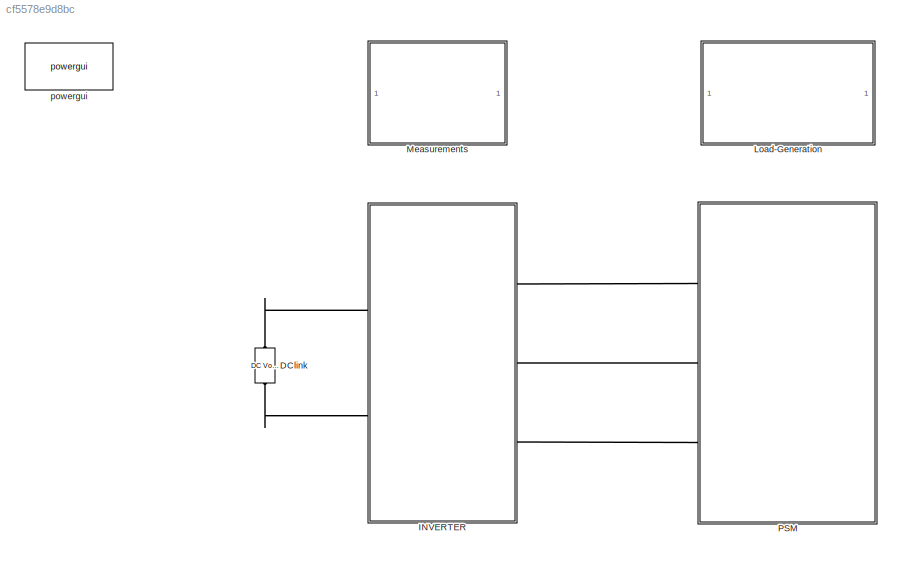
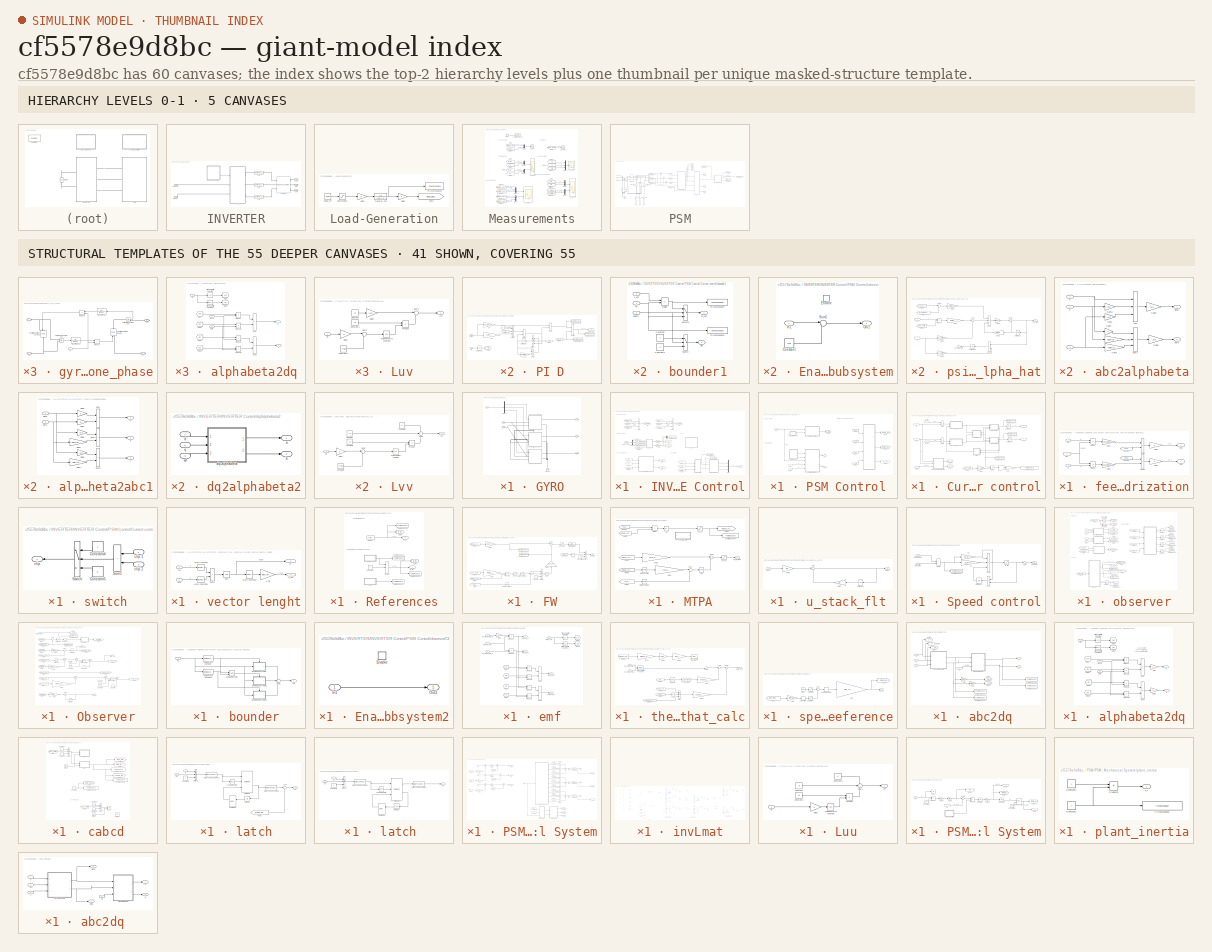
[diagram: thumbnail index - top-2 hierarchy levels (5 canvases) + 41 structural-template representatives of the remaining 55 canvases]
MODEL slx_cf5578e9d8bc
KIND model
CONFIG AbsTol = auto
CONFIG EnableMultiTasking = off
CONFIG FixedStep = auto
CONFIG MaxStep = Tc
CONFIG MinStep = auto
CONFIG RelTol = auto
CONFIG SampleTimeConstraint = Unconstrained
CONFIG Solver = ode23tb
CONFIG SolverName = ode23tb
CONFIG StartTime = 0.0
CONFIG StopTime = 10.0
BLOCK [Reference] DClink  REF=powerlib/Electrical
Sources/DC Voltage Source
  NameLocation = right
  Ports = [0, 0, 0, 0, 0, 1, 1]
  SourceBlock = powerlib/Electrical\nSources/DC Voltage Source
  SourceProductBaseCode = PS
  SourceType = DC Voltage Source
BLOCK [SubSystem] INVERTER
  Ports = [0, 0, 0, 0, 0, 2, 3]
  RequestExecContextInheritance = off
BLOCK [PMIOPort] INVERTER/DCbus+
  Port = 4
  Side = Left
BLOCK [PMIOPort] INVERTER/DCbus-
  Port = 5
  Side = Left
BLOCK [SubSystem] INVERTER/GYRO
  Ports = [1, 0, 0, 0, 0, 2, 3]
  RequestExecContextInheritance = off
BLOCK [PMIOPort] INVERTER/GYRO/A
  Side = Right
BLOCK [PMIOPort] INVERTER/GYRO/B
  Port = 2
  Side = Right
BLOCK [PMIOPort] INVERTER/GYRO/C
  Port = 3
  Side = Right
BLOCK [Demux] INVERTER/GYRO/Demux
  Outputs = 3
  Ports = [1, 3]
BLOCK [Reference] INVERTER/GYRO/Ground  REF=powerlib/Elements/Ground
  NameLocation = right
  Ports = [0, 0, 0, 0, 0, 1]
  SourceBlock = powerlib/Elements/Ground
  SourceProductBaseCode = PS
  SourceType = Ground
BLOCK [PMIOPort] INVERTER/GYRO/V+
  Port = 4
  Side = Left
BLOCK [PMIOPort] INVERTER/GYRO/V-
  Port = 5
  Side = Left
BLOCK [SubSystem] INVERTER/GYRO/gyro_one_phase
  Ports = [1, 0, 0, 0, 0, 2, 2]
  RequestExecContextInheritance = off
BLOCK [PMIOPort] INVERTER/GYRO/gyro_one_phase/A
  Side = Left
BLOCK [PMIOPort] INVERTER/GYRO/gyro_one_phase/B
  Port = 2
  Side = Left
BLOCK [Reference] INVERTER/GYRO/gyro_one_phase/Controlled Current Source2  REF=powerlib/Electrical
Sources/Controlled Current Source
  NameLocation = left
  Ports = [1, 0, 0, 0, 0, 1, 1]
  SourceBlock = powerlib/Electrical\nSources/Controlled Current Source
  SourceProductBaseCode = PS
  SourceType = Controlled Current Source
BLOCK [Reference] INVERTER/GYRO/gyro_one_phase/Controlled Voltage Source  REF=powerlib/Electrical
Sources/Controlled Voltage Source
  NameLocation = right
  Ports = [1, 0, 0, 0, 0, 1, 1]
  SourceBlock = powerlib/Electrical\nSources/Controlled Voltage Source
  SourceProductBaseCode = PS
  SourceType = Controlled Voltage Source
BLOCK [Reference] INVERTER/GYRO/gyro_one_phase/Current Measurement  REF=powerlib/Measurements/Current Measurement
  Ports = [0, 1, 0, 0, 0, 1, 1]
  SourceBlock = powerlib/Measurements/Current Measurement
  SourceProductBaseCode = PS
  SourceType = Current Measurement
  UserDataPersistent = on
BLOCK [Product] INVERTER/GYRO/gyro_one_phase/Product
  Ports = [2, 1]
BLOCK [Product] INVERTER/GYRO/gyro_one_phase/Product1
  NameLocation = top
  Ports = [2, 1]
BLOCK [TransferFcn] INVERTER/GYRO/gyro_one_phase/Transfer Fcn1
  Denominator = [1e-4 1]
BLOCK [TransferFcn] INVERTER/GYRO/gyro_one_phase/Transfer Fcn2
  Denominator = [1e-4 1]
BLOCK [Reference] INVERTER/GYRO/gyro_one_phase/Voltage Measurement  REF=powerlib/Measurements/Voltage Measurement
  Ports = [0, 1, 0, 0, 0, 2]
  SourceBlock = powerlib/Measurements/Voltage Measurement
  SourceProductBaseCode = PS
  SourceType = Voltage Measurement
  UserDataPersistent = on
BLOCK [PMIOPort] INVERTER/GYRO/gyro_one_phase/a
  Port = 3
  Side = Right
BLOCK [PMIOPort] INVERTER/GYRO/gyro_one_phase/b
  Port = 4
  Side = Right
BLOCK [Inport] INVERTER/GYRO/gyro_one_phase/m
BLOCK [SubSystem] INVERTER/GYRO/gyro_one_phase1
  Ports = [1, 0, 0, 0, 0, 2, 2]
  RequestExecContextInheritance = off
BLOCK [PMIOPort] INVERTER/GYRO/gyro_one_phase1/A
  Side = Left
BLOCK [PMIOPort] INVERTER/GYRO/gyro_one_phase1/B
  Port = 2
  Side = Left
BLOCK [Reference] INVERTER/GYRO/gyro_one_phase1/Controlled Current Source2  REF=powerlib/Electrical
Sources/Controlled Current Source
  NameLocation = left
  Ports = [1, 0, 0, 0, 0, 1, 1]
  SourceBlock = powerlib/Electrical\nSources/Controlled Current Source
  SourceProductBaseCode = PS
  SourceType = Controlled Current Source
BLOCK [Reference] INVERTER/GYRO/gyro_one_phase1/Controlled Voltage Source  REF=powerlib/Electrical
Sources/Controlled Voltage Source
  NameLocation = right
  Ports = [1, 0, 0, 0, 0, 1, 1]
  SourceBlock = powerlib/Electrical\nSources/Controlled Voltage Source
  SourceProductBaseCode = PS
  SourceType = Controlled Voltage Source
BLOCK [Reference] INVERTER/GYRO/gyro_one_phase1/Current Measurement  REF=powerlib/Measurements/Current Measurement
  Ports = [0, 1, 0, 0, 0, 1, 1]
  SourceBlock = powerlib/Measurements/Current Measurement
  SourceProductBaseCode = PS
  SourceType = Current Measurement
  UserDataPersistent = on
BLOCK [Product] INVERTER/GYRO/gyro_one_phase1/Product
  Ports = [2, 1]
BLOCK [Product] INVERTER/GYRO/gyro_one_phase1/Product1
  NameLocation = top
  Ports = [2, 1]
BLOCK [TransferFcn] INVERTER/GYRO/gyro_one_phase1/Transfer Fcn1
  Denominator = [1e-4 1]
BLOCK [TransferFcn] INVERTER/GYRO/gyro_one_phase1/Transfer Fcn2
  Denominator = [1e-4 1]
BLOCK [Reference] INVERTER/GYRO/gyro_one_phase1/Voltage Measurement  REF=powerlib/Measurements/Voltage Measurement
  Ports = [0, 1, 0, 0, 0, 2]
  SourceBlock = powerlib/Measurements/Voltage Measurement
  SourceProductBaseCode = PS
  SourceType = Voltage Measurement
  UserDataPersistent = on
BLOCK [PMIOPort] INVERTER/GYRO/gyro_one_phase1/a
  Port = 3
  Side = Right
BLOCK [PMIOPort] INVERTER/GYRO/gyro_one_phase1/b
  Port = 4
  Side = Right
BLOCK [Inport] INVERTER/GYRO/gyro_one_phase1/m
BLOCK [SubSystem] INVERTER/GYRO/gyro_one_phase2
  Ports = [1, 0, 0, 0, 0, 2, 2]
  RequestExecContextInheritance = off
BLOCK [PMIOPort] INVERTER/GYRO/gyro_one_phase2/A
  Side = Left
BLOCK [PMIOPort] INVERTER/GYRO/gyro_one_phase2/B
  Port = 2
  Side = Left
BLOCK [Reference] INVERTER/GYRO/gyro_one_phase2/Controlled Current Source2  REF=powerlib/Electrical
Sources/Controlled Current Source
  NameLocation = left
  Ports = [1, 0, 0, 0, 0, 1, 1]
  SourceBlock = powerlib/Electrical\nSources/Controlled Current Source
  SourceProductBaseCode = PS
  SourceType = Controlled Current Source
BLOCK [Reference] INVERTER/GYRO/gyro_one_phase2/Controlled Voltage Source  REF=powerlib/Electrical
Sources/Controlled Voltage Source
  NameLocation = right
  Ports = [1, 0, 0, 0, 0, 1, 1]
  SourceBlock = powerlib/Electrical\nSources/Controlled Voltage Source
  SourceProductBaseCode = PS
  SourceType = Controlled Voltage Source
BLOCK [Reference] INVERTER/GYRO/gyro_one_phase2/Current Measurement  REF=powerlib/Measurements/Current Measurement
  Ports = [0, 1, 0, 0, 0, 1, 1]
  SourceBlock = powerlib/Measurements/Current Measurement
  SourceProductBaseCode = PS
  SourceType = Current Measurement
  UserDataPersistent = on
BLOCK [Product] INVERTER/GYRO/gyro_one_phase2/Product
  Ports = [2, 1]
BLOCK [Product] INVERTER/GYRO/gyro_one_phase2/Product1
  NameLocation = top
  Ports = [2, 1]
BLOCK [TransferFcn] INVERTER/GYRO/gyro_one_phase2/Transfer Fcn1
  Denominator = [1e-4 1]
BLOCK [TransferFcn] INVERTER/GYRO/gyro_one_phase2/Transfer Fcn2
  Denominator = [1e-4 1]
BLOCK [Reference] INVERTER/GYRO/gyro_one_phase2/Voltage Measurement  REF=powerlib/Measurements/Voltage Measurement
  Ports = [0, 1, 0, 0, 0, 2]
  SourceBlock = powerlib/Measurements/Voltage Measurement
  SourceProductBaseCode = PS
  SourceType = Voltage Measurement
  UserDataPersistent = on
BLOCK [PMIOPort] INVERTER/GYRO/gyro_one_phase2/a
  Port = 3
  Side = Right
BLOCK [PMIOPort] INVERTER/GYRO/gyro_one_phase2/b
  Port = 4
  Side = Right
BLOCK [Inport] INVERTER/GYRO/gyro_one_phase2/m
BLOCK [Inport] INVERTER/GYRO/m
BLOCK [SubSystem] INVERTER/INVERTER Control
  Ports = [0, 1]
  RequestExecContextInheritance = off
BLOCK [Abs] INVERTER/INVERTER Control/Abs
  SaturateOnIntegerOverflow = off
BLOCK [Abs] INVERTER/INVERTER Control/Abs1
  SaturateOnIntegerOverflow = off
BLOCK [Demux] INVERTER/INVERTER Control/Demux1
  Outputs = 3
  Ports = [1, 3]
BLOCK [From] INVERTER/INVERTER Control/From1
  GotoTag = gamma
  TagVisibility = global
BLOCK [From] INVERTER/INVERTER Control/From10
  GotoTag = omega
  TagVisibility = global
BLOCK [From] INVERTER/INVERTER Control/From11
  GotoTag = iq
  TagVisibility = global
BLOCK [From] INVERTER/INVERTER Control/From12
  GotoTag = id
  TagVisibility = global
BLOCK [From] INVERTER/INVERTER Control/From13
  GotoTag = vd
  TagVisibility = global
BLOCK [From] INVERTER/INVERTER Control/From14
  GotoTag = vq
  TagVisibility = global
BLOCK [From] INVERTER/INVERTER Control/From2
  GotoTag = gamma_est
  TagVisibility = global
BLOCK [From] INVERTER/INVERTER Control/From3
  GotoTag = gamma_encoder
  TagVisibility = global
BLOCK [From] INVERTER/INVERTER Control/From4
  GotoTag = emf_q
  TagVisibility = global
BLOCK [From] INVERTER/INVERTER Control/From6
  GotoTag = gamma
  TagVisibility = global
BLOCK [From] INVERTER/INVERTER Control/From7
  GotoTag = omega_est
  TagVisibility = global
BLOCK [From] INVERTER/INVERTER Control/From8
  GotoTag = emf_q
  TagVisibility = global
BLOCK [From] INVERTER/INVERTER Control/From9
  GotoTag = omega_encoder
  TagVisibility = global
BLOCK [Gain] INVERTER/INVERTER Control/Gain
  Gain = 1/Ibez
BLOCK [Gain] INVERTER/INVERTER Control/Gain1
  Gain = 1/Ibez
BLOCK [Goto] INVERTER/INVERTER Control/Goto1
  GotoTag = v_beta
  TagVisibility = global
BLOCK [Goto] INVERTER/INVERTER Control/Goto2
  GotoTag = gamma
  TagVisibility = global
BLOCK [Goto] INVERTER/INVERTER Control/Goto3
  GotoTag = id
  TagVisibility = global
BLOCK [Goto] INVERTER/INVERTER Control/Goto4
  GotoTag = omega
  TagVisibility = global
BLOCK [Goto] INVERTER/INVERTER Control/Goto5
  GotoTag = iq
  TagVisibility = global
BLOCK [Goto] INVERTER/INVERTER Control/Goto6
  GotoTag = vd
  TagVisibility = global
BLOCK [Goto] INVERTER/INVERTER Control/Goto7
  GotoTag = vq
  TagVisibility = global
BLOCK [Goto] INVERTER/INVERTER Control/Goto8
  GotoTag = v_alpha
  TagVisibility = global
BLOCK [Reference] INVERTER/INVERTER Control/INVmodA_current  REF=powerlib/Measurements/Multimeter
  Ports = [0, 1]
  SourceBlock = powerlib/Measurements/Multimeter
  SourceProductBaseCode = PS
  SourceType = MultimeterPSB
BLOCK [Mux] INVERTER/INVERTER Control/Mux
  DisplayOption = bar
  Inputs = 2
  Ports = [2, 1]
BLOCK [Mux] INVERTER/INVERTER Control/Mux2
  DisplayOption = bar
  Inputs = 3
  Ports = [3, 1]
BLOCK [SubSystem] INVERTER/INVERTER Control/PSM Control
  Ports = [3, 2]
  RequestExecContextInheritance = off
BLOCK [SubSystem] INVERTER/INVERTER Control/PSM Control/Current control
  Ports = [5, 2]
  RequestExecContextInheritance = off
BLOCK [Gain] INVERTER/INVERTER Control/PSM Control/Current control/1//Ti1
  Gain = Vdc_nom
  OutDataTypeStr = Inherit: Same as input
  ParamDataTypeStr = Inherit: Same as input
  SaturateOnIntegerOverflow = on
BLOCK [Gain] INVERTER/INVERTER Control/PSM Control/Current control/1//Ti3
  Gain = sqrt(2)/3
  OutDataTypeStr = Inherit: Same as input
  ParamDataTypeStr = Inherit: Same as input
  SaturateOnIntegerOverflow = on
BLOCK [Product] INVERTER/INVERTER Control/PSM Control/Current control/Divide
  Ports = [2, 1]
BLOCK [From] INVERTER/INVERTER Control/PSM Control/Current control/From1
  GotoTag = Vdc_norm
BLOCK [Goto] INVERTER/INVERTER Control/PSM Control/Current control/Goto1
  GotoTag = vq_ff
  TagVisibility = global
BLOCK [Goto] INVERTER/INVERTER Control/PSM Control/Current control/Goto5
  GotoTag = vd_ff
  TagVisibility = global
BLOCK [Inport] INVERTER/INVERTER Control/PSM Control/Current control/Id_ref
  IconDisplay = Signal name
BLOCK [Inport] INVERTER/INVERTER Control/PSM Control/Current control/Iq_ref
  IconDisplay = Signal name
  Port = 2
BLOCK [SubSystem] INVERTER/INVERTER Control/PSM Control/Current control/PI D
  Ports = [2, 1]
  RequestExecContextInheritance = off
BLOCK [Gain] INVERTER/INVERTER Control/PSM Control/Current control/PI D/1//Ti
  Gain = kp_inv_d
  OutDataTypeStr = Inherit: Same as input
  ParamDataTypeStr = Inherit: Same as input
  SaturateOnIntegerOverflow = on
BLOCK [Constant] INVERTER/INVERTER Control/PSM Control/Current control/PI D/Constant
  Value = 0
BLOCK [From] INVERTER/INVERTER Control/PSM Control/Current control/PI D/From1
  GotoTag = clip
BLOCK [From] INVERTER/INVERTER Control/PSM Control/Current control/PI D/From2
  GotoTag = clip
  NameLocation = top
BLOCK [From] INVERTER/INVERTER Control/PSM Control/Current control/PI D/From4
  GotoTag = vd_ff
  TagVisibility = global
BLOCK [Goto] INVERTER/INVERTER Control/PSM Control/Current control/PI D/Goto5
  GotoTag = clip
BLOCK [Sum] INVERTER/INVERTER Control/PSM Control/Current control/PI D/Sum2
  IconShape = rectangular
  Inputs = +-
  Ports = [2, 1]
  SaturateOnIntegerOverflow = on
BLOCK [Sum] INVERTER/INVERTER Control/PSM Control/Current control/PI D/Sum4
  IconShape = rectangular
  Ports = [2, 1]
  SaturateOnIntegerOverflow = on
BLOCK [Sum] INVERTER/INVERTER Control/PSM Control/Current control/PI D/Sum5
  IconShape = rectangular
  Ports = [2, 1]
  SaturateOnIntegerOverflow = on
BLOCK [Sum] INVERTER/INVERTER Control/PSM Control/Current control/PI D/Sum8
  IconShape = rectangular
  Ports = [2, 1]
  SaturateOnIntegerOverflow = on
BLOCK [Switch] INVERTER/INVERTER Control/PSM Control/Current control/PI D/Switch1
  InputSameDT = off
  NameLocation = top
  SaturateOnIntegerOverflow = off
  Threshold = 0.5
BLOCK [Switch] INVERTER/INVERTER Control/PSM Control/Current control/PI D/Switch2
  InputSameDT = off
  SaturateOnIntegerOverflow = off
  Threshold = 0.5
BLOCK [ToWorkspace] INVERTER/INVERTER Control/PSM Control/Current control/PI D/To Workspace2
  MaxDataPoints = Nc
  Ports = [1]
  SampleTime = Tsamp
  VariableName = Vds_ff
BLOCK [ToWorkspace] INVERTER/INVERTER Control/PSM Control/Current control/PI D/To Workspace3
  MaxDataPoints = Nc
  Ports = [1]
  SampleTime = Tsamp
  VariableName = Vds_ctrl
BLOCK [ToWorkspace] INVERTER/INVERTER Control/PSM Control/Current control/PI D/To Workspace5
  MaxDataPoints = Nc
  Ports = [1]
  SampleTime = Tsamp
  VariableName = Vds_ctrl_out
BLOCK [UnitDelay] INVERTER/INVERTER Control/PSM Control/Current control/PI D/Unit Delay1
  HasFrameUpgradeWarning = on
  NameLocation = top
  SampleTime = Tcontrol_INV
BLOCK [UnitDelay] INVERTER/INVERTER Control/PSM Control/Current control/PI D/Unit Delay2
  HasFrameUpgradeWarning = on
  SampleTime = Tcontrol_INV
BLOCK [Outport] INVERTER/INVERTER Control/PSM Control/Current control/PI D/Vds_out
  IconDisplay = Signal name
BLOCK [Inport] INVERTER/INVERTER Control/PSM Control/Current control/PI D/clip
  Port = 2
BLOCK [Inport] INVERTER/INVERTER Control/PSM Control/Current control/PI D/id_tilde
BLOCK [Gain] INVERTER/INVERTER Control/PSM Control/Current control/PI D/kp1
  Gain = CTRPIFF_CLIP_RELEASE*Tcontrol_INV
  OutDataTypeStr = Inherit: Same as input
  ParamDataTypeStr = Inherit: Same as input
  SaturateOnIntegerOverflow = on
BLOCK [Gain] INVERTER/INVERTER Control/PSM Control/Current control/PI D/kp2
  Gain = ki_inv_d*Tcontrol_INV
  OutDataTypeStr = Inherit: Same as input
  ParamDataTypeStr = Inherit: Same as input
  SaturateOnIntegerOverflow = on
BLOCK [SubSystem] INVERTER/INVERTER Control/PSM Control/Current control/PI Q
  Ports = [2, 1]
  RequestExecContextInheritance = off
BLOCK [Gain] INVERTER/INVERTER Control/PSM Control/Current control/PI Q/1//Ti
  Gain = kp_inv_q
  OutDataTypeStr = Inherit: Same as input
  ParamDataTypeStr = Inherit: Same as input
  SaturateOnIntegerOverflow = on
BLOCK [Constant] INVERTER/INVERTER Control/PSM Control/Current control/PI Q/Constant
  Value = 0
BLOCK [From] INVERTER/INVERTER Control/PSM Control/Current control/PI Q/From1
  GotoTag = clip
BLOCK [From] INVERTER/INVERTER Control/PSM Control/Current control/PI Q/From2
  GotoTag = clip
  NameLocation = top
BLOCK [From] INVERTER/INVERTER Control/PSM Control/Current control/PI Q/From4
  GotoTag = vq_ff
  TagVisibility = global
BLOCK [Goto] INVERTER/INVERTER Control/PSM Control/Current control/PI Q/Goto5
  GotoTag = clip
BLOCK [Sum] INVERTER/INVERTER Control/PSM Control/Current control/PI Q/Sum2
  IconShape = rectangular
  Inputs = +-
  Ports = [2, 1]
  SaturateOnIntegerOverflow = on
BLOCK [Sum] INVERTER/INVERTER Control/PSM Control/Current control/PI Q/Sum4
  IconShape = rectangular
  Ports = [2, 1]
  SaturateOnIntegerOverflow = on
BLOCK [Sum] INVERTER/INVERTER Control/PSM Control/Current control/PI Q/Sum5
  IconShape = rectangular
  Ports = [2, 1]
  SaturateOnIntegerOverflow = on
BLOCK [Sum] INVERTER/INVERTER Control/PSM Control/Current control/PI Q/Sum8
  IconShape = rectangular
  Ports = [2, 1]
  SaturateOnIntegerOverflow = on
BLOCK [Switch] INVERTER/INVERTER Control/PSM Control/Current control/PI Q/Switch1
  InputSameDT = off
  NameLocation = top
  SaturateOnIntegerOverflow = off
  Threshold = 0.5
BLOCK [Switch] INVERTER/INVERTER Control/PSM Control/Current control/PI Q/Switch2
  InputSameDT = off
  SaturateOnIntegerOverflow = off
  Threshold = 0.5
BLOCK [ToWorkspace] INVERTER/INVERTER Control/PSM Control/Current control/PI Q/To Workspace2
  MaxDataPoints = Nc
  Ports = [1]
  SampleTime = Tsamp
  VariableName = Vqs_ff
BLOCK [ToWorkspace] INVERTER/INVERTER Control/PSM Control/Current control/PI Q/To Workspace3
  MaxDataPoints = Nc
  Ports = [1]
  SampleTime = Tsamp
  VariableName = Vqs_ctrl
BLOCK [ToWorkspace] INVERTER/INVERTER Control/PSM Control/Current control/PI Q/To Workspace5
  MaxDataPoints = Nc
  Ports = [1]
  SampleTime = Tsamp
  VariableName = Vqs_ctrl_out
BLOCK [UnitDelay] INVERTER/INVERTER Control/PSM Control/Current control/PI Q/Unit Delay1
  HasFrameUpgradeWarning = on
  NameLocation = top
  SampleTime = Tcontrol_INV
BLOCK [UnitDelay] INVERTER/INVERTER Control/PSM Control/Current control/PI Q/Unit Delay2
  HasFrameUpgradeWarning = on
  SampleTime = Tcontrol_INV
BLOCK [Outport] INVERTER/INVERTER Control/PSM Control/Current control/PI Q/Vqs_out
  IconDisplay = Signal name
BLOCK [Inport] INVERTER/INVERTER Control/PSM Control/Current control/PI Q/clip
  Port = 2
BLOCK [Inport] INVERTER/INVERTER Control/PSM Control/Current control/PI Q/iq_tilde
BLOCK [Gain] INVERTER/INVERTER Control/PSM Control/Current control/PI Q/kp1
  Gain = CTRPIFF_CLIP_RELEASE*Tcontrol_INV
  OutDataTypeStr = Inherit: Same as input
  ParamDataTypeStr = Inherit: Same as input
  SaturateOnIntegerOverflow = on
BLOCK [Gain] INVERTER/INVERTER Control/PSM Control/Current control/PI Q/kp2
  Gain = ki_inv_q*Tcontrol_INV
  OutDataTypeStr = Inherit: Same as input
  ParamDataTypeStr = Inherit: Same as input
  SaturateOnIntegerOverflow = on
BLOCK [Sum] INVERTER/INVERTER Control/PSM Control/Current control/Sum2
  IconShape = rectangular
  Inputs = +-
  Ports = [2, 1]
  SaturateOnIntegerOverflow = on
BLOCK [Sum] INVERTER/INVERTER Control/PSM Control/Current control/Sum5
  IconShape = rectangular
  Inputs = -+
  Ports = [2, 1]
  SaturateOnIntegerOverflow = on
BLOCK [ToWorkspace] INVERTER/INVERTER Control/PSM Control/Current control/To Workspace2
  MaxDataPoints = Nc
  Ports = [1]
  SampleTime = Tsamp
  VariableName = Vs_mod
BLOCK [ToWorkspace] INVERTER/INVERTER Control/PSM Control/Current control/To Workspace4
  MaxDataPoints = Nc
  Ports = [1]
  SampleTime = Tsamp
  VariableName = motor_voltage_ph_rms
BLOCK [ToWorkspace] INVERTER/INVERTER Control/PSM Control/Current control/To Workspace7
  MaxDataPoints = Nc
  Ports = [1]
  SampleTime = Tsamp
  VariableName = Vds_out
BLOCK [ToWorkspace] INVERTER/INVERTER Control/PSM Control/Current control/To Workspace8
  MaxDataPoints = Nc
  Ports = [1]
  SampleTime = Tsamp
  VariableName = Vqs_out
BLOCK [UnitDelay] INVERTER/INVERTER Control/PSM Control/Current control/Unit Delay2
  HasFrameUpgradeWarning = on
  NameLocation = top
  SampleTime = Tcontrol_INV
BLOCK [UnitDelay] INVERTER/INVERTER Control/PSM Control/Current control/Unit Delay3
  HasFrameUpgradeWarning = on
  NameLocation = top
  SampleTime = Tcontrol_INV
BLOCK [SubSystem] INVERTER/INVERTER Control/PSM Control/Current control/bounder1
  Ports = [3, 2]
  RequestExecContextInheritance = off
BLOCK [Constant] INVERTER/INVERTER Control/PSM Control/Current control/bounder1/Constant
BLOCK [Constant] INVERTER/INVERTER Control/PSM Control/Current control/bounder1/Constant1
  Value = 0
BLOCK [Product] INVERTER/INVERTER Control/PSM Control/Current control/bounder1/Divide
  Ports = [2, 1]
BLOCK [Switch] INVERTER/INVERTER Control/PSM Control/Current control/bounder1/Switch
  InputSameDT = off
  SaturateOnIntegerOverflow = off
  Threshold = sqrt(3)/2
BLOCK [Switch] INVERTER/INVERTER Control/PSM Control/Current control/bounder1/Switch1
  InputSameDT = off
  SaturateOnIntegerOverflow = off
  Threshold = sqrt(3)/2
BLOCK [ToWorkspace] INVERTER/INVERTER Control/PSM Control/Current control/bounder1/To Workspace1
  MaxDataPoints = Nc
  Ports = [1]
  SampleTime = Tsamp
  VariableName = Vds_not_clipped
BLOCK [ToWorkspace] INVERTER/INVERTER Control/PSM Control/Current control/bounder1/To Workspace7
  MaxDataPoints = Nc
  Ports = [1]
  SampleTime = Tsamp
  VariableName = Vds_clipped
BLOCK [Outport] INVERTER/INVERTER Control/PSM Control/Current control/bounder1/clip
  Port = 2
BLOCK [Inport] INVERTER/INVERTER Control/PSM Control/Current control/bounder1/k_sat
  Port = 2
BLOCK [Inport] INVERTER/INVERTER Control/PSM Control/Current control/bounder1/length
  Port = 3
BLOCK [Inport] INVERTER/INVERTER Control/PSM Control/Current control/bounder1/vd
BLOCK [Outport] INVERTER/INVERTER Control/PSM Control/Current control/bounder1/vd_sat
BLOCK [SubSystem] INVERTER/INVERTER Control/PSM Control/Current control/bounder2
  Ports = [3, 2]
  RequestExecContextInheritance = off
BLOCK [Constant] INVERTER/INVERTER Control/PSM Control/Current control/bounder2/Constant
BLOCK [Constant] INVERTER/INVERTER Control/PSM Control/Current control/bounder2/Constant1
  Value = 0
BLOCK [Product] INVERTER/INVERTER Control/PSM Control/Current control/bounder2/Divide
  Ports = [2, 1]
BLOCK [Switch] INVERTER/INVERTER Control/PSM Control/Current control/bounder2/Switch
  InputSameDT = off
  SaturateOnIntegerOverflow = off
  Threshold = sqrt(3)/2
BLOCK [Switch] INVERTER/INVERTER Control/PSM Control/Current control/bounder2/Switch1
  InputSameDT = off
  SaturateOnIntegerOverflow = off
  Threshold = sqrt(3)/2
BLOCK [ToWorkspace] INVERTER/INVERTER Control/PSM Control/Current control/bounder2/To Workspace1
  MaxDataPoints = Nc
  Ports = [1]
  SampleTime = Tsamp
  VariableName = Vqs_not_clipped
BLOCK [ToWorkspace] INVERTER/INVERTER Control/PSM Control/Current control/bounder2/To Workspace7
  MaxDataPoints = Nc
  Ports = [1]
  SampleTime = Tsamp
  VariableName = Vqs_clipped
BLOCK [Outport] INVERTER/INVERTER Control/PSM Control/Current control/bounder2/clip
  Port = 2
BLOCK [Inport] INVERTER/INVERTER Control/PSM Control/Current control/bounder2/k_sat
  Port = 2
BLOCK [Inport] INVERTER/INVERTER Control/PSM Control/Current control/bounder2/length
BLOCK [Inport] INVERTER/INVERTER Control/PSM Control/Current control/bounder2/vq
  Port = 3
BLOCK [Outport] INVERTER/INVERTER Control/PSM Control/Current control/bounder2/vq_sat
BLOCK [SubSystem] INVERTER/INVERTER Control/PSM Control/Current control/feedback linearization
  Ports = [3, 2]
  RequestExecContextInheritance = off
BLOCK [Product] INVERTER/INVERTER Control/PSM Control/Current control/feedback linearization/Divide1
  Ports = [2, 1]
BLOCK [Product] INVERTER/INVERTER Control/PSM Control/Current control/feedback linearization/Divide2
  Ports = [2, 1]
BLOCK [From] INVERTER/INVERTER Control/PSM Control/Current control/feedback linearization/From1
  GotoTag = emf_d
  TagVisibility = global
BLOCK [From] INVERTER/INVERTER Control/PSM Control/Current control/feedback linearization/From3
  GotoTag = emf_q
  TagVisibility = global
BLOCK [Gain] INVERTER/INVERTER Control/PSM Control/Current control/feedback linearization/Gain1
  Gain = Lq_norm
BLOCK [Gain] INVERTER/INVERTER Control/PSM Control/Current control/feedback linearization/Gain2
BLOCK [Gain] INVERTER/INVERTER Control/PSM Control/Current control/feedback linearization/Gain3
  Gain = Ld_norm
BLOCK [Gain] INVERTER/INVERTER Control/PSM Control/Current control/feedback linearization/Gain4
BLOCK [Outport] INVERTER/INVERTER Control/PSM Control/Current control/feedback linearization/Out1
  IconDisplay = Signal name
BLOCK [Outport] INVERTER/INVERTER Control/PSM Control/Current control/feedback linearization/Out2
  IconDisplay = Signal name
  Port = 2
BLOCK [Sum] INVERTER/INVERTER Control/PSM Control/Current control/feedback linearization/Sum12
  IconShape = rectangular
  Ports = [2, 1]
  SaturateOnIntegerOverflow = on
BLOCK [Sum] INVERTER/INVERTER Control/PSM Control/Current control/feedback linearization/Sum6
  IconShape = rectangular
  Inputs = -+
  Ports = [2, 1]
  SaturateOnIntegerOverflow = on
BLOCK [Inport] INVERTER/INVERTER Control/PSM Control/Current control/feedback linearization/id
  IconDisplay = Signal name
BLOCK [Inport] INVERTER/INVERTER Control/PSM Control/Current control/feedback linearization/iq
  IconDisplay = Signal name
  Port = 2
BLOCK [Inport] INVERTER/INVERTER Control/PSM Control/Current control/feedback linearization/wm
  IconDisplay = Signal name
  Port = 3
BLOCK [Inport] INVERTER/INVERTER Control/PSM Control/Current control/id
  IconDisplay = Signal name
  Port = 4
BLOCK [Inport] INVERTER/INVERTER Control/PSM Control/Current control/iq
  IconDisplay = Signal name
  Port = 5
BLOCK [Inport] INVERTER/INVERTER Control/PSM Control/Current control/omega
  IconDisplay = Signal name
  Port = 3
BLOCK [SubSystem] INVERTER/INVERTER Control/PSM Control/Current control/switch
  NameLocation = top
  Ports = [2, 1]
  RequestExecContextInheritance = off
BLOCK [Constant] INVERTER/INVERTER Control/PSM Control/Current control/switch/Constant4
  NameLocation = top
BLOCK [Constant] INVERTER/INVERTER Control/PSM Control/Current control/switch/Constant5
  NameLocation = top
  Value = 0
BLOCK [Sum] INVERTER/INVERTER Control/PSM Control/Current control/switch/Sum1
  IconShape = rectangular
  NameLocation = top
  Ports = [2, 1]
  SaturateOnIntegerOverflow = on
BLOCK [Switch] INVERTER/INVERTER Control/PSM Control/Current control/switch/Switch
  InputSameDT = off
  NameLocation = top
  SaturateOnIntegerOverflow = off
  Threshold = 0.5
BLOCK [Outport] INVERTER/INVERTER Control/PSM Control/Current control/switch/clip
BLOCK [Inport] INVERTER/INVERTER Control/PSM Control/Current control/switch/clip 1
BLOCK [Inport] INVERTER/INVERTER Control/PSM Control/Current control/switch/clip 2
  Port = 2
BLOCK [Outport] INVERTER/INVERTER Control/PSM Control/Current control/vd
  IconDisplay = Signal name
BLOCK [SubSystem] INVERTER/INVERTER Control/PSM Control/Current control/vector lenght
  Ports = [2, 2]
  RequestExecContextInheritance = off
BLOCK [Gain] INVERTER/INVERTER Control/PSM Control/Current control/vector lenght/1//Ti3
  Gain = sqrt(3)/2
  OutDataTypeStr = Inherit: Same as input
  ParamDataTypeStr = Inherit: Same as input
  SaturateOnIntegerOverflow = on
BLOCK [Math] INVERTER/INVERTER Control/PSM Control/Current control/vector lenght/Math Function
  Operator = magnitude^2
  Ports = [1, 1]
  SignedPower = on
BLOCK [Math] INVERTER/INVERTER Control/PSM Control/Current control/vector lenght/Math Function1
  Operator = magnitude^2
  Ports = [1, 1]
  SignedPower = on
BLOCK [Math] INVERTER/INVERTER Control/PSM Control/Current control/vector lenght/Math Function2
  Operator = reciprocal
  Ports = [1, 1]
  SignedPower = on
BLOCK [Sqrt] INVERTER/INVERTER Control/PSM Control/Current control/vector lenght/Sqrt
BLOCK [Sum] INVERTER/INVERTER Control/PSM Control/Current control/vector lenght/Sum5
  IconShape = rectangular
  Ports = [2, 1]
  SaturateOnIntegerOverflow = on
BLOCK [Outport] INVERTER/INVERTER Control/PSM Control/Current control/vector lenght/k_sat
  IconDisplay = Signal name
BLOCK [Outport] INVERTER/INVERTER Control/PSM Control/Current control/vector lenght/m
  IconDisplay = Signal name
  Port = 2
BLOCK [Inport] INVERTER/INVERTER Control/PSM Control/Current control/vector lenght/md
  IconDisplay = Signal name
BLOCK [Inport] INVERTER/INVERTER Control/PSM Control/Current control/vector lenght/mq
  IconDisplay = Signal name
  Port = 2
BLOCK [Outport] INVERTER/INVERTER Control/PSM Control/Current control/vq
  IconDisplay = Signal name
  Port = 2
BLOCK [From] INVERTER/INVERTER Control/PSM Control/From18
  GotoTag = i_beta
  TagVisibility = global
BLOCK [From] INVERTER/INVERTER Control/PSM Control/From20
  GotoTag = v_alpha
  TagVisibility = global
BLOCK [From] INVERTER/INVERTER Control/PSM Control/From21
  GotoTag = v_beta
  TagVisibility = global
BLOCK [From] INVERTER/INVERTER Control/PSM Control/From5
  GotoTag = i_alpha
  TagVisibility = global
BLOCK [Goto] INVERTER/INVERTER Control/PSM Control/Goto1
  GotoTag = iq_est
  TagVisibility = global
BLOCK [Goto] INVERTER/INVERTER Control/PSM Control/Goto5
  GotoTag = omega_est
  TagVisibility = global
BLOCK [Goto] INVERTER/INVERTER Control/PSM Control/Goto8
  GotoTag = T_ref
  TagVisibility = global
BLOCK [Goto] INVERTER/INVERTER Control/PSM Control/Goto9
  GotoTag = gamma_est
  TagVisibility = global
BLOCK [SubSystem] INVERTER/INVERTER Control/PSM Control/References
  NameLocation = top
  Ports = [0, 2]
  RequestExecContextInheritance = off
BLOCK [Constant] INVERTER/INVERTER Control/PSM Control/References/Constant1
  Value = 0
BLOCK [SubSystem] INVERTER/INVERTER Control/PSM Control/References/FW
  Ports = [0, 1]
  RequestExecContextInheritance = off
BLOCK [Saturate] INVERTER/INVERTER Control/PSM Control/References/FW/-0.25 < x < 0
  LinearizeAsGain = off
  LowerLimit = -0.25
  UpperLimit = 0
BLOCK [Saturate] INVERTER/INVERTER Control/PSM Control/References/FW/-2 < x < 2
  LowerLimit = -2
  UpperLimit = 2
BLOCK [Abs] INVERTER/INVERTER Control/PSM Control/References/FW/Abs1
  SaturateOnIntegerOverflow = off
BLOCK [Constant] INVERTER/INVERTER Control/PSM Control/References/FW/Constant
  Value = 0
BLOCK [Constant] INVERTER/INVERTER Control/PSM Control/References/FW/Constant1
  Value = 0
BLOCK [From] INVERTER/INVERTER Control/PSM Control/References/FW/From2
  GotoTag = lambda_norm
  TagVisibility = global
BLOCK [From] INVERTER/INVERTER Control/PSM Control/References/FW/From3
  GotoTag = Vdc_norm
BLOCK [From] INVERTER/INVERTER Control/PSM Control/References/FW/From4
  GotoTag = omega_est
  TagVisibility = global
BLOCK [From] INVERTER/INVERTER Control/PSM Control/References/FW/From5
  GotoTag = emf_q
  TagVisibility = global
BLOCK [From] INVERTER/INVERTER Control/PSM Control/References/FW/From6
  GotoTag = iq_ref
  TagVisibility = global
BLOCK [Gain] INVERTER/INVERTER Control/PSM Control/References/FW/Gain1
  Gain = motorc_m_scale
BLOCK [Gain] INVERTER/INVERTER Control/PSM Control/References/FW/Gain2
  Gain = -1/Ld_norm
BLOCK [Gain] INVERTER/INVERTER Control/PSM Control/References/FW/Gain3
  Gain = 1/Ld_norm
  NameLocation = right
BLOCK [Outport] INVERTER/INVERTER Control/PSM Control/References/FW/Id_ref_fw
BLOCK [Math] INVERTER/INVERTER Control/PSM Control/References/FW/Math Function1
  Operator = magnitude^2
  Ports = [1, 1]
  SignedPower = on
BLOCK [Math] INVERTER/INVERTER Control/PSM Control/References/FW/Math Function2
  Operator = magnitude^2
  Ports = [1, 1]
  SignedPower = on
BLOCK [Product] INVERTER/INVERTER Control/PSM Control/References/FW/Product1
  Inputs = */
  Ports = [2, 1]
  RndMeth = Zero
BLOCK [Sqrt] INVERTER/INVERTER Control/PSM Control/References/FW/Sqrt
BLOCK [Sum] INVERTER/INVERTER Control/PSM Control/References/FW/Sum
  Inputs = |+-
  Ports = [2, 1]
BLOCK [Sum] INVERTER/INVERTER Control/PSM Control/References/FW/Sum1
  Inputs = |++
  Ports = [2, 1]
BLOCK [Switch] INVERTER/INVERTER Control/PSM Control/References/FW/Switch
  InputSameDT = off
  SaturateOnIntegerOverflow = off
  Threshold = eps
BLOCK [Switch] INVERTER/INVERTER Control/PSM Control/References/FW/Switch1
  InputSameDT = off
  SaturateOnIntegerOverflow = off
  Threshold = emf_valid
BLOCK [ToWorkspace] INVERTER/INVERTER Control/PSM Control/References/FW/To Workspace1
  MaxDataPoints = Nc
  NameLocation = top
  Ports = [1]
  SampleTime = Tsamp
  VariableName = deflux_term_2
BLOCK [ToWorkspace] INVERTER/INVERTER Control/PSM Control/References/FW/To Workspace2
  MaxDataPoints = Nc
  Ports = [1]
  SampleTime = Tsamp
  VariableName = deflux_term_1
BLOCK [TransferFcn] INVERTER/INVERTER Control/PSM Control/References/FW/Transfer Fcn
  Denominator = [1e-2 1]
BLOCK [From] INVERTER/INVERTER Control/PSM Control/References/From13
  GotoTag = T_ref
  TagVisibility = global
BLOCK [Goto] INVERTER/INVERTER Control/PSM Control/References/Goto1
  GotoTag = id_ref
  TagVisibility = global
BLOCK [Goto] INVERTER/INVERTER Control/PSM Control/References/Goto8
  GotoTag = iq_ref
  TagVisibility = global
BLOCK [Outport] INVERTER/INVERTER Control/PSM Control/References/Id_ref
  IconDisplay = Signal name
BLOCK [Outport] INVERTER/INVERTER Control/PSM Control/References/Iq_ref
  IconDisplay = Signal name
  Port = 2
BLOCK [SubSystem] INVERTER/INVERTER Control/PSM Control/References/MTPA
  Ports = [0, 1]
  RequestExecContextInheritance = off
BLOCK [Saturate] INVERTER/INVERTER Control/PSM Control/References/MTPA/-1 < x < 0
  LowerLimit = -1
  UpperLimit = 0
BLOCK [Saturate] INVERTER/INVERTER Control/PSM Control/References/MTPA/0 < x < 2
  LowerLimit = 0
  UpperLimit = 2
BLOCK [Abs] INVERTER/INVERTER Control/PSM Control/References/MTPA/Abs
  SaturateOnIntegerOverflow = off
BLOCK [Product] INVERTER/INVERTER Control/PSM Control/References/MTPA/Divide
  Inputs = */
  Ports = [2, 1]
BLOCK [From] INVERTER/INVERTER Control/PSM Control/References/MTPA/From1
  GotoTag = omega_est
  TagVisibility = global
BLOCK [From] INVERTER/INVERTER Control/PSM Control/References/MTPA/From2
  GotoTag = lambda_norm
  TagVisibility = global
BLOCK [From] INVERTER/INVERTER Control/PSM Control/References/MTPA/From21
  GotoTag = emf_q
  TagVisibility = global
BLOCK [From] INVERTER/INVERTER Control/PSM Control/References/MTPA/From3
  GotoTag = lambda_norm
  TagVisibility = global
BLOCK [From] INVERTER/INVERTER Control/PSM Control/References/MTPA/From4
  GotoTag = iq_ref
  TagVisibility = global
BLOCK [Gain] INVERTER/INVERTER Control/PSM Control/References/MTPA/Gain1
  Gain = (1/(Lq_norm - Ld_norm)/2)^2
BLOCK [Gain] INVERTER/INVERTER Control/PSM Control/References/MTPA/Gain2
  Gain = 1/(Lq_norm - Ld_norm)/2
BLOCK [Goto] INVERTER/INVERTER Control/PSM Control/References/MTPA/Goto1
  GotoTag = lambda_norm
  TagVisibility = global
BLOCK [Outport] INVERTER/INVERTER Control/PSM Control/References/MTPA/Id_ref_mtpa
BLOCK [Math] INVERTER/INVERTER Control/PSM Control/References/MTPA/Math Function
  Operator = magnitude^2
  Ports = [1, 1]
  SignedPower = on
BLOCK [Math] INVERTER/INVERTER Control/PSM Control/References/MTPA/Math Function1
  Operator = magnitude^2
  Ports = [1, 1]
  SignedPower = on
BLOCK [Sqrt] INVERTER/INVERTER Control/PSM Control/References/MTPA/Sqrt
BLOCK [Sum] INVERTER/INVERTER Control/PSM Control/References/MTPA/Sum
  Inputs = |++
  Ports = [2, 1]
BLOCK [Sum] INVERTER/INVERTER Control/PSM Control/References/MTPA/Sum1
  Inputs = |+-
  Ports = [2, 1]
BLOCK [ToWorkspace] INVERTER/INVERTER Control/PSM Control/References/MTPA/To Workspace4
  MaxDataPoints = Nc
  Ports = [1]
  SampleTime = Tsamp
  VariableName = lambda_norm_calc
BLOCK [SubSystem] INVERTER/INVERTER Control/PSM Control/References/MTPA/u_stack_flt
  Ports = [1, 1]
  RequestExecContextInheritance = off
BLOCK [Gain] INVERTER/INVERTER Control/PSM Control/References/MTPA/u_stack_flt/Gain3
  Gain = g1
  NameLocation = top
BLOCK [Gain] INVERTER/INVERTER Control/PSM Control/References/MTPA/u_stack_flt/Gain6
  Gain = g0
BLOCK [Sum] INVERTER/INVERTER Control/PSM Control/References/MTPA/u_stack_flt/Sum
  Inputs = |++
  Ports = [2, 1]
BLOCK [UnitDelay] INVERTER/INVERTER Control/PSM Control/References/MTPA/u_stack_flt/Unit Delay1
  HasFrameUpgradeWarning = on
  NameLocation = top
  SampleTime = Tcontrol_INV
BLOCK [Inport] INVERTER/INVERTER Control/PSM Control/References/MTPA/u_stack_flt/input
BLOCK [Outport] INVERTER/INVERTER Control/PSM Control/References/MTPA/u_stack_flt/output
BLOCK [MinMax] INVERTER/INVERTER Control/PSM Control/References/MinMax
  Inputs = 3
  Ports = [3, 1]
BLOCK [ToWorkspace] INVERTER/INVERTER Control/PSM Control/References/To Workspace1
  MaxDataPoints = Nc
  Ports = [1]
  SampleTime = Tsamp
  VariableName = id_ref
BLOCK [ToWorkspace] INVERTER/INVERTER Control/PSM Control/References/To Workspace2
  MaxDataPoints = Nc
  Ports = [1]
  SampleTime = Tsamp
  VariableName = id_ref_fw
BLOCK [ToWorkspace] INVERTER/INVERTER Control/PSM Control/References/To Workspace3
  MaxDataPoints = Nc
  Ports = [1]
  SampleTime = Tsamp
  VariableName = id_ref_mtpa
BLOCK [ToWorkspace] INVERTER/INVERTER Control/PSM Control/References/To Workspace7
  MaxDataPoints = Nc
  Ports = [1]
  SampleTime = Tsamp
  VariableName = iq_ref
BLOCK [SubSystem] INVERTER/INVERTER Control/PSM Control/Speed control
  Ports = [2, 1]
  RequestExecContextInheritance = off
BLOCK [Gain] INVERTER/INVERTER Control/PSM Control/Speed control/1//Ti
  Gain = kp_w
  OutDataTypeStr = Inherit: Same as input
  ParamDataTypeStr = Inherit: Same as input
  SaturateOnIntegerOverflow = on
BLOCK [Inport] INVERTER/INVERTER Control/PSM Control/Speed control/Rotor speed
BLOCK [Inport] INVERTER/INVERTER Control/PSM Control/Speed control/Speed ref
  Port = 2
BLOCK [Sum] INVERTER/INVERTER Control/PSM Control/Speed control/Sum
  Inputs = |++
  Ports = [2, 1]
BLOCK [Sum] INVERTER/INVERTER Control/PSM Control/Speed control/Sum1
  IconShape = rectangular
  Inputs = +++
  Ports = [3, 1]
  SaturateOnIntegerOverflow = on
BLOCK [Sum] INVERTER/INVERTER Control/PSM Control/Speed control/Sum2
  IconShape = rectangular
  Inputs = -+
  Ports = [2, 1]
  SaturateOnIntegerOverflow = on
BLOCK [Sum] INVERTER/INVERTER Control/PSM Control/Speed control/Sum3
  IconShape = rectangular
  Inputs = -+
  NameLocation = top
  Ports = [2, 1]
  SaturateOnIntegerOverflow = on
BLOCK [ToWorkspace] INVERTER/INVERTER Control/PSM Control/Speed control/To Workspace7
  MaxDataPoints = Nc
  Ports = [1]
  SampleTime = Tsamp
  VariableName = w_tilde
BLOCK [Outport] INVERTER/INVERTER Control/PSM Control/Speed control/Torque ref
BLOCK [UnitDelay] INVERTER/INVERTER Control/PSM Control/Speed control/Unit Delay4
  HasFrameUpgradeWarning = on
  SampleTime = Tcontrol_INV
BLOCK [Saturate] INVERTER/INVERTER Control/PSM Control/Speed control/iq_lim
  LowerLimit = -iq_lim
  UpperLimit = iq_lim
BLOCK [Gain] INVERTER/INVERTER Control/PSM Control/Speed control/kp
  Gain = ki_w*Tcontrol_INV
  OutDataTypeStr = Inherit: Same as input
  ParamDataTypeStr = Inherit: Same as input
  SaturateOnIntegerOverflow = on
BLOCK [Outport] INVERTER/INVERTER Control/PSM Control/Vds
  IconDisplay = Signal name
BLOCK [Outport] INVERTER/INVERTER Control/PSM Control/Vqs
  IconDisplay = Signal name
  Port = 2
BLOCK [Inport] INVERTER/INVERTER Control/PSM Control/id
  IconDisplay = Signal name
BLOCK [Inport] INVERTER/INVERTER Control/PSM Control/iq
  IconDisplay = Signal name
  Port = 2
BLOCK [Inport] INVERTER/INVERTER Control/PSM Control/iq1
  IconDisplay = Signal name
  Port = 3
BLOCK [SubSystem] INVERTER/INVERTER Control/PSM Control/observer
  Ports = [4, 3]
  RequestExecContextInheritance = off
BLOCK [From] INVERTER/INVERTER Control/PSM Control/observer/From1
  CloseFcn = tagdialog Close
  GotoTag = gamma_hat
BLOCK [From] INVERTER/INVERTER Control/PSM Control/observer/From2
  CloseFcn = tagdialog Close
  GotoTag = psi_magnetic_b
  TagVisibility = global
BLOCK [From] INVERTER/INVERTER Control/PSM Control/observer/From3
  CloseFcn = tagdialog Close
  GotoTag = psi_magnetic_b
  TagVisibility = global
BLOCK [From] INVERTER/INVERTER Control/PSM Control/observer/From4
  CloseFcn = tagdialog Close
  GotoTag = psi_magnetic_a
  TagVisibility = global
BLOCK [From] INVERTER/INVERTER Control/PSM Control/observer/From5
  CloseFcn = tagdialog Close
  GotoTag = psi_magnetic_a
  TagVisibility = global
BLOCK [From] INVERTER/INVERTER Control/PSM Control/observer/From6
  CloseFcn = tagdialog Close
  GotoTag = gamma_hat
BLOCK [From] INVERTER/INVERTER Control/PSM Control/observer/From7
  CloseFcn = tagdialog Close
  GotoTag = omega_hat
BLOCK [From] INVERTER/INVERTER Control/PSM Control/observer/From8
  CloseFcn = tagdialog Close
  GotoTag = theta_emf_hat
  TagVisibility = global
BLOCK [Goto] INVERTER/INVERTER Control/PSM Control/observer/Goto1
  GotoTag = psi_m_a
  TagVisibility = global
BLOCK [Goto] INVERTER/INVERTER Control/PSM Control/observer/Goto11
  GotoTag = emf_q
  TagVisibility = global
BLOCK [Goto] INVERTER/INVERTER Control/PSM Control/observer/Goto12
  GotoTag = emf_d
  TagVisibility = global
BLOCK [Goto] INVERTER/INVERTER Control/PSM Control/observer/Goto13
  GotoTag = emf_a
  TagVisibility = global
BLOCK [Goto] INVERTER/INVERTER Control/PSM Control/observer/Goto14
  GotoTag = emf_b
  TagVisibility = global
BLOCK [Goto] INVERTER/INVERTER Control/PSM Control/observer/Goto2
  GotoTag = theta_emf_hat
  TagVisibility = global
BLOCK [Goto] INVERTER/INVERTER Control/PSM Control/observer/Goto3
  GotoTag = psi_m_b
  TagVisibility = global
BLOCK [Goto] INVERTER/INVERTER Control/PSM Control/observer/Goto4
  GotoTag = psi_magnetic_a
  TagVisibility = global
BLOCK [Goto] INVERTER/INVERTER Control/PSM Control/observer/Goto5
  GotoTag = gamma_hat
BLOCK [Goto] INVERTER/INVERTER Control/PSM Control/observer/Goto6
  GotoTag = psi_magnetic_b
  TagVisibility = global
BLOCK [Goto] INVERTER/INVERTER Control/PSM Control/observer/Goto7
  GotoTag = psi_stator_a
  TagVisibility = global
BLOCK [Goto] INVERTER/INVERTER Control/PSM Control/observer/Goto8
  GotoTag = psi_stator_b
  TagVisibility = global
BLOCK [Goto] INVERTER/INVERTER Control/PSM Control/observer/Goto9
  GotoTag = omega_hat
BLOCK [SubSystem] INVERTER/INVERTER Control/PSM Control/observer/Observer
  Ports = [1, 3]
  RequestExecContextInheritance = off
BLOCK [Constant] INVERTER/INVERTER Control/PSM Control/observer/Observer/Constant
  Value = 3*pi
BLOCK [Constant] INVERTER/INVERTER Control/PSM Control/observer/Observer/Constant1
  Value = 2*pi
BLOCK [Constant] INVERTER/INVERTER Control/PSM Control/observer/Observer/Constant2
  Value = pi
BLOCK [Constant] INVERTER/INVERTER Control/PSM Control/observer/Observer/Constant3
  Value = 3*pi
BLOCK [Constant] INVERTER/INVERTER Control/PSM Control/observer/Observer/Constant4
  Value = 2*pi
BLOCK [Constant] INVERTER/INVERTER Control/PSM Control/observer/Observer/Constant5
  Value = pi
BLOCK [DeadZone] INVERTER/INVERTER Control/PSM Control/observer/Observer/Dead Zone
  LowerValue = -0.000001
  UpperValue = 0.000001
BLOCK [From] INVERTER/INVERTER Control/PSM Control/observer/Observer/From10
  CloseFcn = tagdialog Close
  GotoTag = gamma_elec
BLOCK [From] INVERTER/INVERTER Control/PSM Control/observer/Observer/From11
  CloseFcn = tagdialog Close
  GotoTag = spdobs_omega
BLOCK [From] INVERTER/INVERTER Control/PSM Control/observer/Observer/From13
  CloseFcn = tagdialog Close
  GotoTag = gamma_elec_s
BLOCK [From] INVERTER/INVERTER Control/PSM Control/observer/Observer/From2
  CloseFcn = tagdialog Close
  GotoTag = gamma
BLOCK [From] INVERTER/INVERTER Control/PSM Control/observer/Observer/From3
  CloseFcn = tagdialog Close
  GotoTag = spdobs_omega_s
BLOCK [From] INVERTER/INVERTER Control/PSM Control/observer/Observer/From4
  CloseFcn = tagdialog Close
  GotoTag = dgamma
BLOCK [From] INVERTER/INVERTER Control/PSM Control/observer/Observer/From5
  CloseFcn = tagdialog Close
  GotoTag = gamma_elec_s
BLOCK [From] INVERTER/INVERTER Control/PSM Control/observer/Observer/From6
  CloseFcn = tagdialog Close
  GotoTag = dgamma
BLOCK [From] INVERTER/INVERTER Control/PSM Control/observer/Observer/From7
  CloseFcn = tagdialog Close
  GotoTag = dgamma
BLOCK [From] INVERTER/INVERTER Control/PSM Control/observer/Observer/From8
  CloseFcn = tagdialog Close
  GotoTag = spdobs_omega
BLOCK [Gain] INVERTER/INVERTER Control/PSM Control/observer/Observer/Gain
  Gain = kalman_w
BLOCK [Gain] INVERTER/INVERTER Control/PSM Control/observer/Observer/Gain1
  Gain = kalman_gamma
BLOCK [Gain] INVERTER/INVERTER Control/PSM Control/observer/Observer/Gain2
  Gain = kalman_iq_est
BLOCK [Gain] INVERTER/INVERTER Control/PSM Control/observer/Observer/Gain5
  Gain = Omega_bez_plant*Tcontrol_INV
BLOCK [Goto] INVERTER/INVERTER Control/PSM Control/observer/Observer/Goto1
  GotoTag = gamma
BLOCK [Goto] INVERTER/INVERTER Control/PSM Control/observer/Observer/Goto2
  GotoTag = spdobs_omega_s
BLOCK [Goto] INVERTER/INVERTER Control/PSM Control/observer/Observer/Goto3
  GotoTag = dgamma
BLOCK [Goto] INVERTER/INVERTER Control/PSM Control/observer/Observer/Goto4
  GotoTag = gamma_elec
BLOCK [Goto] INVERTER/INVERTER Control/PSM Control/observer/Observer/Goto5
  GotoTag = gamma_elec_s
BLOCK [Goto] INVERTER/INVERTER Control/PSM Control/observer/Observer/Goto6
  GotoTag = spdobs_omega
BLOCK [Math] INVERTER/INVERTER Control/PSM Control/observer/Observer/Math Function
  Operator = mod
  Ports = [2, 1]
  SignedPower = on
BLOCK [Math] INVERTER/INVERTER Control/PSM Control/observer/Observer/Math Function1
  Operator = mod
  Ports = [2, 1]
  SignedPower = on
BLOCK [Sum] INVERTER/INVERTER Control/PSM Control/observer/Observer/Sum
  Inputs = |+-
  Ports = [2, 1]
BLOCK [Sum] INVERTER/INVERTER Control/PSM Control/observer/Observer/Sum1
  Inputs = |++
  Ports = [2, 1]
BLOCK [Sum] INVERTER/INVERTER Control/PSM Control/observer/Observer/Sum11
  Inputs = |++
  Ports = [2, 1]
BLOCK [Sum] INVERTER/INVERTER Control/PSM Control/observer/Observer/Sum12
  Inputs = |+-
  Ports = [2, 1]
BLOCK [Sum] INVERTER/INVERTER Control/PSM Control/observer/Observer/Sum2
  Inputs = |++
  Ports = [2, 1]
BLOCK [Sum] INVERTER/INVERTER Control/PSM Control/observer/Observer/Sum3
  Inputs = |++
  Ports = [2, 1]
BLOCK [Sum] INVERTER/INVERTER Control/PSM Control/observer/Observer/Sum4
  Inputs = |+-
  Ports = [2, 1]
BLOCK [Sum] INVERTER/INVERTER Control/PSM Control/observer/Observer/Sum5
  Inputs = |++
  Ports = [2, 1]
BLOCK [Sum] INVERTER/INVERTER Control/PSM Control/observer/Observer/Sum8
  Inputs = |++
  Ports = [2, 1]
BLOCK [ToWorkspace] INVERTER/INVERTER Control/PSM Control/observer/Observer/To Workspace1
  MaxDataPoints = Nc
  Ports = [1]
  SampleTime = Tsamp
  VariableName = gamma_elec_s
BLOCK [ToWorkspace] INVERTER/INVERTER Control/PSM Control/observer/Observer/To Workspace3
  MaxDataPoints = Nc
  Ports = [1]
  SampleTime = Tsamp
  VariableName = theta_emf
BLOCK [UnitDelay] INVERTER/INVERTER Control/PSM Control/observer/Observer/Unit Delay1
  HasFrameUpgradeWarning = on
  NameLocation = top
  SampleTime = Tcontrol_INV
BLOCK [UnitDelay] INVERTER/INVERTER Control/PSM Control/observer/Observer/Unit Delay2
  HasFrameUpgradeWarning = on
  InitialCondition = eps
  NameLocation = top
  SampleTime = Tcontrol_INV
BLOCK [UnitDelay] INVERTER/INVERTER Control/PSM Control/observer/Observer/Unit Delay3
  HasFrameUpgradeWarning = on
  InitialCondition = eps
  NameLocation = top
  SampleTime = Tcontrol_INV
BLOCK [UnitDelay] INVERTER/INVERTER Control/PSM Control/observer/Observer/Unit Delay4
  HasFrameUpgradeWarning = on
  NameLocation = top
  SampleTime = Tcontrol_INV
BLOCK [SubSystem] INVERTER/INVERTER Control/PSM Control/observer/Observer/bounder
  Ports = [1, 1]
  RequestExecContextInheritance = off
BLOCK [Reference] INVERTER/INVERTER Control/PSM Control/observer/Observer/bounder/Compare To Constant  REF=simulink/Logic and Bit
Operations/Compare
To Constant
  Ports = [1, 1]
  SourceBlock = simulink/Logic and Bit\nOperations/Compare\nTo Constant
  SourceProductBaseCode = SL
  SourceType = Compare To Constant
BLOCK [Reference] INVERTER/INVERTER Control/PSM Control/observer/Observer/bounder/Compare To Constant1  REF=simulink/Logic and Bit
Operations/Compare
To Constant
  Ports = [1, 1]
  SourceBlock = simulink/Logic and Bit\nOperations/Compare\nTo Constant
  SourceProductBaseCode = SL
  SourceType = Compare To Constant
BLOCK [SubSystem] INVERTER/INVERTER Control/PSM Control/observer/Observer/bounder/Enabled Subsystem
  Ports = [1, 1, 1]
  RequestExecContextInheritance = off
  TreatAsAtomicUnit = on
BLOCK [Constant] INVERTER/INVERTER Control/PSM Control/observer/Observer/bounder/Enabled Subsystem/Constant
  Value = 2*pi
BLOCK [EnablePort] INVERTER/INVERTER Control/PSM Control/observer/Observer/bounder/Enabled Subsystem/Enable
  Ports = []
BLOCK [Inport] INVERTER/INVERTER Control/PSM Control/observer/Observer/bounder/Enabled Subsystem/In1
BLOCK [Outport] INVERTER/INVERTER Control/PSM Control/observer/Observer/bounder/Enabled Subsystem/Out1
BLOCK [Sum] INVERTER/INVERTER Control/PSM Control/observer/Observer/bounder/Enabled Subsystem/Sum1
  Inputs = |+-
  Ports = [2, 1]
BLOCK [SubSystem] INVERTER/INVERTER Control/PSM Control/observer/Observer/bounder/Enabled Subsystem1
  Ports = [1, 1, 1]
  RequestExecContextInheritance = off
  TreatAsAtomicUnit = on
BLOCK [Constant] INVERTER/INVERTER Control/PSM Control/observer/Observer/bounder/Enabled Subsystem1/Constant
  Value = 2*pi
BLOCK [EnablePort] INVERTER/INVERTER Control/PSM Control/observer/Observer/bounder/Enabled Subsystem1/Enable
  Ports = []
BLOCK [Inport] INVERTER/INVERTER Control/PSM Control/observer/Observer/bounder/Enabled Subsystem1/In1
BLOCK [Outport] INVERTER/INVERTER Control/PSM Control/observer/Observer/bounder/Enabled Subsystem1/Out1
BLOCK [Sum] INVERTER/INVERTER Control/PSM Control/observer/Observer/bounder/Enabled Subsystem1/Sum1
  Inputs = |++
  Ports = [2, 1]
BLOCK [SubSystem] INVERTER/INVERTER Control/PSM Control/observer/Observer/bounder/Enabled Subsystem2
  Ports = [1, 1, 1]
  RequestExecContextInheritance = off
  TreatAsAtomicUnit = on
BLOCK [EnablePort] INVERTER/INVERTER Control/PSM Control/observer/Observer/bounder/Enabled Subsystem2/Enable
  Ports = []
BLOCK [Inport] INVERTER/INVERTER Control/PSM Control/observer/Observer/bounder/Enabled Subsystem2/In1
BLOCK [Outport] INVERTER/INVERTER Control/PSM Control/observer/Observer/bounder/Enabled Subsystem2/Out1
BLOCK [Inport] INVERTER/INVERTER Control/PSM Control/observer/Observer/bounder/In1
BLOCK [Logic] INVERTER/INVERTER Control/PSM Control/observer/Observer/bounder/Logical Operator
  AllPortsSameDT = off
  Operator = NOR
  OutDataTypeStr = boolean
  Ports = [2, 1]
BLOCK [Outport] INVERTER/INVERTER Control/PSM Control/observer/Observer/bounder/Out1
BLOCK [Sum] INVERTER/INVERTER Control/PSM Control/observer/Observer/bounder/Sum1
  Inputs = +++
  Ports = [3, 1]
BLOCK [Outport] INVERTER/INVERTER Control/PSM Control/observer/Observer/iq_hat
  Port = 3
BLOCK [Outport] INVERTER/INVERTER Control/PSM Control/observer/Observer/omega_hat
BLOCK [Inport] INVERTER/INVERTER Control/PSM Control/observer/Observer/theta_emf_hat
BLOCK [Outport] INVERTER/INVERTER Control/PSM Control/observer/Observer/theta_hat
  Port = 2
BLOCK [ToWorkspace] INVERTER/INVERTER Control/PSM Control/observer/To Workspace1
  MaxDataPoints = Nc
  Ports = [1]
  SampleTime = Tsamp
  VariableName = emf_q
BLOCK [ToWorkspace] INVERTER/INVERTER Control/PSM Control/observer/To Workspace10
  MaxDataPoints = Nc
  Ports = [1]
  SampleTime = Tsamp
  VariableName = emf_d
BLOCK [ToWorkspace] INVERTER/INVERTER Control/PSM Control/observer/To Workspace2
  MaxDataPoints = Nc
  Ports = [1]
  SampleTime = Tsamp
  VariableName = omega_est
BLOCK [ToWorkspace] INVERTER/INVERTER Control/PSM Control/observer/To Workspace3
  MaxDataPoints = Nc
  Ports = [1]
  SampleTime = Tsamp
  VariableName = gamma_est
BLOCK [ToWorkspace] INVERTER/INVERTER Control/PSM Control/observer/To Workspace4
  MaxDataPoints = Nc
  Ports = [1]
  SampleTime = Tsamp
  VariableName = emf_a
BLOCK [ToWorkspace] INVERTER/INVERTER Control/PSM Control/observer/To Workspace5
  MaxDataPoints = Nc
  Ports = [1]
  SampleTime = Tsamp
  VariableName = emf_b
BLOCK [ToWorkspace] INVERTER/INVERTER Control/PSM Control/observer/To Workspace8
  MaxDataPoints = Nc
  Ports = [1]
  SampleTime = Tsamp
  VariableName = iq_est
BLOCK [Trigonometry] INVERTER/INVERTER Control/PSM Control/observer/Trigonometric Function
  Operator = cos
  Ports = [1, 1]
BLOCK [Trigonometry] INVERTER/INVERTER Control/PSM Control/observer/Trigonometric Function1
  Ports = [1, 1]
BLOCK [UnitDelay] INVERTER/INVERTER Control/PSM Control/observer/Unit Delay2
  HasFrameUpgradeWarning = on
  NameLocation = top
  SampleTime = Tcontrol_INV
BLOCK [UnitDelay] INVERTER/INVERTER Control/PSM Control/observer/Unit Delay4
  HasFrameUpgradeWarning = on
  NameLocation = top
  SampleTime = Tcontrol_INV
BLOCK [UnitDelay] INVERTER/INVERTER Control/PSM Control/observer/Unit Delay5
  HasFrameUpgradeWarning = on
  NameLocation = top
  SampleTime = Tcontrol_INV
BLOCK [UnitDelay] INVERTER/INVERTER Control/PSM Control/observer/Unit Delay6
  HasFrameUpgradeWarning = on
  NameLocation = top
  SampleTime = Tcontrol_INV
BLOCK [UnitDelay] INVERTER/INVERTER Control/PSM Control/observer/Unit Delay7
  HasFrameUpgradeWarning = on
  NameLocation = top
  SampleTime = Tcontrol_INV
BLOCK [SubSystem] INVERTER/INVERTER Control/PSM Control/observer/emf
  Ports = [4, 4]
  RequestExecContextInheritance = off
BLOCK [From] INVERTER/INVERTER Control/PSM Control/observer/emf/From
  CloseFcn = tagdialog Close
  GotoTag = cos
BLOCK [From] INVERTER/INVERTER Control/PSM Control/observer/emf/From1
  CloseFcn = tagdialog Close
  GotoTag = sin
BLOCK [From] INVERTER/INVERTER Control/PSM Control/observer/emf/From2
  CloseFcn = tagdialog Close
  GotoTag = sin
BLOCK [From] INVERTER/INVERTER Control/PSM Control/observer/emf/From3
  CloseFcn = tagdialog Close
  GotoTag = cos
BLOCK [Gain] INVERTER/INVERTER Control/PSM Control/observer/emf/Gain
  Gain = -1
BLOCK [Goto] INVERTER/INVERTER Control/PSM Control/observer/emf/Goto2
  GotoTag = cos
BLOCK [Goto] INVERTER/INVERTER Control/PSM Control/observer/emf/Goto3
  GotoTag = sin
BLOCK [Product] INVERTER/INVERTER Control/PSM Control/observer/emf/Product
  Ports = [2, 1]
  RndMeth = Zero
BLOCK [Product] INVERTER/INVERTER Control/PSM Control/observer/emf/Product1
  Ports = [2, 1]
  RndMeth = Zero
BLOCK [Product] INVERTER/INVERTER Control/PSM Control/observer/emf/Product2
  Ports = [2, 1]
  RndMeth = Zero
BLOCK [Product] INVERTER/INVERTER Control/PSM Control/observer/emf/Product3
  Ports = [2, 1]
  RndMeth = Zero
BLOCK [Product] INVERTER/INVERTER Control/PSM Control/observer/emf/Product4
  Ports = [2, 1]
  RndMeth = Zero
BLOCK [Product] INVERTER/INVERTER Control/PSM Control/observer/emf/Product5
  Ports = [2, 1]
  RndMeth = Zero
BLOCK [Sum] INVERTER/INVERTER Control/PSM Control/observer/emf/Sum
  IconShape = rectangular
  Ports = [2, 1]
BLOCK [Sum] INVERTER/INVERTER Control/PSM Control/observer/emf/Sum1
  IconShape = rectangular
  Inputs = -+
  Ports = [2, 1]
BLOCK [Trigonometry] INVERTER/INVERTER Control/PSM Control/observer/emf/Trigonometric Function
  Operator = cos
  Ports = [1, 1]
BLOCK [Trigonometry] INVERTER/INVERTER Control/PSM Control/observer/emf/Trigonometric Function1
  Ports = [1, 1]
BLOCK [Outport] INVERTER/INVERTER Control/PSM Control/observer/emf/emf_hat_a
BLOCK [Outport] INVERTER/INVERTER Control/PSM Control/observer/emf/emf_hat_b
  Port = 2
BLOCK [Outport] INVERTER/INVERTER Control/PSM Control/observer/emf/emf_hat_d
  Port = 3
BLOCK [Outport] INVERTER/INVERTER Control/PSM Control/observer/emf/emf_hat_q
  Port = 4
BLOCK [Inport] INVERTER/INVERTER Control/PSM Control/observer/emf/omega_hat
  Port = 3
BLOCK [Inport] INVERTER/INVERTER Control/PSM Control/observer/emf/psi_magnetic_a
BLOCK [Inport] INVERTER/INVERTER Control/PSM Control/observer/emf/psi_magnetic_b
  Port = 2
BLOCK [Inport] INVERTER/INVERTER Control/PSM Control/observer/emf/theta_hat
  Port = 4
BLOCK [Inport] INVERTER/INVERTER Control/PSM Control/observer/ia_s
  IconDisplay = Signal name
BLOCK [Inport] INVERTER/INVERTER Control/PSM Control/observer/ib_s
  IconDisplay = Signal name
  Port = 2
BLOCK [Outport] INVERTER/INVERTER Control/PSM Control/observer/iq_hat
  IconDisplay = Signal name
  Port = 3
BLOCK [Outport] INVERTER/INVERTER Control/PSM Control/observer/iq_hat1
  IconDisplay = Signal name
  Port = 2
BLOCK [Outport] INVERTER/INVERTER Control/PSM Control/observer/iq_hat2
  IconDisplay = Signal name
  NameLocation = top
BLOCK [SubSystem] INVERTER/INVERTER Control/PSM Control/observer/psi_stator_alpha_hat
  Ports = [2, 2]
  RequestExecContextInheritance = off
BLOCK [From] INVERTER/INVERTER Control/PSM Control/observer/psi_stator_alpha_hat/From
  CloseFcn = tagdialog Close
  GotoTag = psi_m_a
  TagVisibility = global
BLOCK [From] INVERTER/INVERTER Control/PSM Control/observer/psi_stator_alpha_hat/From1
  CloseFcn = tagdialog Close
  GotoTag = Vdc_norm
BLOCK [From] INVERTER/INVERTER Control/PSM Control/observer/psi_stator_alpha_hat/From4
  CloseFcn = tagdialog Close
  GotoTag = psi_magnetic_a
  TagVisibility = global
BLOCK [Gain] INVERTER/INVERTER Control/PSM Control/observer/psi_stator_alpha_hat/Gain1
  Gain = Rs_norm
BLOCK [Gain] INVERTER/INVERTER Control/PSM Control/observer/psi_stator_alpha_hat/Gain2
  Gain = emf_fb_p
BLOCK [Gain] INVERTER/INVERTER Control/PSM Control/observer/psi_stator_alpha_hat/Gain3
  Gain = emf_p
  NameLocation = top
BLOCK [Gain] INVERTER/INVERTER Control/PSM Control/observer/psi_stator_alpha_hat/Gain4
  Gain = Omega_bez_plant*Tcontrol_INV
BLOCK [Gain] INVERTER/INVERTER Control/PSM Control/observer/psi_stator_alpha_hat/Gain5
  Gain = Ls_norm
BLOCK [Gain] INVERTER/INVERTER Control/PSM Control/observer/psi_stator_alpha_hat/Gain6
  Gain = motorc_m_scale
BLOCK [Product] INVERTER/INVERTER Control/PSM Control/observer/psi_stator_alpha_hat/Product
  Ports = [2, 1]
  RndMeth = Zero
BLOCK [Sum] INVERTER/INVERTER Control/PSM Control/observer/psi_stator_alpha_hat/Sum
  Inputs = |+-
  Ports = [2, 1]
BLOCK [Sum] INVERTER/INVERTER Control/PSM Control/observer/psi_stator_alpha_hat/Sum1
  Inputs = |+-
  Ports = [2, 1]
BLOCK [Sum] INVERTER/INVERTER Control/PSM Control/observer/psi_stator_alpha_hat/Sum2
  IconShape = rectangular
  Inputs = ++-
  Ports = [3, 1]
  SaturateOnIntegerOverflow = on
BLOCK [Sum] INVERTER/INVERTER Control/PSM Control/observer/psi_stator_alpha_hat/Sum3
  Inputs = |++
  Ports = [2, 1]
BLOCK [Sum] INVERTER/INVERTER Control/PSM Control/observer/psi_stator_alpha_hat/Sum4
  IconShape = rectangular
  Inputs = +-
  NameLocation = top
  Ports = [2, 1]
  SaturateOnIntegerOverflow = on
BLOCK [UnitDelay] INVERTER/INVERTER Control/PSM Control/observer/psi_stator_alpha_hat/Unit Delay1
  HasFrameUpgradeWarning = on
  NameLocation = top
  SampleTime = Tcontrol_INV
BLOCK [UnitDelay] INVERTER/INVERTER Control/PSM Control/observer/psi_stator_alpha_hat/Unit Delay2
  HasFrameUpgradeWarning = on
  NameLocation = top
  SampleTime = Tcontrol_INV
BLOCK [Inport] INVERTER/INVERTER Control/PSM Control/observer/psi_stator_alpha_hat/i_s
  IconDisplay = Signal name
  Port = 2
BLOCK [Outport] INVERTER/INVERTER Control/PSM Control/observer/psi_stator_alpha_hat/psi_magnetic
  NameLocation = top
  Port = 2
BLOCK [Outport] INVERTER/INVERTER Control/PSM Control/observer/psi_stator_alpha_hat/psi_stator
BLOCK [Inport] INVERTER/INVERTER Control/PSM Control/observer/psi_stator_alpha_hat/v_s
  IconDisplay = Signal name
BLOCK [SubSystem] INVERTER/INVERTER Control/PSM Control/observer/psi_stator_beta_hat
  Ports = [2, 2]
  RequestExecContextInheritance = off
BLOCK [From] INVERTER/INVERTER Control/PSM Control/observer/psi_stator_beta_hat/From
  CloseFcn = tagdialog Close
  GotoTag = psi_m_b
  TagVisibility = global
BLOCK [From] INVERTER/INVERTER Control/PSM Control/observer/psi_stator_beta_hat/From1
  CloseFcn = tagdialog Close
  GotoTag = Vdc_norm
BLOCK [From] INVERTER/INVERTER Control/PSM Control/observer/psi_stator_beta_hat/From4
  CloseFcn = tagdialog Close
  GotoTag = psi_magnetic_b
  TagVisibility = global
BLOCK [Gain] INVERTER/INVERTER Control/PSM Control/observer/psi_stator_beta_hat/Gain1
  Gain = Rs_norm
BLOCK [Gain] INVERTER/INVERTER Control/PSM Control/observer/psi_stator_beta_hat/Gain2
  Gain = emf_fb_p
BLOCK [Gain] INVERTER/INVERTER Control/PSM Control/observer/psi_stator_beta_hat/Gain3
  Gain = emf_p
  NameLocation = top
BLOCK [Gain] INVERTER/INVERTER Control/PSM Control/observer/psi_stator_beta_hat/Gain4
  Gain = Omega_bez_plant*Tcontrol_INV
BLOCK [Gain] INVERTER/INVERTER Control/PSM Control/observer/psi_stator_beta_hat/Gain5
  Gain = Ls_norm
BLOCK [Gain] INVERTER/INVERTER Control/PSM Control/observer/psi_stator_beta_hat/Gain6
  Gain = motorc_m_scale
BLOCK [Product] INVERTER/INVERTER Control/PSM Control/observer/psi_stator_beta_hat/Product
  Ports = [2, 1]
  RndMeth = Zero
BLOCK [Sum] INVERTER/INVERTER Control/PSM Control/observer/psi_stator_beta_hat/Sum
  Inputs = |+-
  Ports = [2, 1]
BLOCK [Sum] INVERTER/INVERTER Control/PSM Control/observer/psi_stator_beta_hat/Sum1
  Inputs = |+-
  Ports = [2, 1]
BLOCK [Sum] INVERTER/INVERTER Control/PSM Control/observer/psi_stator_beta_hat/Sum2
  IconShape = rectangular
  Inputs = ++-
  Ports = [3, 1]
  SaturateOnIntegerOverflow = on
BLOCK [Sum] INVERTER/INVERTER Control/PSM Control/observer/psi_stator_beta_hat/Sum3
  Inputs = |++
  Ports = [2, 1]
BLOCK [Sum] INVERTER/INVERTER Control/PSM Control/observer/psi_stator_beta_hat/Sum4
  IconShape = rectangular
  Inputs = +-
  NameLocation = top
  Ports = [2, 1]
  SaturateOnIntegerOverflow = on
BLOCK [UnitDelay] INVERTER/INVERTER Control/PSM Control/observer/psi_stator_beta_hat/Unit Delay1
  HasFrameUpgradeWarning = on
  NameLocation = top
  SampleTime = Tcontrol_INV
BLOCK [UnitDelay] INVERTER/INVERTER Control/PSM Control/observer/psi_stator_beta_hat/Unit Delay2
  HasFrameUpgradeWarning = on
  NameLocation = top
  SampleTime = Tcontrol_INV
BLOCK [Inport] INVERTER/INVERTER Control/PSM Control/observer/psi_stator_beta_hat/i_s
  IconDisplay = Signal name
  Port = 2
BLOCK [Outport] INVERTER/INVERTER Control/PSM Control/observer/psi_stator_beta_hat/psi_magnetic
  NameLocation = top
  Port = 2
BLOCK [Outport] INVERTER/INVERTER Control/PSM Control/observer/psi_stator_beta_hat/psi_stator
BLOCK [Inport] INVERTER/INVERTER Control/PSM Control/observer/psi_stator_beta_hat/v_s
  IconDisplay = Signal name
BLOCK [SubSystem] INVERTER/INVERTER Control/PSM Control/observer/theta_emf_hat_calc
  Ports = [2, 1]
  RequestExecContextInheritance = off
BLOCK [Abs] INVERTER/INVERTER Control/PSM Control/observer/theta_emf_hat_calc/Abs
  SaturateOnIntegerOverflow = off
BLOCK [From] INVERTER/INVERTER Control/PSM Control/observer/theta_emf_hat_calc/From1
  GotoTag = omega_est
  TagVisibility = global
BLOCK [From] INVERTER/INVERTER Control/PSM Control/observer/theta_emf_hat_calc/From2
  GotoTag = emf_q
  TagVisibility = global
BLOCK [From] INVERTER/INVERTER Control/PSM Control/observer/theta_emf_hat_calc/From3
  GotoTag = omega_encoder
  TagVisibility = global
BLOCK [From] INVERTER/INVERTER Control/PSM Control/observer/theta_emf_hat_calc/From4
  GotoTag = omega_est
  TagVisibility = global
BLOCK [From] INVERTER/INVERTER Control/PSM Control/observer/theta_emf_hat_calc/From6
  GotoTag = idq
BLOCK [Gain] INVERTER/INVERTER Control/PSM Control/observer/theta_emf_hat_calc/Gain
  Gain = spdobs_emf_q_fact
BLOCK [Gain] INVERTER/INVERTER Control/PSM Control/observer/theta_emf_hat_calc/Gain1
  Gain = spdobs_emf_o_fact
BLOCK [Gain] INVERTER/INVERTER Control/PSM Control/observer/theta_emf_hat_calc/Gain2
  Gain = 1/fcut_u_stack_flt
BLOCK [Gain] INVERTER/INVERTER Control/PSM Control/observer/theta_emf_hat_calc/Gain3
  Gain = 1/2/pi
BLOCK [Gain] INVERTER/INVERTER Control/PSM Control/observer/theta_emf_hat_calc/Gain4
  Gain = Omega_bez_motor
BLOCK [Reference] INVERTER/INVERTER Control/PSM Control/observer/theta_emf_hat_calc/LTI System  REF=cstblocks/LTI System
  Ports = [1, 1]
  SourceBlock = cstblocks/LTI System
  SourceProductBaseCode = CT
  SourceType = LTI Block
BLOCK [Selector] INVERTER/INVERTER Control/PSM Control/observer/theta_emf_hat_calc/Selector
  IndexOptions = Index vector (dialog)
  Indices = [2]
  InputPortWidth = 2
  OutputSizes = 1
  Ports = [1, 1]
BLOCK [Sum] INVERTER/INVERTER Control/PSM Control/observer/theta_emf_hat_calc/Sum
  Inputs = |++
  Ports = [2, 1]
BLOCK [Sum] INVERTER/INVERTER Control/PSM Control/observer/theta_emf_hat_calc/Sum1
  Inputs = |++
  Ports = [2, 1]
BLOCK [Sum] INVERTER/INVERTER Control/PSM Control/observer/theta_emf_hat_calc/Sum2
  Inputs = ++|
  Ports = [2, 1]
BLOCK [Switch] INVERTER/INVERTER Control/PSM Control/observer/theta_emf_hat_calc/Switch
  InputSameDT = off
  SaturateOnIntegerOverflow = off
  Threshold = emf_valid
BLOCK [Trigonometry] INVERTER/INVERTER Control/PSM Control/observer/theta_emf_hat_calc/Trigonometric Function
  Operator = atan2
  Ports = [2, 1]
BLOCK [Trigonometry] INVERTER/INVERTER Control/PSM Control/observer/theta_emf_hat_calc/Trigonometric Function1
  Operator = atan
  Ports = [1, 1]
BLOCK [Inport] INVERTER/INVERTER Control/PSM Control/observer/theta_emf_hat_calc/phi_magnetic_a
BLOCK [Inport] INVERTER/INVERTER Control/PSM Control/observer/theta_emf_hat_calc/psi_magnetic_b
  Port = 2
BLOCK [Outport] INVERTER/INVERTER Control/PSM Control/observer/theta_emf_hat_calc/theta_hat
BLOCK [Inport] INVERTER/INVERTER Control/PSM Control/observer/va_s
  IconDisplay = Signal name
  Port = 3
BLOCK [Inport] INVERTER/INVERTER Control/PSM Control/observer/vb_s
  IconDisplay = Signal name
  Port = 4
BLOCK [SubSystem] INVERTER/INVERTER Control/PSM Control/speed reference
  Ports = [0, 1]
  RequestExecContextInheritance = off
BLOCK [Gain] INVERTER/INVERTER Control/PSM Control/speed reference/1//Ti2
  Gain = sign_speed/Omega_bez_plant_m
  OutDataTypeStr = Inherit: Same as input
  ParamDataTypeStr = Inherit: Same as input
  SaturateOnIntegerOverflow = on
BLOCK [Gain] INVERTER/INVERTER Control/PSM Control/speed reference/1//Ti3
  Gain = wref^2/3
  OutDataTypeStr = Inherit: Same as input
  ParamDataTypeStr = Inherit: Same as input
  SaturateOnIntegerOverflow = on
BLOCK [From] INVERTER/INVERTER Control/PSM Control/speed reference/From2
  GotoTag = force_ramp_down
  TagVisibility = global
BLOCK [Goto] INVERTER/INVERTER Control/PSM Control/speed reference/Goto
  GotoTag = omega_ref
  TagVisibility = global
BLOCK [RateLimiter] INVERTER/INVERTER Control/PSM Control/speed reference/Rate Limiter
  FallingSlewLimit = -wref/6
  RisingSlewLimit = wref/6
  SampleTimeMode = inherited
BLOCK [Saturate] INVERTER/INVERTER Control/PSM Control/speed reference/Saturation
  LowerLimit = 0
  UpperLimit = wref
BLOCK [Saturate] INVERTER/INVERTER Control/PSM Control/speed reference/Saturation1
  LowerLimit = -wref
  UpperLimit = wref
BLOCK [Sum] INVERTER/INVERTER Control/PSM Control/speed reference/Sum
  Inputs = |+-
  Ports = [2, 1]
BLOCK [ZeroOrderHold] INVERTER/INVERTER Control/PSM Control/speed reference/Zero-Order Hold8
  SampleTime = Tcontrol_INV
BLOCK [Outport] INVERTER/INVERTER Control/PSM Control/speed reference/ref_out
BLOCK [Reference] INVERTER/INVERTER Control/PSM Control/speed reference/wref  REF=simulink/Sources/Ramp
  Ports = [0, 1]
  SourceBlock = simulink/Sources/Ramp
  SourceProductBaseCode = SL
  SourceType = Ramp
BLOCK [Outport] INVERTER/INVERTER Control/PWMout
  IconDisplay = Signal name
BLOCK [Quantizer] INVERTER/INVERTER Control/Quantizer
  QuantizationInterval = CurrentQuantization
BLOCK [Quantizer] INVERTER/INVERTER Control/Quantizer1
  QuantizationInterval = CurrentQuantization
BLOCK [Quantizer] INVERTER/INVERTER Control/Quantizer2
  QuantizationInterval = CurrentQuantization
BLOCK [Switch] INVERTER/INVERTER Control/Switch
  InputSameDT = off
  SaturateOnIntegerOverflow = off
  Threshold = emf_valid
BLOCK [Switch] INVERTER/INVERTER Control/Switch1
  InputSameDT = off
  SaturateOnIntegerOverflow = off
  Threshold = emf_valid
BLOCK [ToWorkspace] INVERTER/INVERTER Control/To Workspace4
  MaxDataPoints = Nc
  Ports = [1]
  SampleTime = Tc
  VariableName = idq
BLOCK [ZeroOrderHold] INVERTER/INVERTER Control/Zero-Order Hold1
  SampleTime = Tcontrol_INV
BLOCK [ZeroOrderHold] INVERTER/INVERTER Control/Zero-Order Hold3
  SampleTime = Tcontrol_INV
BLOCK [ZeroOrderHold] INVERTER/INVERTER Control/Zero-Order Hold4
  SampleTime = Tcontrol_INV
BLOCK [SubSystem] INVERTER/INVERTER Control/abc2dq 
  Ports = [4, 2]
  RequestExecContextInheritance = off
BLOCK [Gain] INVERTER/INVERTER Control/abc2dq /1//Ti1
  Gain = 1/Ibez
  OutDataTypeStr = Inherit: Same as input
  ParamDataTypeStr = Inherit: Same as input
  SaturateOnIntegerOverflow = on
BLOCK [Gain] INVERTER/INVERTER Control/abc2dq /1//Ti2
  Gain = 1/Ibez
  OutDataTypeStr = Inherit: Same as input
  ParamDataTypeStr = Inherit: Same as input
  SaturateOnIntegerOverflow = on
BLOCK [Goto] INVERTER/INVERTER Control/abc2dq /Goto1
  GotoTag = i_alpha
  TagVisibility = global
BLOCK [Goto] INVERTER/INVERTER Control/abc2dq /Goto2
  GotoTag = i_u
  TagVisibility = global
BLOCK [Goto] INVERTER/INVERTER Control/abc2dq /Goto3
  GotoTag = i_v
  TagVisibility = global
BLOCK [Goto] INVERTER/INVERTER Control/abc2dq /Goto4
  GotoTag = i_beta
  TagVisibility = global
BLOCK [Goto] INVERTER/INVERTER Control/abc2dq /Goto5
  GotoTag = i_w
  TagVisibility = global
BLOCK [ToWorkspace] INVERTER/INVERTER Control/abc2dq /To Workspace1
  MaxDataPoints = Nc
  Ports = [1]
  SampleTime = Tc
  VariableName = ib
BLOCK [ToWorkspace] INVERTER/INVERTER Control/abc2dq /To Workspace2
  MaxDataPoints = Nc
  Ports = [1]
  SampleTime = Tc
  VariableName = iq
BLOCK [ToWorkspace] INVERTER/INVERTER Control/abc2dq /To Workspace3
  MaxDataPoints = Nc
  Ports = [1]
  SampleTime = Tc
  VariableName = id
BLOCK [ToWorkspace] INVERTER/INVERTER Control/abc2dq /To Workspace4
  MaxDataPoints = Nc
  Ports = [1]
  SampleTime = Tc
  VariableName = ia
BLOCK [Inport] INVERTER/INVERTER Control/abc2dq /a
BLOCK [SubSystem] INVERTER/INVERTER Control/abc2dq /abc2alphabeta
  Ports = [3, 2]
  RequestExecContextInheritance = off
BLOCK [Gain] INVERTER/INVERTER Control/abc2dq /abc2alphabeta/Gain1
  Gain = -1/2
BLOCK [Gain] INVERTER/INVERTER Control/abc2dq /abc2alphabeta/Gain11
  Gain = -1/2
BLOCK [Gain] INVERTER/INVERTER Control/abc2dq /abc2alphabeta/Gain2
  Gain = 0
BLOCK [Gain] INVERTER/INVERTER Control/abc2dq /abc2alphabeta/Gain3
  Gain = sqrt(3)/2
BLOCK [Gain] INVERTER/INVERTER Control/abc2dq /abc2alphabeta/Gain4
  Gain = -sqrt(3)/2
BLOCK [Gain] INVERTER/INVERTER Control/abc2dq /abc2alphabeta/Gain8
  Gain = 2/3
BLOCK [Gain] INVERTER/INVERTER Control/abc2dq /abc2alphabeta/Gain9
  Gain = 2/3
BLOCK [Sum] INVERTER/INVERTER Control/abc2dq /abc2alphabeta/Sum
  IconShape = rectangular
  Inputs = +++
  Ports = [3, 1]
BLOCK [Sum] INVERTER/INVERTER Control/abc2dq /abc2alphabeta/Sum1
  IconShape = rectangular
  Inputs = +++
  Ports = [3, 1]
BLOCK [Inport] INVERTER/INVERTER Control/abc2dq /abc2alphabeta/a
BLOCK [Outport] INVERTER/INVERTER Control/abc2dq /abc2alphabeta/alpha 
BLOCK [Inport] INVERTER/INVERTER Control/abc2dq /abc2alphabeta/b
  Port = 2
BLOCK [Outport] INVERTER/INVERTER Control/abc2dq /abc2alphabeta/beta 
  Port = 2
BLOCK [Inport] INVERTER/INVERTER Control/abc2dq /abc2alphabeta/c
  Port = 3
BLOCK [SubSystem] INVERTER/INVERTER Control/abc2dq /alphabeta2dq
  Ports = [3, 2]
  RequestExecContextInheritance = off
BLOCK [From] INVERTER/INVERTER Control/abc2dq /alphabeta2dq/From
  CloseFcn = tagdialog Close
  GotoTag = cos
BLOCK [From] INVERTER/INVERTER Control/abc2dq /alphabeta2dq/From1
  CloseFcn = tagdialog Close
  GotoTag = sin
BLOCK [From] INVERTER/INVERTER Control/abc2dq /alphabeta2dq/From2
  CloseFcn = tagdialog Close
  GotoTag = sin
BLOCK [From] INVERTER/INVERTER Control/abc2dq /alphabeta2dq/From3
  CloseFcn = tagdialog Close
  GotoTag = cos
BLOCK [Gain] INVERTER/INVERTER Control/abc2dq /alphabeta2dq/Gain
BLOCK [Gain] INVERTER/INVERTER Control/abc2dq /alphabeta2dq/Gain1
BLOCK [Goto] INVERTER/INVERTER Control/abc2dq /alphabeta2dq/Goto2
  GotoTag = cos
BLOCK [Goto] INVERTER/INVERTER Control/abc2dq /alphabeta2dq/Goto3
  GotoTag = sin
BLOCK [Product] INVERTER/INVERTER Control/abc2dq /alphabeta2dq/Product
  Ports = [2, 1]
  RndMeth = Zero
BLOCK [Product] INVERTER/INVERTER Control/abc2dq /alphabeta2dq/Product1
  Ports = [2, 1]
  RndMeth = Zero
BLOCK [Product] INVERTER/INVERTER Control/abc2dq /alphabeta2dq/Product2
  Ports = [2, 1]
  RndMeth = Zero
BLOCK [Product] INVERTER/INVERTER Control/abc2dq /alphabeta2dq/Product3
  Ports = [2, 1]
  RndMeth = Zero
BLOCK [Sum] INVERTER/INVERTER Control/abc2dq /alphabeta2dq/Sum
  IconShape = rectangular
  Ports = [2, 1]
BLOCK [Sum] INVERTER/INVERTER Control/abc2dq /alphabeta2dq/Sum1
  IconShape = rectangular
  Inputs = -+
  Ports = [2, 1]
BLOCK [Trigonometry] INVERTER/INVERTER Control/abc2dq /alphabeta2dq/Trigonometric Function
  Operator = cos
  Ports = [1, 1]
BLOCK [Trigonometry] INVERTER/INVERTER Control/abc2dq /alphabeta2dq/Trigonometric Function1
  Ports = [1, 1]
BLOCK [Inport] INVERTER/INVERTER Control/abc2dq /alphabeta2dq/alpha
BLOCK [Inport] INVERTER/INVERTER Control/abc2dq /alphabeta2dq/beta
  Port = 2
BLOCK [Outport] INVERTER/INVERTER Control/abc2dq /alphabeta2dq/d
BLOCK [Outport] INVERTER/INVERTER Control/abc2dq /alphabeta2dq/q
  Port = 2
BLOCK [Inport] INVERTER/INVERTER Control/abc2dq /alphabeta2dq/wt
  Port = 3
BLOCK [Inport] INVERTER/INVERTER Control/abc2dq /b
  Port = 2
BLOCK [Inport] INVERTER/INVERTER Control/abc2dq /c
  Port = 3
BLOCK [Outport] INVERTER/INVERTER Control/abc2dq /d
BLOCK [Outport] INVERTER/INVERTER Control/abc2dq /q
  Port = 2
BLOCK [Inport] INVERTER/INVERTER Control/abc2dq /wt
  IconDisplay = Signal name
  Port = 4
BLOCK [SubSystem] INVERTER/INVERTER Control/alphabeta2abc1
  Ports = [2, 3]
  RequestExecContextInheritance = off
BLOCK [Gain] INVERTER/INVERTER Control/alphabeta2abc1/Gain1
  Gain = 0
BLOCK [Gain] INVERTER/INVERTER Control/alphabeta2abc1/Gain2
  Gain = sqrt(3)/2
BLOCK [Gain] INVERTER/INVERTER Control/alphabeta2abc1/Gain3
  Gain = -1/2
BLOCK [Gain] INVERTER/INVERTER Control/alphabeta2abc1/Gain4
  Gain = -sqrt(3)/2
BLOCK [Gain] INVERTER/INVERTER Control/alphabeta2abc1/Gain5
BLOCK [Gain] INVERTER/INVERTER Control/alphabeta2abc1/Gain6
  Gain = -1/2
BLOCK [Sum] INVERTER/INVERTER Control/alphabeta2abc1/Sum
  IconShape = rectangular
  Ports = [2, 1]
BLOCK [Sum] INVERTER/INVERTER Control/alphabeta2abc1/Sum1
  IconShape = rectangular
  Ports = [2, 1]
BLOCK [Sum] INVERTER/INVERTER Control/alphabeta2abc1/Sum2
  IconShape = rectangular
  Ports = [2, 1]
BLOCK [Outport] INVERTER/INVERTER Control/alphabeta2abc1/a
BLOCK [Inport] INVERTER/INVERTER Control/alphabeta2abc1/alpha
BLOCK [Outport] INVERTER/INVERTER Control/alphabeta2abc1/b
  Port = 2
BLOCK [Inport] INVERTER/INVERTER Control/alphabeta2abc1/beta
  Port = 2
BLOCK [Outport] INVERTER/INVERTER Control/alphabeta2abc1/c
  Port = 3
BLOCK [SubSystem] INVERTER/INVERTER Control/cabcd
  Ports = []
  RequestExecContextInheritance = off
BLOCK [Constant] INVERTER/INVERTER Control/cabcd/Constant
BLOCK [Constant] INVERTER/INVERTER Control/cabcd/Constant1
  Value = 0
BLOCK [Constant] INVERTER/INVERTER Control/cabcd/Constant2
  Commented = on
  Value = 0
BLOCK [Constant] INVERTER/INVERTER Control/cabcd/Constant3
  Commented = on
BLOCK [Constant] INVERTER/INVERTER Control/cabcd/Constant4
BLOCK [From] INVERTER/INVERTER Control/cabcd/From
  GotoTag = Vdc_norm
BLOCK [From] INVERTER/INVERTER Control/cabcd/From1
  Commented = on
  GotoTag = Vdc_norm
  TagVisibility = global
BLOCK [Goto] INVERTER/INVERTER Control/cabcd/Goto1
  GotoTag = enable_RGM_module
  TagVisibility = global
BLOCK [Goto] INVERTER/INVERTER Control/cabcd/Goto2
  GotoTag = pwm_enable_inv
  TagVisibility = global
BLOCK [Goto] INVERTER/INVERTER Control/cabcd/Goto3
  GotoTag = force_ramp_down
  TagVisibility = global
BLOCK [Goto] INVERTER/INVERTER Control/cabcd/Goto4
  GotoTag = force_iq_ref_zero
  TagVisibility = global
BLOCK [Product] INVERTER/INVERTER Control/cabcd/Product
  Commented = on
  Ports = [2, 1]
BLOCK [Step] INVERTER/INVERTER Control/cabcd/Step1
  Commented = on
  SampleTime = 0
  Time = settle_time
BLOCK [Step] INVERTER/INVERTER Control/cabcd/Step2
  SampleTime = 0
  Time = settle_time
BLOCK [Switch] INVERTER/INVERTER Control/cabcd/Switch1
  InputSameDT = off
  SaturateOnIntegerOverflow = off
  Threshold = udc_min
BLOCK [Switch] INVERTER/INVERTER Control/cabcd/Switch2
  Commented = on
  InputSameDT = off
  SaturateOnIntegerOverflow = off
  Threshold = udc_min
BLOCK [ToWorkspace] INVERTER/INVERTER Control/cabcd/To Workspace1
  MaxDataPoints = Nc
  Ports = [1]
  SampleTime = Tc
  VariableName = enable_RGM_module
BLOCK [ToWorkspace] INVERTER/INVERTER Control/cabcd/To Workspace3
  MaxDataPoints = Nc
  Ports = [1]
  SampleTime = Tc
  VariableName = force_iq_ref_zero
BLOCK [ToWorkspace] INVERTER/INVERTER Control/cabcd/To Workspace5
  MaxDataPoints = Nc
  Ports = [1]
  SampleTime = Tc
  VariableName = pwm_enable_inv
BLOCK [UnitDelay] INVERTER/INVERTER Control/cabcd/Unit Delay
  Commented = on
  HasFrameUpgradeWarning = on
  NameLocation = top
  SampleTime = Tintcom
BLOCK [SubSystem] INVERTER/INVERTER Control/cabcd/latch
  Ports = [2, 1]
  RequestExecContextInheritance = off
BLOCK [SubSystem] INVERTER/INVERTER Control/cabcd/latch 
  Ports = [2, 1]
  RequestExecContextInheritance = off
BLOCK [Constant] INVERTER/INVERTER Control/cabcd/latch /Constant2
  Value = 0
BLOCK [Reference] INVERTER/INVERTER Control/cabcd/latch /D Flip-Flop  REF=simulink_extras/Flip Flops/D Flip-Flop
  Ports = [3, 2]
  SourceBlock = simulink_extras/Flip Flops/D Flip-Flop
  SourceProductBaseCode = SL
  SourceType = DFlipFlop
BLOCK [DataTypeConversion] INVERTER/INVERTER Control/cabcd/latch /Data Type Conversion
  OutDataTypeStr = double
  RndMeth = Floor
  SaturateOnIntegerOverflow = off
BLOCK [DataTypeConversion] INVERTER/INVERTER Control/cabcd/latch /Data Type Conversion1
  OutDataTypeStr = boolean
  RndMeth = Floor
  SaturateOnIntegerOverflow = off
BLOCK [Logic] INVERTER/INVERTER Control/cabcd/latch /Logical Operator
  AllPortsSameDT = off
  Operator = NOT
  OutDataTypeStr = boolean
  Ports = [1, 1]
BLOCK [Reference] INVERTER/INVERTER Control/cabcd/latch /S-R Flip-Flop  REF=simulink_extras/Flip Flops/S-R
Flip-Flop
  NameLocation = top
  Ports = [2, 2]
  SourceBlock = simulink_extras/Flip Flops/S-R\nFlip-Flop
  SourceProductBaseCode = SL
  SourceType = SRFlipFlop
BLOCK [Switch] INVERTER/INVERTER Control/cabcd/latch /Switch2
  InputSameDT = off
  SaturateOnIntegerOverflow = off
  Threshold = 0.5
BLOCK [UnitDelay] INVERTER/INVERTER Control/cabcd/latch /Unit Delay
  HasFrameUpgradeWarning = on
  NameLocation = top
  SampleTime = Tcontrol_INV
BLOCK [Inport] INVERTER/INVERTER Control/cabcd/latch /en
  Port = 2
BLOCK [Inport] INVERTER/INVERTER Control/cabcd/latch /in
BLOCK [Outport] INVERTER/INVERTER Control/cabcd/latch /out
BLOCK [Constant] INVERTER/INVERTER Control/cabcd/latch/Constant2
  Value = 0
BLOCK [Reference] INVERTER/INVERTER Control/cabcd/latch/D Flip-Flop  REF=simulink_extras/Flip Flops/D Flip-Flop
  Ports = [3, 2]
  SourceBlock = simulink_extras/Flip Flops/D Flip-Flop
  SourceProductBaseCode = SL
  SourceType = DFlipFlop
BLOCK [DataTypeConversion] INVERTER/INVERTER Control/cabcd/latch/Data Type Conversion
  OutDataTypeStr = double
  RndMeth = Floor
  SaturateOnIntegerOverflow = off
BLOCK [DataTypeConversion] INVERTER/INVERTER Control/cabcd/latch/Data Type Conversion1
  OutDataTypeStr = boolean
  RndMeth = Floor
  SaturateOnIntegerOverflow = off
BLOCK [From] INVERTER/INVERTER Control/cabcd/latch/From1
  GotoTag = enable_RGM_module
  TagVisibility = global
BLOCK [Logic] INVERTER/INVERTER Control/cabcd/latch/Logical Operator
  AllPortsSameDT = off
  Operator = NOT
  OutDataTypeStr = boolean
  Ports = [1, 1]
BLOCK [Reference] INVERTER/INVERTER Control/cabcd/latch/S-R Flip-Flop  REF=simulink_extras/Flip Flops/S-R
Flip-Flop
  NameLocation = top
  Ports = [2, 2]
  SourceBlock = simulink_extras/Flip Flops/S-R\nFlip-Flop
  SourceProductBaseCode = SL
  SourceType = SRFlipFlop
BLOCK [Sum] INVERTER/INVERTER Control/cabcd/latch/Sum
  Inputs = |++
  Ports = [2, 1]
BLOCK [Switch] INVERTER/INVERTER Control/cabcd/latch/Switch2
  InputSameDT = off
  SaturateOnIntegerOverflow = off
  Threshold = 0.5
BLOCK [UnitDelay] INVERTER/INVERTER Control/cabcd/latch/Unit Delay
  HasFrameUpgradeWarning = on
  NameLocation = top
  SampleTime = Tcontrol_INV
BLOCK [Inport] INVERTER/INVERTER Control/cabcd/latch/en
  Port = 2
BLOCK [Inport] INVERTER/INVERTER Control/cabcd/latch/in
BLOCK [Outport] INVERTER/INVERTER Control/cabcd/latch/out
BLOCK [SubSystem] INVERTER/INVERTER Control/dq2alphabeta2
  Ports = [3, 2]
  RequestExecContextInheritance = off
BLOCK [Outport] INVERTER/INVERTER Control/dq2alphabeta2/a
BLOCK [Outport] INVERTER/INVERTER Control/dq2alphabeta2/b
  Port = 2
BLOCK [Inport] INVERTER/INVERTER Control/dq2alphabeta2/d
BLOCK [SubSystem] INVERTER/INVERTER Control/dq2alphabeta2/dq-alphabeta
  Ports = [3, 2]
  RequestExecContextInheritance = off
BLOCK [From] INVERTER/INVERTER Control/dq2alphabeta2/dq-alphabeta/From
  CloseFcn = tagdialog Close
  GotoTag = cos
BLOCK [From] INVERTER/INVERTER Control/dq2alphabeta2/dq-alphabeta/From1
  CloseFcn = tagdialog Close
  GotoTag = sin
BLOCK [From] INVERTER/INVERTER Control/dq2alphabeta2/dq-alphabeta/From2
  CloseFcn = tagdialog Close
  GotoTag = sin
BLOCK [From] INVERTER/INVERTER Control/dq2alphabeta2/dq-alphabeta/From3
  CloseFcn = tagdialog Close
  GotoTag = cos
BLOCK [Goto] INVERTER/INVERTER Control/dq2alphabeta2/dq-alphabeta/Goto2
  GotoTag = cos
BLOCK [Goto] INVERTER/INVERTER Control/dq2alphabeta2/dq-alphabeta/Goto3
  GotoTag = sin
BLOCK [Product] INVERTER/INVERTER Control/dq2alphabeta2/dq-alphabeta/Product
  Ports = [2, 1]
  RndMeth = Zero
BLOCK [Product] INVERTER/INVERTER Control/dq2alphabeta2/dq-alphabeta/Product1
  Ports = [2, 1]
  RndMeth = Zero
BLOCK [Product] INVERTER/INVERTER Control/dq2alphabeta2/dq-alphabeta/Product2
  Ports = [2, 1]
  RndMeth = Zero
BLOCK [Product] INVERTER/INVERTER Control/dq2alphabeta2/dq-alphabeta/Product3
  Ports = [2, 1]
  RndMeth = Zero
BLOCK [Sum] INVERTER/INVERTER Control/dq2alphabeta2/dq-alphabeta/Sum
  IconShape = rectangular
  Inputs = +-
  Ports = [2, 1]
BLOCK [Sum] INVERTER/INVERTER Control/dq2alphabeta2/dq-alphabeta/Sum1
  IconShape = rectangular
  Ports = [2, 1]
BLOCK [Trigonometry] INVERTER/INVERTER Control/dq2alphabeta2/dq-alphabeta/Trigonometric Function
  Operator = cos
  Ports = [1, 1]
BLOCK [Trigonometry] INVERTER/INVERTER Control/dq2alphabeta2/dq-alphabeta/Trigonometric Function1
  Ports = [1, 1]
BLOCK [Outport] INVERTER/INVERTER Control/dq2alphabeta2/dq-alphabeta/alpha
BLOCK [Outport] INVERTER/INVERTER Control/dq2alphabeta2/dq-alphabeta/beta
  Port = 2
BLOCK [Inport] INVERTER/INVERTER Control/dq2alphabeta2/dq-alphabeta/d
BLOCK [Inport] INVERTER/INVERTER Control/dq2alphabeta2/dq-alphabeta/q
  Port = 2
BLOCK [Inport] INVERTER/INVERTER Control/dq2alphabeta2/dq-alphabeta/wt
  Port = 3
BLOCK [Inport] INVERTER/INVERTER Control/dq2alphabeta2/q
  Port = 2
BLOCK [Inport] INVERTER/INVERTER Control/dq2alphabeta2/wt
  Port = 3
BLOCK [Reference] INVERTER/LFi4  REF=powerlib/Elements/Series RLC Branch
  NameLocation = top
  Ports = [0, 0, 0, 0, 0, 1, 1]
  SourceBlock = powerlib/Elements/Series RLC Branch
  SourceProductBaseCode = PS
  SourceType = Series RLC Branch
BLOCK [Reference] INVERTER/LFi5  REF=powerlib/Elements/Series RLC Branch
  NameLocation = top
  Ports = [0, 0, 0, 0, 0, 1, 1]
  SourceBlock = powerlib/Elements/Series RLC Branch
  SourceProductBaseCode = PS
  SourceType = Series RLC Branch
BLOCK [Reference] INVERTER/LFi6  REF=powerlib/Elements/Series RLC Branch
  NameLocation = top
  Ports = [0, 0, 0, 0, 0, 1, 1]
  SourceBlock = powerlib/Elements/Series RLC Branch
  SourceProductBaseCode = PS
  SourceType = Series RLC Branch
BLOCK [Reference] INVERTER/LFi_INV1  REF=powerlib/Elements/Three-Phase
Mutual Inductance
Z1-Z0
  AttributesFormatString = \n
  Ports = [0, 0, 0, 0, 0, 3, 3]
  SourceBlock = powerlib/Elements/Three-Phase\nMutual Inductance\nZ1-Z0
  SourceProductBaseCode = PS
  SourceType = Three-Phase Mutual Inductance Z1-Z0
BLOCK [PMIOPort] INVERTER/V1in
  Side = Right
BLOCK [PMIOPort] INVERTER/V2in
  Port = 2
  Side = Right
BLOCK [PMIOPort] INVERTER/V3in
  Port = 3
  Side = Right
BLOCK [SubSystem] Load-Generation
  Ports = []
  RequestExecContextInheritance = off
BLOCK [Gain] Load-Generation/Gain1
BLOCK [Gain] Load-Generation/Gain3
BLOCK [Goto] Load-Generation/Goto
  GotoTag = Tload_applied
  NameLocation = top
  TagVisibility = global
BLOCK [Saturate] Load-Generation/Saturation1
  LowerLimit = 0
  UpperLimit = Tload
BLOCK [ToWorkspace] Load-Generation/To Workspace3
  MaxDataPoints = Nc
  Ports = [1]
  SampleTime = Tc
  VariableName = Tload_sim
BLOCK [TransferFcn] Load-Generation/Transfer Fcn
  Denominator = [1e-2 1]
BLOCK [Reference] Load-Generation/tload_ref  REF=simulink/Sources/Ramp
  Ports = [0, 1]
  SourceBlock = simulink/Sources/Ramp
  SourceProductBaseCode = SL
  SourceType = Ramp
BLOCK [SubSystem] Measurements
  Ports = []
  RequestExecContextInheritance = off
BLOCK [Clock] Measurements/Clock
  Decimation = 1
BLOCK [From] Measurements/From
  GotoTag = omega_ref
  TagVisibility = global
BLOCK [From] Measurements/From1
  GotoTag = omega
  TagVisibility = global
BLOCK [From] Measurements/From10
  GotoTag = i_u
  TagVisibility = global
BLOCK [From] Measurements/From11
  GotoTag = i_v
  TagVisibility = global
BLOCK [From] Measurements/From12
  GotoTag = i_w
  TagVisibility = global
BLOCK [From] Measurements/From15
  GotoTag = vq
  TagVisibility = global
BLOCK [From] Measurements/From17
  GotoTag = v_alpha
  TagVisibility = global
BLOCK [From] Measurements/From18
  GotoTag = v_beta
  TagVisibility = global
BLOCK [From] Measurements/From2
  GotoTag = id_ref
  TagVisibility = global
BLOCK [From] Measurements/From22
  GotoTag = gamma_est
  TagVisibility = global
BLOCK [From] Measurements/From23
  GotoTag = gamma_encoder
  TagVisibility = global
BLOCK [From] Measurements/From24
  GotoTag = omega_est
  TagVisibility = global
BLOCK [From] Measurements/From25
  GotoTag = omega_encoder
  TagVisibility = global
BLOCK [From] Measurements/From3
  GotoTag = id
  TagVisibility = global
BLOCK [From] Measurements/From4
  GotoTag = iq_ref
  TagVisibility = global
BLOCK [From] Measurements/From5
  GotoTag = iq
  TagVisibility = global
BLOCK [From] Measurements/From6
  GotoTag = Tload_applied
  TagVisibility = global
BLOCK [From] Measurements/From9
  GotoTag = vd
  TagVisibility = global
BLOCK [Mux] Measurements/Mux
  DisplayOption = bar
  Inputs = 2
  Ports = [2, 1]
BLOCK [Mux] Measurements/Mux1
  DisplayOption = bar
  Inputs = 2
  Ports = [2, 1]
BLOCK [Mux] Measurements/Mux2
  DisplayOption = bar
  Inputs = 2
  Ports = [2, 1]
BLOCK [Mux] Measurements/Mux4
  DisplayOption = bar
  Inputs = 2
  Ports = [2, 1]
BLOCK [Mux] Measurements/Mux5
  DisplayOption = bar
  Inputs = 2
  Ports = [2, 1]
BLOCK [Mux] Measurements/Mux6
  DisplayOption = bar
  Inputs = 3
  Ports = [3, 1]
BLOCK [Mux] Measurements/Mux7
  DisplayOption = bar
  Inputs = 2
  Ports = [2, 1]
BLOCK [Mux] Measurements/Mux8
  DisplayOption = bar
  Inputs = 2
  Ports = [2, 1]
BLOCK [Scope] Measurements/Scope
  Floating = off
  NumInputPorts = 1
  Ports = [1]
  ScopeSpecificationString = Simulink.scopes.TimeScopeBlockCfg('CurrentConfiguration', extmgr.ConfigurationSet(extmgr.Configuration('Core','General UI',true),extmgr.Configuration('Core','Source UI',true),extmgr.Configuration('Sources','WiredSimulink',true,'DataLoggingVariableName','ScopeData1','SampleTime','Tc'),extmgr.Configuration('Visuals','Time Domain',true,'SerializedDisplays',{struct('MinYLimReal','-0.12712','MaxYLimRea...<+1515ch>
BLOCK [Scope] Measurements/Scope1
  Floating = off
  NumInputPorts = 2
  Ports = [2]
  ScopeSpecificationString = Simulink.scopes.TimeScopeBlockCfg('CurrentConfiguration', extmgr.ConfigurationSet(extmgr.Configuration('Core','General UI',true),extmgr.Configuration('Core','Source UI',true),extmgr.Configuration('Sources','WiredSimulink',true,'DataLoggingVariableName','ScopeData2','SampleTime','Tc'),extmgr.Configuration('Visuals','Time Domain',true,'SerializedDisplays',{struct('MinYLimReal','-0.71354','MaxYLimRea...<+2075ch>
BLOCK [Scope] Measurements/Scope2
  Floating = off
  NumInputPorts = 1
  Ports = [1]
  ScopeSpecificationString = Simulink.scopes.TimeScopeBlockCfg('CurrentConfiguration', extmgr.ConfigurationSet(extmgr.Configuration('Core','General UI',true),extmgr.Configuration('Core','Source UI',true),extmgr.Configuration('Sources','WiredSimulink',true,'DataLoggingVariableName','ScopeData4'),extmgr.Configuration('Visuals','Time Domain',true,'SerializedDisplays',{struct('MinYLimReal','-0.05','MaxYLimReal','0.45','YLabelReal...<+1377ch>
BLOCK [Scope] Measurements/Scope3
  Floating = off
  NumInputPorts = 1
  Ports = [1]
  ScopeSpecificationString = Simulink.scopes.TimeScopeBlockCfg('CurrentConfiguration', extmgr.ConfigurationSet(extmgr.Configuration('Core','General UI',true),extmgr.Configuration('Core','Source UI',true),extmgr.Configuration('Sources','WiredSimulink',true,'DataLoggingVariableName','ScopeData5','SampleTime','Tc'),extmgr.Configuration('Visuals','Time Domain',true,'SerializedDisplays',{struct('MinYLimReal','-519.33834','MaxYLimR...<+1536ch>
BLOCK [Scope] Measurements/Scope4
  Floating = off
  NumInputPorts = 2
  Ports = [2]
  ScopeSpecificationString = Simulink.scopes.TimeScopeBlockCfg('CurrentConfiguration', extmgr.ConfigurationSet(extmgr.Configuration('Core','General UI',true),extmgr.Configuration('Core','Source UI',true),extmgr.Configuration('Sources','WiredSimulink',true,'DataLoggingVariableName','ScopeData3','SampleTime','Tc'),extmgr.Configuration('Visuals','Time Domain',true,'SerializedDisplays',{struct('MinYLimReal','-4.31807','MaxYLimRea...<+2129ch>
BLOCK [Scope] Measurements/Scope6
  Floating = off
  NumInputPorts = 2
  Ports = [2]
  ScopeSpecificationString = Simulink.scopes.TimeScopeBlockCfg('CurrentConfiguration', extmgr.ConfigurationSet(extmgr.Configuration('Core','General UI',true),extmgr.Configuration('Core','Source UI',true),extmgr.Configuration('Sources','WiredSimulink',true,'DataLoggingVariableName','ScopeData1','SampleTime','Tc'),extmgr.Configuration('Visuals','Time Domain',true,'SerializedDisplays',{struct('MinYLimReal','-1.08253','MaxYLimRea...<+2080ch>
BLOCK [ToWorkspace] Measurements/To Workspace1
  MaxDataPoints = Nc
  Ports = [1]
  SampleTime = Tc
  VariableName = time
BLOCK [SubSystem] PSM
  Ports = [0, 0, 0, 0, 0, 3]
  RequestExecContextInheritance = off
BLOCK [Reference] PSM/Controlled Current Source  REF=powerlib/Electrical
Sources/Controlled Current Source
  NameLocation = right
  Ports = [1, 0, 0, 0, 0, 1, 1]
  SourceBlock = powerlib/Electrical\nSources/Controlled Current Source
  SourceProductBaseCode = PS
  SourceType = Controlled Current Source
BLOCK [Reference] PSM/Controlled Current Source1  REF=powerlib/Electrical
Sources/Controlled Current Source
  NameLocation = right
  Ports = [1, 0, 0, 0, 0, 1, 1]
  SourceBlock = powerlib/Electrical\nSources/Controlled Current Source
  SourceProductBaseCode = PS
  SourceType = Controlled Current Source
BLOCK [Reference] PSM/Controlled Current Source2  REF=powerlib/Electrical
Sources/Controlled Current Source
  NameLocation = right
  Ports = [1, 0, 0, 0, 0, 1, 1]
  SourceBlock = powerlib/Electrical\nSources/Controlled Current Source
  SourceProductBaseCode = PS
  SourceType = Controlled Current Source
BLOCK [From] PSM/From1
  GotoTag = gamma_encoder
  TagVisibility = global
BLOCK [From] PSM/From14
  GotoTag = iu
  NameLocation = right
  TagVisibility = global
BLOCK [From] PSM/From15
  GotoTag = iv
  NameLocation = right
  TagVisibility = global
BLOCK [From] PSM/From16
  GotoTag = iw
  NameLocation = right
  TagVisibility = global
BLOCK [From] PSM/From20
  GotoTag = Tload_applied
  TagVisibility = global
BLOCK [Gain] PSM/Gain
  Gain = 1/3
BLOCK [Gain] PSM/Gain1
  Gain = 1/3
BLOCK [Gain] PSM/Gain10
  Gain = -1
  NameLocation = right
BLOCK [Gain] PSM/Gain11
  Gain = -1
  NameLocation = right
BLOCK [Gain] PSM/Gain2
  Gain = 1/3
BLOCK [Gain] PSM/Gain3
  Gain = 1/Omega_bez_plant
BLOCK [Gain] PSM/Gain9
  Gain = -1
  NameLocation = right
BLOCK [Goto] PSM/Goto
  GotoTag = id
BLOCK [Goto] PSM/Goto1
  GotoTag = Omega
BLOCK [Goto] PSM/Goto2
  GotoTag = gamma_encoder
  TagVisibility = global
BLOCK [Goto] PSM/Goto3
  GotoTag = omega_encoder
  TagVisibility = global
BLOCK [Goto] PSM/Goto5
  GotoTag = ia
BLOCK [Goto] PSM/Goto6
  GotoTag = ib
BLOCK [Goto] PSM/Goto7
  GotoTag = iu
  NameLocation = top
  TagVisibility = global
BLOCK [Goto] PSM/Goto8
  GotoTag = iv
  NameLocation = top
  TagVisibility = global
BLOCK [Goto] PSM/Goto9
  GotoTag = iw
  NameLocation = top
  TagVisibility = global
BLOCK [Reference] PSM/Ground  REF=powerlib/Elements/Ground
  NameLocation = right
  Ports = [0, 0, 0, 0, 0, 1]
  SourceBlock = powerlib/Elements/Ground
  SourceProductBaseCode = PS
  SourceType = Ground
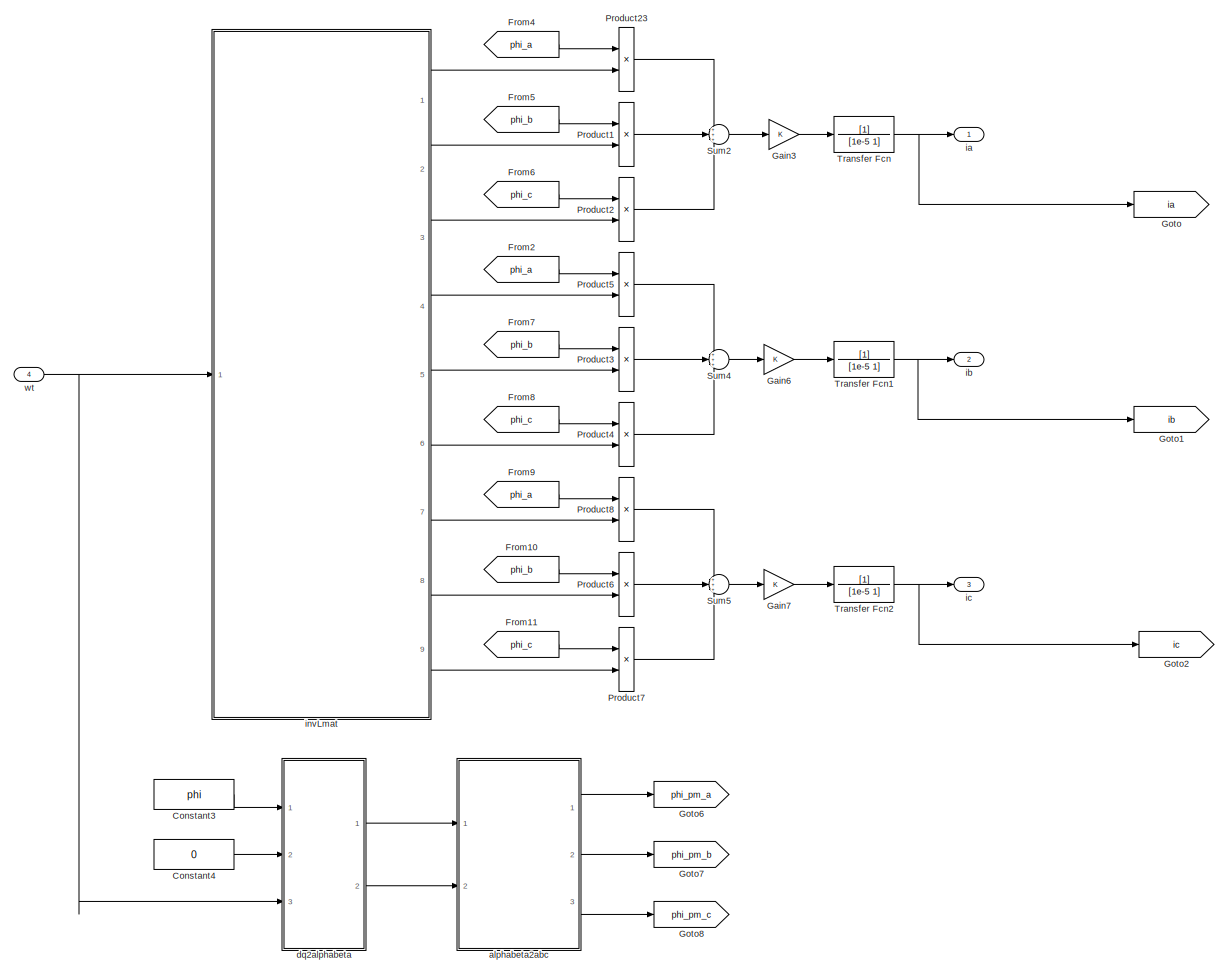
[diagram: PSM/PSM: Electrical System - part 1/2, right side, full height]
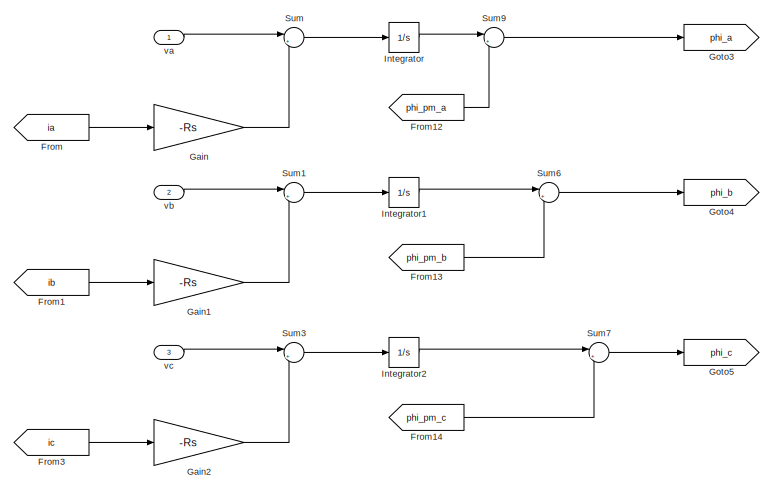
[diagram: PSM/PSM: Electrical System - part 2/2, top left region]
BLOCK [SubSystem] PSM/PSM: Electrical System
  Ports = [4, 3]
  RequestExecContextInheritance = off
BLOCK [Constant] PSM/PSM: Electrical System/Constant3
  Value = phi
BLOCK [Constant] PSM/PSM: Electrical System/Constant4
  Value = 0
BLOCK [From] PSM/PSM: Electrical System/From
  GotoTag = ia
BLOCK [From] PSM/PSM: Electrical System/From1
  GotoTag = ib
BLOCK [From] PSM/PSM: Electrical System/From10
  GotoTag = phi_b
BLOCK [From] PSM/PSM: Electrical System/From11
  GotoTag = phi_c
BLOCK [From] PSM/PSM: Electrical System/From12
  GotoTag = phi_pm_a
BLOCK [From] PSM/PSM: Electrical System/From13
  GotoTag = phi_pm_b
BLOCK [From] PSM/PSM: Electrical System/From14
  GotoTag = phi_pm_c
BLOCK [From] PSM/PSM: Electrical System/From2
  GotoTag = phi_a
BLOCK [From] PSM/PSM: Electrical System/From3
  GotoTag = ic
BLOCK [From] PSM/PSM: Electrical System/From4
  GotoTag = phi_a
BLOCK [From] PSM/PSM: Electrical System/From5
  GotoTag = phi_b
BLOCK [From] PSM/PSM: Electrical System/From6
  GotoTag = phi_c
BLOCK [From] PSM/PSM: Electrical System/From7
  GotoTag = phi_b
BLOCK [From] PSM/PSM: Electrical System/From8
  GotoTag = phi_c
BLOCK [From] PSM/PSM: Electrical System/From9
  GotoTag = phi_a
BLOCK [Gain] PSM/PSM: Electrical System/Gain
  Gain = -Rs
BLOCK [Gain] PSM/PSM: Electrical System/Gain1
  Gain = -Rs
BLOCK [Gain] PSM/PSM: Electrical System/Gain2
  Gain = -Rs
BLOCK [Gain] PSM/PSM: Electrical System/Gain3
BLOCK [Gain] PSM/PSM: Electrical System/Gain6
BLOCK [Gain] PSM/PSM: Electrical System/Gain7
BLOCK [Goto] PSM/PSM: Electrical System/Goto
  GotoTag = ia
BLOCK [Goto] PSM/PSM: Electrical System/Goto1
  GotoTag = ib
BLOCK [Goto] PSM/PSM: Electrical System/Goto2
  GotoTag = ic
BLOCK [Goto] PSM/PSM: Electrical System/Goto3
  GotoTag = phi_a
BLOCK [Goto] PSM/PSM: Electrical System/Goto4
  GotoTag = phi_b
BLOCK [Goto] PSM/PSM: Electrical System/Goto5
  GotoTag = phi_c
BLOCK [Goto] PSM/PSM: Electrical System/Goto6
  GotoTag = phi_pm_a
BLOCK [Goto] PSM/PSM: Electrical System/Goto7
  GotoTag = phi_pm_b
BLOCK [Goto] PSM/PSM: Electrical System/Goto8
  GotoTag = phi_pm_c
BLOCK [Integrator] PSM/PSM: Electrical System/Integrator
  InitialCondition = phi
  Ports = [1, 1]
BLOCK [Integrator] PSM/PSM: Electrical System/Integrator1
  InitialCondition = phi*cos(2*pi/3)
  Ports = [1, 1]
BLOCK [Integrator] PSM/PSM: Electrical System/Integrator2
  InitialCondition = phi*cos(-2*pi/3)
  Ports = [1, 1]
BLOCK [Product] PSM/PSM: Electrical System/Product1
  Ports = [2, 1]
BLOCK [Product] PSM/PSM: Electrical System/Product2
  Ports = [2, 1]
BLOCK [Product] PSM/PSM: Electrical System/Product23
  Ports = [2, 1]
BLOCK [Product] PSM/PSM: Electrical System/Product3
  Ports = [2, 1]
BLOCK [Product] PSM/PSM: Electrical System/Product4
  Ports = [2, 1]
BLOCK [Product] PSM/PSM: Electrical System/Product5
  Ports = [2, 1]
BLOCK [Product] PSM/PSM: Electrical System/Product6
  Ports = [2, 1]
BLOCK [Product] PSM/PSM: Electrical System/Product7
  Ports = [2, 1]
BLOCK [Product] PSM/PSM: Electrical System/Product8
  Ports = [2, 1]
BLOCK [Sum] PSM/PSM: Electrical System/Sum
  Inputs = |++
  Ports = [2, 1]
BLOCK [Sum] PSM/PSM: Electrical System/Sum1
  Inputs = |++
  Ports = [2, 1]
BLOCK [Sum] PSM/PSM: Electrical System/Sum2
  Inputs = +++
  Ports = [3, 1]
BLOCK [Sum] PSM/PSM: Electrical System/Sum3
  Inputs = |++
  Ports = [2, 1]
BLOCK [Sum] PSM/PSM: Electrical System/Sum4
  Inputs = +++
  Ports = [3, 1]
BLOCK [Sum] PSM/PSM: Electrical System/Sum5
  Inputs = +++
  Ports = [3, 1]
BLOCK [Sum] PSM/PSM: Electrical System/Sum6
  Inputs = |+-
  Ports = [2, 1]
BLOCK [Sum] PSM/PSM: Electrical System/Sum7
  Inputs = |+-
  Ports = [2, 1]
BLOCK [Sum] PSM/PSM: Electrical System/Sum9
  Inputs = |+-
  Ports = [2, 1]
BLOCK [TransferFcn] PSM/PSM: Electrical System/Transfer Fcn
  Denominator = [1e-5 1]
BLOCK [TransferFcn] PSM/PSM: Electrical System/Transfer Fcn1
  Denominator = [1e-5 1]
BLOCK [TransferFcn] PSM/PSM: Electrical System/Transfer Fcn2
  Denominator = [1e-5 1]
BLOCK [SubSystem] PSM/PSM: Electrical System/alphabeta2abc
  Ports = [2, 3]
  RequestExecContextInheritance = off
BLOCK [Gain] PSM/PSM: Electrical System/alphabeta2abc/Gain1
  Gain = 0
BLOCK [Gain] PSM/PSM: Electrical System/alphabeta2abc/Gain2
  Gain = sqrt(3)/2
BLOCK [Gain] PSM/PSM: Electrical System/alphabeta2abc/Gain3
  Gain = -1/2
BLOCK [Gain] PSM/PSM: Electrical System/alphabeta2abc/Gain4
  Gain = -sqrt(3)/2
BLOCK [Gain] PSM/PSM: Electrical System/alphabeta2abc/Gain5
BLOCK [Gain] PSM/PSM: Electrical System/alphabeta2abc/Gain6
  Gain = -1/2
BLOCK [Sum] PSM/PSM: Electrical System/alphabeta2abc/Sum
  IconShape = rectangular
  Ports = [2, 1]
BLOCK [Sum] PSM/PSM: Electrical System/alphabeta2abc/Sum1
  IconShape = rectangular
  Ports = [2, 1]
BLOCK [Sum] PSM/PSM: Electrical System/alphabeta2abc/Sum2
  IconShape = rectangular
  Ports = [2, 1]
BLOCK [Outport] PSM/PSM: Electrical System/alphabeta2abc/a
BLOCK [Inport] PSM/PSM: Electrical System/alphabeta2abc/alpha
BLOCK [Outport] PSM/PSM: Electrical System/alphabeta2abc/b
  Port = 2
BLOCK [Inport] PSM/PSM: Electrical System/alphabeta2abc/beta
  Port = 2
BLOCK [Outport] PSM/PSM: Electrical System/alphabeta2abc/c
  Port = 3
BLOCK [SubSystem] PSM/PSM: Electrical System/dq2alphabeta
  Ports = [3, 2]
  RequestExecContextInheritance = off
BLOCK [Outport] PSM/PSM: Electrical System/dq2alphabeta/a
BLOCK [Outport] PSM/PSM: Electrical System/dq2alphabeta/b
  Port = 2
BLOCK [Inport] PSM/PSM: Electrical System/dq2alphabeta/d
BLOCK [SubSystem] PSM/PSM: Electrical System/dq2alphabeta/dq-alphabeta
  Ports = [3, 2]
  RequestExecContextInheritance = off
BLOCK [From] PSM/PSM: Electrical System/dq2alphabeta/dq-alphabeta/From
  CloseFcn = tagdialog Close
  GotoTag = cos
BLOCK [From] PSM/PSM: Electrical System/dq2alphabeta/dq-alphabeta/From1
  CloseFcn = tagdialog Close
  GotoTag = sin
BLOCK [From] PSM/PSM: Electrical System/dq2alphabeta/dq-alphabeta/From2
  CloseFcn = tagdialog Close
  GotoTag = sin
BLOCK [From] PSM/PSM: Electrical System/dq2alphabeta/dq-alphabeta/From3
  CloseFcn = tagdialog Close
  GotoTag = cos
BLOCK [Goto] PSM/PSM: Electrical System/dq2alphabeta/dq-alphabeta/Goto2
  GotoTag = cos
BLOCK [Goto] PSM/PSM: Electrical System/dq2alphabeta/dq-alphabeta/Goto3
  GotoTag = sin
BLOCK [Product] PSM/PSM: Electrical System/dq2alphabeta/dq-alphabeta/Product
  Ports = [2, 1]
  RndMeth = Zero
BLOCK [Product] PSM/PSM: Electrical System/dq2alphabeta/dq-alphabeta/Product1
  Ports = [2, 1]
  RndMeth = Zero
BLOCK [Product] PSM/PSM: Electrical System/dq2alphabeta/dq-alphabeta/Product2
  Ports = [2, 1]
  RndMeth = Zero
BLOCK [Product] PSM/PSM: Electrical System/dq2alphabeta/dq-alphabeta/Product3
  Ports = [2, 1]
  RndMeth = Zero
BLOCK [Sum] PSM/PSM: Electrical System/dq2alphabeta/dq-alphabeta/Sum
  IconShape = rectangular
  Inputs = +-
  Ports = [2, 1]
BLOCK [Sum] PSM/PSM: Electrical System/dq2alphabeta/dq-alphabeta/Sum1
  IconShape = rectangular
  Ports = [2, 1]
BLOCK [Trigonometry] PSM/PSM: Electrical System/dq2alphabeta/dq-alphabeta/Trigonometric Function
  Operator = cos
  Ports = [1, 1]
BLOCK [Trigonometry] PSM/PSM: Electrical System/dq2alphabeta/dq-alphabeta/Trigonometric Function1
  Ports = [1, 1]
BLOCK [Outport] PSM/PSM: Electrical System/dq2alphabeta/dq-alphabeta/alpha
BLOCK [Outport] PSM/PSM: Electrical System/dq2alphabeta/dq-alphabeta/beta
  Port = 2
BLOCK [Inport] PSM/PSM: Electrical System/dq2alphabeta/dq-alphabeta/d
BLOCK [Inport] PSM/PSM: Electrical System/dq2alphabeta/dq-alphabeta/q
  Port = 2
BLOCK [Inport] PSM/PSM: Electrical System/dq2alphabeta/dq-alphabeta/wt
  Port = 3
BLOCK [Inport] PSM/PSM: Electrical System/dq2alphabeta/q
  Port = 2
BLOCK [Inport] PSM/PSM: Electrical System/dq2alphabeta/wt
  Port = 3
BLOCK [Outport] PSM/PSM: Electrical System/ia
BLOCK [Outport] PSM/PSM: Electrical System/ib
  Port = 2
BLOCK [Outport] PSM/PSM: Electrical System/ic
  Port = 3
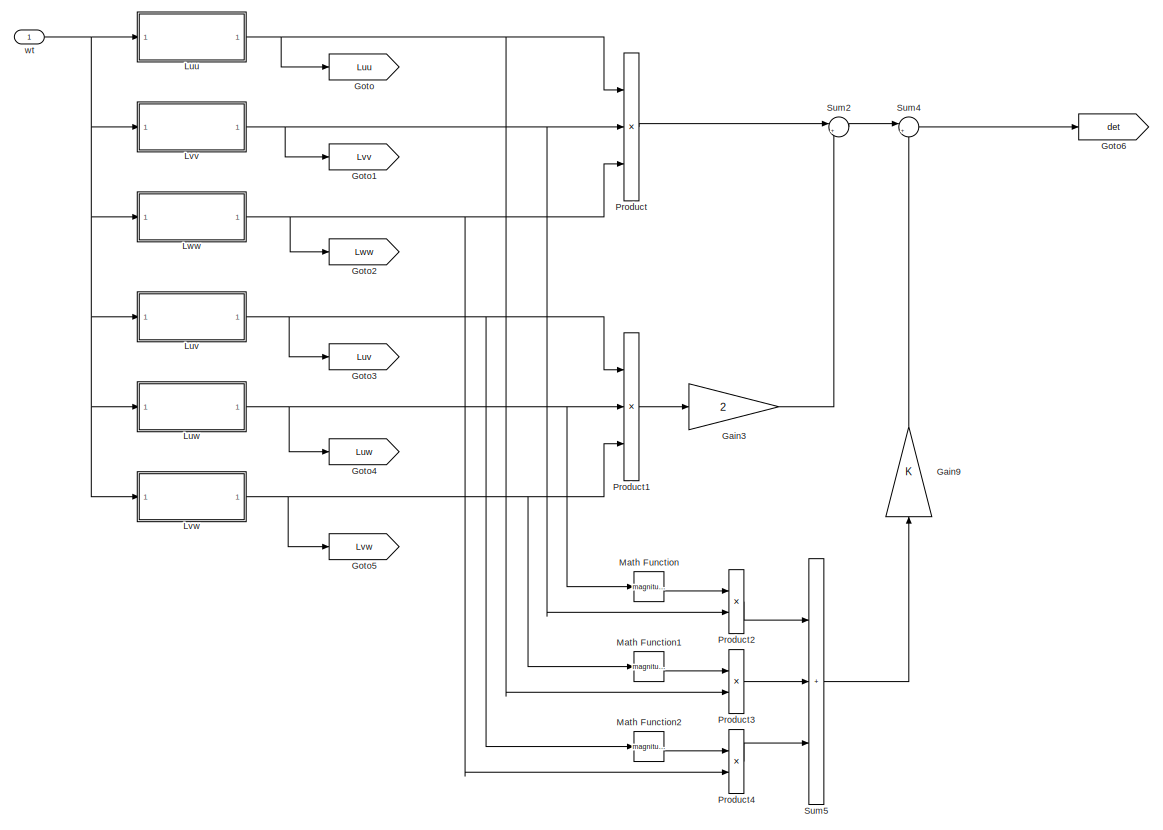
[diagram: PSM/PSM: Electrical System/invLmat - part 1/3, left side, full height]
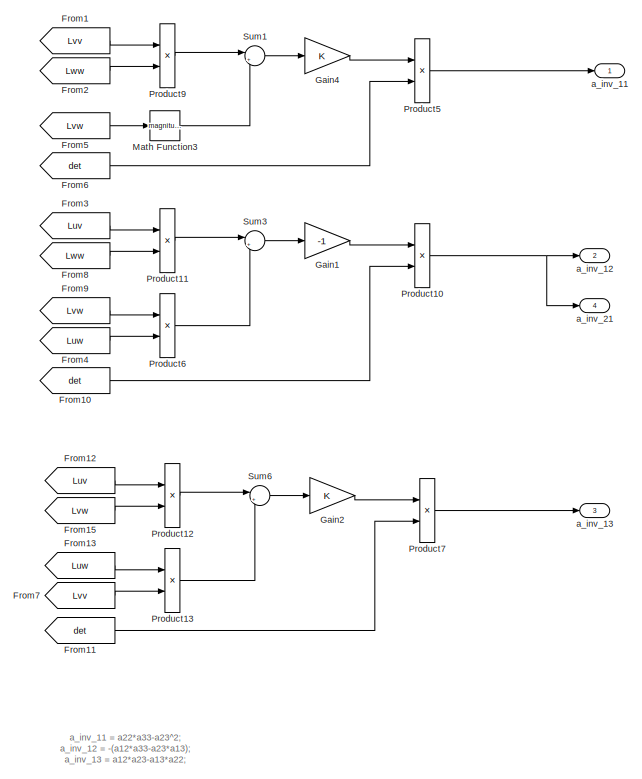
[diagram: PSM/PSM: Electrical System/invLmat - part 2/3, center side, full height]
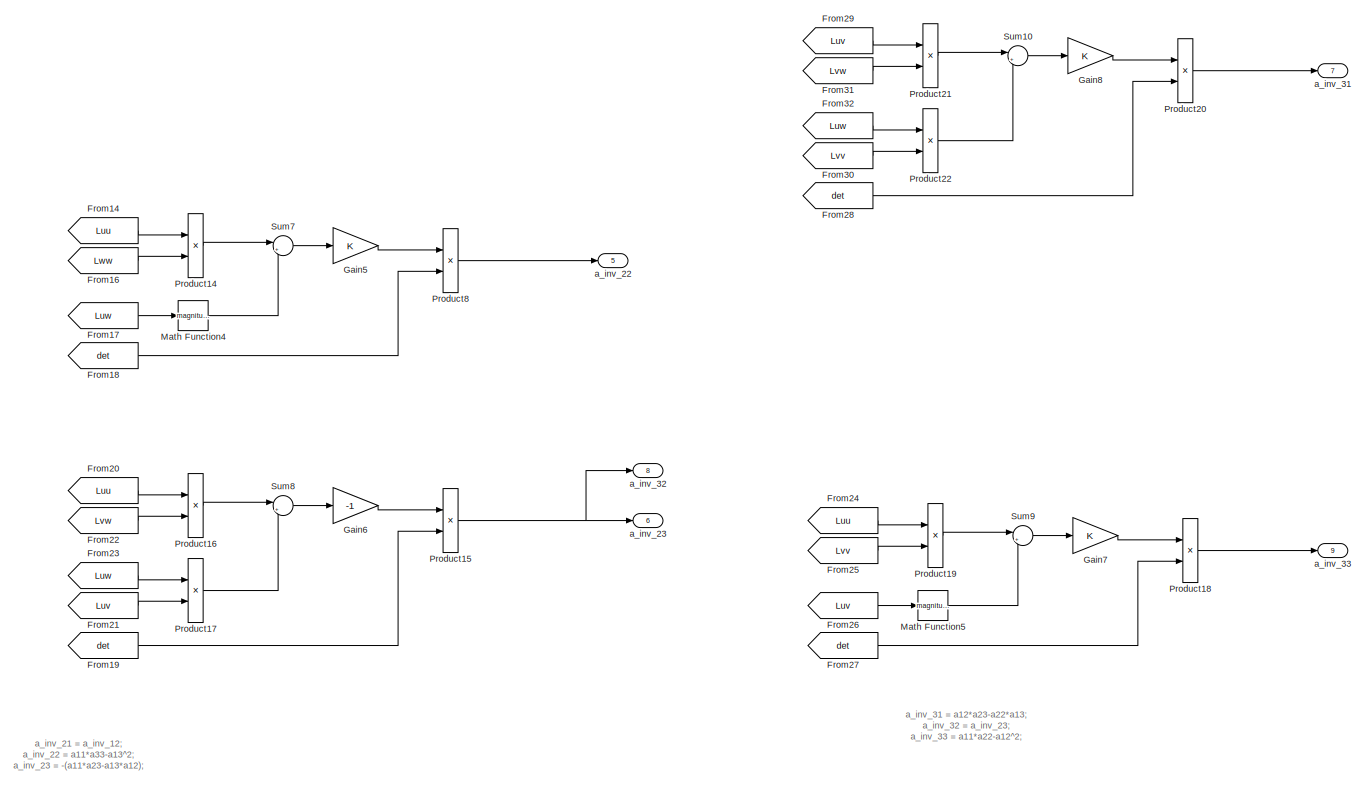
[diagram: PSM/PSM: Electrical System/invLmat - part 3/3, right side, full height]
BLOCK [SubSystem] PSM/PSM: Electrical System/invLmat
  Ports = [1, 9]
  RequestExecContextInheritance = off
BLOCK [From] PSM/PSM: Electrical System/invLmat/From1
  GotoTag = Lvv
BLOCK [From] PSM/PSM: Electrical System/invLmat/From10
  GotoTag = det
BLOCK [From] PSM/PSM: Electrical System/invLmat/From11
  GotoTag = det
BLOCK [From] PSM/PSM: Electrical System/invLmat/From12
  GotoTag = Luv
BLOCK [From] PSM/PSM: Electrical System/invLmat/From13
  GotoTag = Luw
BLOCK [From] PSM/PSM: Electrical System/invLmat/From14
  GotoTag = Luu
BLOCK [From] PSM/PSM: Electrical System/invLmat/From15
  GotoTag = Lvw
BLOCK [From] PSM/PSM: Electrical System/invLmat/From16
  GotoTag = Lww
BLOCK [From] PSM/PSM: Electrical System/invLmat/From17
  GotoTag = Luw
BLOCK [From] PSM/PSM: Electrical System/invLmat/From18
  GotoTag = det
BLOCK [From] PSM/PSM: Electrical System/invLmat/From19
  GotoTag = det
BLOCK [From] PSM/PSM: Electrical System/invLmat/From2
  GotoTag = Lww
BLOCK [From] PSM/PSM: Electrical System/invLmat/From20
  GotoTag = Luu
BLOCK [From] PSM/PSM: Electrical System/invLmat/From21
  GotoTag = Luv
BLOCK [From] PSM/PSM: Electrical System/invLmat/From22
  GotoTag = Lvw
BLOCK [From] PSM/PSM: Electrical System/invLmat/From23
  GotoTag = Luw
BLOCK [From] PSM/PSM: Electrical System/invLmat/From24
  GotoTag = Luu
BLOCK [From] PSM/PSM: Electrical System/invLmat/From25
  GotoTag = Lvv
BLOCK [From] PSM/PSM: Electrical System/invLmat/From26
  GotoTag = Luv
BLOCK [From] PSM/PSM: Electrical System/invLmat/From27
  GotoTag = det
BLOCK [From] PSM/PSM: Electrical System/invLmat/From28
  GotoTag = det
BLOCK [From] PSM/PSM: Electrical System/invLmat/From29
  GotoTag = Luv
BLOCK [From] PSM/PSM: Electrical System/invLmat/From3
  GotoTag = Luv
BLOCK [From] PSM/PSM: Electrical System/invLmat/From30
  GotoTag = Lvv
BLOCK [From] PSM/PSM: Electrical System/invLmat/From31
  GotoTag = Lvw
BLOCK [From] PSM/PSM: Electrical System/invLmat/From32
  GotoTag = Luw
BLOCK [From] PSM/PSM: Electrical System/invLmat/From4
  GotoTag = Luw
BLOCK [From] PSM/PSM: Electrical System/invLmat/From5
  GotoTag = Lvw
BLOCK [From] PSM/PSM: Electrical System/invLmat/From6
  GotoTag = det
BLOCK [From] PSM/PSM: Electrical System/invLmat/From7
  GotoTag = Lvv
BLOCK [From] PSM/PSM: Electrical System/invLmat/From8
  GotoTag = Lww
BLOCK [From] PSM/PSM: Electrical System/invLmat/From9
  GotoTag = Lvw
BLOCK [Gain] PSM/PSM: Electrical System/invLmat/Gain1
  Gain = -1
BLOCK [Gain] PSM/PSM: Electrical System/invLmat/Gain2
BLOCK [Gain] PSM/PSM: Electrical System/invLmat/Gain3
  Gain = 2
BLOCK [Gain] PSM/PSM: Electrical System/invLmat/Gain4
BLOCK [Gain] PSM/PSM: Electrical System/invLmat/Gain5
BLOCK [Gain] PSM/PSM: Electrical System/invLmat/Gain6
  Gain = -1
BLOCK [Gain] PSM/PSM: Electrical System/invLmat/Gain7
BLOCK [Gain] PSM/PSM: Electrical System/invLmat/Gain8
BLOCK [Gain] PSM/PSM: Electrical System/invLmat/Gain9
  NameLocation = right
BLOCK [Goto] PSM/PSM: Electrical System/invLmat/Goto
  GotoTag = Luu
BLOCK [Goto] PSM/PSM: Electrical System/invLmat/Goto1
  GotoTag = Lvv
BLOCK [Goto] PSM/PSM: Electrical System/invLmat/Goto2
  GotoTag = Lww
BLOCK [Goto] PSM/PSM: Electrical System/invLmat/Goto3
  GotoTag = Luv
BLOCK [Goto] PSM/PSM: Electrical System/invLmat/Goto4
  GotoTag = Luw
BLOCK [Goto] PSM/PSM: Electrical System/invLmat/Goto5
  GotoTag = Lvw
BLOCK [Goto] PSM/PSM: Electrical System/invLmat/Goto6
  GotoTag = det
BLOCK [SubSystem] PSM/PSM: Electrical System/invLmat/Luu
  Ports = [1, 1]
  RequestExecContextInheritance = off
BLOCK [Constant] PSM/PSM: Electrical System/invLmat/Luu/Constant
  Value = La
BLOCK [Constant] PSM/PSM: Electrical System/invLmat/Luu/Constant1
  Value = Lb
BLOCK [Constant] PSM/PSM: Electrical System/invLmat/Luu/Constant2
  Value = Ll
BLOCK [Gain] PSM/PSM: Electrical System/invLmat/Luu/Gain1
  Gain = 2
BLOCK [Outport] PSM/PSM: Electrical System/invLmat/Luu/Luu
BLOCK [Product] PSM/PSM: Electrical System/invLmat/Luu/Product
  Ports = [2, 1]
BLOCK [Sum] PSM/PSM: Electrical System/invLmat/Luu/Sum1
  Inputs = +++
  Ports = [3, 1]
BLOCK [Trigonometry] PSM/PSM: Electrical System/invLmat/Luu/Trigonometric Function
  Operator = cos
  Ports = [1, 1]
BLOCK [Inport] PSM/PSM: Electrical System/invLmat/Luu/wt
BLOCK [SubSystem] PSM/PSM: Electrical System/invLmat/Luv
  Ports = [1, 1]
  RequestExecContextInheritance = off
BLOCK [Constant] PSM/PSM: Electrical System/invLmat/Luv/Constant
  Value = La
BLOCK [Constant] PSM/PSM: Electrical System/invLmat/Luv/Constant1
  Value = Lb
BLOCK [Constant] PSM/PSM: Electrical System/invLmat/Luv/Constant2
  Value = -2*pi/3
BLOCK [Gain] PSM/PSM: Electrical System/invLmat/Luv/Gain1
  Gain = 2
BLOCK [Gain] PSM/PSM: Electrical System/invLmat/Luv/Gain2
  Gain = -1/2
BLOCK [Outport] PSM/PSM: Electrical System/invLmat/Luv/Luv
BLOCK [Product] PSM/PSM: Electrical System/invLmat/Luv/Product
  Ports = [2, 1]
BLOCK [Sum] PSM/PSM: Electrical System/invLmat/Luv/Sum1
  Inputs = |++
  Ports = [2, 1]
BLOCK [Sum] PSM/PSM: Electrical System/invLmat/Luv/Sum2
  Inputs = |++
  Ports = [2, 1]
BLOCK [Trigonometry] PSM/PSM: Electrical System/invLmat/Luv/Trigonometric Function
  Operator = cos
  Ports = [1, 1]
BLOCK [Inport] PSM/PSM: Electrical System/invLmat/Luv/wt
BLOCK [SubSystem] PSM/PSM: Electrical System/invLmat/Luw
  Ports = [1, 1]
  RequestExecContextInheritance = off
BLOCK [Constant] PSM/PSM: Electrical System/invLmat/Luw/Constant
  Value = La
BLOCK [Constant] PSM/PSM: Electrical System/invLmat/Luw/Constant1
  Value = Lb
BLOCK [Constant] PSM/PSM: Electrical System/invLmat/Luw/Constant2
  Value = 2*pi/3
BLOCK [Gain] PSM/PSM: Electrical System/invLmat/Luw/Gain1
  Gain = 2
BLOCK [Gain] PSM/PSM: Electrical System/invLmat/Luw/Gain2
  Gain = -1/2
BLOCK [Outport] PSM/PSM: Electrical System/invLmat/Luw/Luw
BLOCK [Product] PSM/PSM: Electrical System/invLmat/Luw/Product
  Ports = [2, 1]
BLOCK [Sum] PSM/PSM: Electrical System/invLmat/Luw/Sum1
  Inputs = |++
  Ports = [2, 1]
BLOCK [Sum] PSM/PSM: Electrical System/invLmat/Luw/Sum2
  Inputs = |++
  Ports = [2, 1]
BLOCK [Trigonometry] PSM/PSM: Electrical System/invLmat/Luw/Trigonometric Function
  Operator = cos
  Ports = [1, 1]
BLOCK [Inport] PSM/PSM: Electrical System/invLmat/Luw/wt
BLOCK [SubSystem] PSM/PSM: Electrical System/invLmat/Lvv
  Ports = [1, 1]
  RequestExecContextInheritance = off
BLOCK [Constant] PSM/PSM: Electrical System/invLmat/Lvv/Constant
  Value = La
BLOCK [Constant] PSM/PSM: Electrical System/invLmat/Lvv/Constant1
  Value = Lb
BLOCK [Constant] PSM/PSM: Electrical System/invLmat/Lvv/Constant2
  Value = 2*pi/3
BLOCK [Constant] PSM/PSM: Electrical System/invLmat/Lvv/Constant3
  Value = Ll
BLOCK [Gain] PSM/PSM: Electrical System/invLmat/Lvv/Gain1
  Gain = 2
BLOCK [Outport] PSM/PSM: Electrical System/invLmat/Lvv/Lvv
BLOCK [Product] PSM/PSM: Electrical System/invLmat/Lvv/Product
  Ports = [2, 1]
BLOCK [Sum] PSM/PSM: Electrical System/invLmat/Lvv/Sum1
  Inputs = +++
  Ports = [3, 1]
BLOCK [Sum] PSM/PSM: Electrical System/invLmat/Lvv/Sum2
  Inputs = |++
  Ports = [2, 1]
BLOCK [Trigonometry] PSM/PSM: Electrical System/invLmat/Lvv/Trigonometric Function
  Operator = cos
  Ports = [1, 1]
BLOCK [Inport] PSM/PSM: Electrical System/invLmat/Lvv/wt
BLOCK [SubSystem] PSM/PSM: Electrical System/invLmat/Lvw
  Ports = [1, 1]
  RequestExecContextInheritance = off
BLOCK [Constant] PSM/PSM: Electrical System/invLmat/Lvw/Constant
  Value = La
BLOCK [Constant] PSM/PSM: Electrical System/invLmat/Lvw/Constant1
  Value = Lb
BLOCK [Constant] PSM/PSM: Electrical System/invLmat/Lvw/Constant2
  Value = 2*pi
BLOCK [Gain] PSM/PSM: Electrical System/invLmat/Lvw/Gain1
  Gain = 2
BLOCK [Gain] PSM/PSM: Electrical System/invLmat/Lvw/Gain2
  Gain = -1/2
BLOCK [Outport] PSM/PSM: Electrical System/invLmat/Lvw/Lvw
BLOCK [Product] PSM/PSM: Electrical System/invLmat/Lvw/Product
  Ports = [2, 1]
BLOCK [Sum] PSM/PSM: Electrical System/invLmat/Lvw/Sum1
  Inputs = |++
  Ports = [2, 1]
BLOCK [Sum] PSM/PSM: Electrical System/invLmat/Lvw/Sum2
  Inputs = |++
  Ports = [2, 1]
BLOCK [Trigonometry] PSM/PSM: Electrical System/invLmat/Lvw/Trigonometric Function
  Operator = cos
  Ports = [1, 1]
BLOCK [Inport] PSM/PSM: Electrical System/invLmat/Lvw/wt
BLOCK [SubSystem] PSM/PSM: Electrical System/invLmat/Lww
  Ports = [1, 1]
  RequestExecContextInheritance = off
BLOCK [Constant] PSM/PSM: Electrical System/invLmat/Lww/Constant
  Value = La
BLOCK [Constant] PSM/PSM: Electrical System/invLmat/Lww/Constant1
  Value = Lb
BLOCK [Constant] PSM/PSM: Electrical System/invLmat/Lww/Constant2
  Value = -2*pi/3
BLOCK [Constant] PSM/PSM: Electrical System/invLmat/Lww/Constant3
  Value = Ll
BLOCK [Gain] PSM/PSM: Electrical System/invLmat/Lww/Gain1
  Gain = 2
BLOCK [Outport] PSM/PSM: Electrical System/invLmat/Lww/Lww
BLOCK [Product] PSM/PSM: Electrical System/invLmat/Lww/Product
  Ports = [2, 1]
BLOCK [Sum] PSM/PSM: Electrical System/invLmat/Lww/Sum1
  Inputs = +++
  Ports = [3, 1]
BLOCK [Sum] PSM/PSM: Electrical System/invLmat/Lww/Sum2
  Inputs = |++
  Ports = [2, 1]
BLOCK [Trigonometry] PSM/PSM: Electrical System/invLmat/Lww/Trigonometric Function
  Operator = cos
  Ports = [1, 1]
BLOCK [Inport] PSM/PSM: Electrical System/invLmat/Lww/wt
BLOCK [Math] PSM/PSM: Electrical System/invLmat/Math Function
  Operator = magnitude^2
  Ports = [1, 1]
  SignedPower = on
BLOCK [Math] PSM/PSM: Electrical System/invLmat/Math Function1
  Operator = magnitude^2
  Ports = [1, 1]
  SignedPower = on
BLOCK [Math] PSM/PSM: Electrical System/invLmat/Math Function2
  Operator = magnitude^2
  Ports = [1, 1]
  SignedPower = on
BLOCK [Math] PSM/PSM: Electrical System/invLmat/Math Function3
  Operator = magnitude^2
  Ports = [1, 1]
  SignedPower = on
BLOCK [Math] PSM/PSM: Electrical System/invLmat/Math Function4
  Operator = magnitude^2
  Ports = [1, 1]
  SignedPower = on
BLOCK [Math] PSM/PSM: Electrical System/invLmat/Math Function5
  Operator = magnitude^2
  Ports = [1, 1]
  SignedPower = on
BLOCK [Product] PSM/PSM: Electrical System/invLmat/Product
  Inputs = 3
  Ports = [3, 1]
BLOCK [Product] PSM/PSM: Electrical System/invLmat/Product1
  Inputs = 3
  Ports = [3, 1]
BLOCK [Product] PSM/PSM: Electrical System/invLmat/Product10
  Inputs = */
  Ports = [2, 1]
BLOCK [Product] PSM/PSM: Electrical System/invLmat/Product11
  Ports = [2, 1]
BLOCK [Product] PSM/PSM: Electrical System/invLmat/Product12
  Ports = [2, 1]
BLOCK [Product] PSM/PSM: Electrical System/invLmat/Product13
  Ports = [2, 1]
BLOCK [Product] PSM/PSM: Electrical System/invLmat/Product14
  Ports = [2, 1]
BLOCK [Product] PSM/PSM: Electrical System/invLmat/Product15
  Inputs = */
  Ports = [2, 1]
BLOCK [Product] PSM/PSM: Electrical System/invLmat/Product16
  Ports = [2, 1]
BLOCK [Product] PSM/PSM: Electrical System/invLmat/Product17
  Ports = [2, 1]
BLOCK [Product] PSM/PSM: Electrical System/invLmat/Product18
  Inputs = */
  Ports = [2, 1]
BLOCK [Product] PSM/PSM: Electrical System/invLmat/Product19
  Ports = [2, 1]
BLOCK [Product] PSM/PSM: Electrical System/invLmat/Product2
  Ports = [2, 1]
BLOCK [Product] PSM/PSM: Electrical System/invLmat/Product20
  Inputs = */
  Ports = [2, 1]
BLOCK [Product] PSM/PSM: Electrical System/invLmat/Product21
  Ports = [2, 1]
BLOCK [Product] PSM/PSM: Electrical System/invLmat/Product22
  Ports = [2, 1]
BLOCK [Product] PSM/PSM: Electrical System/invLmat/Product3
  Ports = [2, 1]
BLOCK [Product] PSM/PSM: Electrical System/invLmat/Product4
  Ports = [2, 1]
BLOCK [Product] PSM/PSM: Electrical System/invLmat/Product5
  Inputs = */
  Ports = [2, 1]
BLOCK [Product] PSM/PSM: Electrical System/invLmat/Product6
  Ports = [2, 1]
BLOCK [Product] PSM/PSM: Electrical System/invLmat/Product7
  Inputs = */
  Ports = [2, 1]
BLOCK [Product] PSM/PSM: Electrical System/invLmat/Product8
  Inputs = */
  Ports = [2, 1]
BLOCK [Product] PSM/PSM: Electrical System/invLmat/Product9
  Ports = [2, 1]
BLOCK [Sum] PSM/PSM: Electrical System/invLmat/Sum1
  Inputs = |+-
  Ports = [2, 1]
BLOCK [Sum] PSM/PSM: Electrical System/invLmat/Sum10
  Inputs = |+-
  Ports = [2, 1]
BLOCK [Sum] PSM/PSM: Electrical System/invLmat/Sum2
  Inputs = |++
  Ports = [2, 1]
BLOCK [Sum] PSM/PSM: Electrical System/invLmat/Sum3
  Inputs = |+-
  Ports = [2, 1]
BLOCK [Sum] PSM/PSM: Electrical System/invLmat/Sum4
  Inputs = |+-
  Ports = [2, 1]
BLOCK [Sum] PSM/PSM: Electrical System/invLmat/Sum5
  IconShape = rectangular
  Inputs = +++
  Ports = [3, 1]
BLOCK [Sum] PSM/PSM: Electrical System/invLmat/Sum6
  Inputs = |+-
  Ports = [2, 1]
BLOCK [Sum] PSM/PSM: Electrical System/invLmat/Sum7
  Inputs = |+-
  Ports = [2, 1]
BLOCK [Sum] PSM/PSM: Electrical System/invLmat/Sum8
  Inputs = |+-
  Ports = [2, 1]
BLOCK [Sum] PSM/PSM: Electrical System/invLmat/Sum9
  Inputs = |+-
  Ports = [2, 1]
BLOCK [Outport] PSM/PSM: Electrical System/invLmat/a_inv_11
BLOCK [Outport] PSM/PSM: Electrical System/invLmat/a_inv_12
  Port = 2
BLOCK [Outport] PSM/PSM: Electrical System/invLmat/a_inv_13
  Port = 3
BLOCK [Outport] PSM/PSM: Electrical System/invLmat/a_inv_21
  Port = 4
BLOCK [Outport] PSM/PSM: Electrical System/invLmat/a_inv_22
  Port = 5
BLOCK [Outport] PSM/PSM: Electrical System/invLmat/a_inv_23
  Port = 6
BLOCK [Outport] PSM/PSM: Electrical System/invLmat/a_inv_31
  Port = 7
BLOCK [Outport] PSM/PSM: Electrical System/invLmat/a_inv_32
  Port = 8
BLOCK [Outport] PSM/PSM: Electrical System/invLmat/a_inv_33
  Port = 9
BLOCK [Inport] PSM/PSM: Electrical System/invLmat/wt
BLOCK [Inport] PSM/PSM: Electrical System/va
BLOCK [Inport] PSM/PSM: Electrical System/vb
  Port = 2
BLOCK [Inport] PSM/PSM: Electrical System/vc
  Port = 3
BLOCK [Inport] PSM/PSM: Electrical System/wt
  Port = 4
BLOCK [SubSystem] PSM/PSM: Mechanical System
  Ports = [2, 2]
  RequestExecContextInheritance = off
BLOCK [Constant] PSM/PSM: Mechanical System/Constant
  Value = phi
BLOCK [Constant] PSM/PSM: Mechanical System/Constant2
  NameLocation = top
  Value = 2*pi
BLOCK [Gain] PSM/PSM: Mechanical System/Gain5
  Gain = cp
BLOCK [Gain] PSM/PSM: Mechanical System/Gain6
  Gain = cp
BLOCK [Gain] PSM/PSM: Mechanical System/Gain8
  Gain = 3/2
  NameLocation = top
BLOCK [Goto] PSM/PSM: Mechanical System/Goto1
  GotoTag = iq
BLOCK [Goto] PSM/PSM: Mechanical System/Goto2
  GotoTag = Omega
BLOCK [Goto] PSM/PSM: Mechanical System/Goto3
  GotoTag = theta_m
  NameLocation = top
BLOCK [Goto] PSM/PSM: Mechanical System/Goto4
  GotoTag = Te
BLOCK [Inport] PSM/PSM: Mechanical System/In1
  IconDisplay = Signal name
BLOCK [Inport] PSM/PSM: Mechanical System/In2
  IconDisplay = Signal name
  Port = 2
BLOCK [Integrator] PSM/PSM: Mechanical System/Integrator
  Ports = [1, 1]
BLOCK [Integrator] PSM/PSM: Mechanical System/Integrator1
  Ports = [1, 1]
BLOCK [Math] PSM/PSM: Mechanical System/Math Function2
  NameLocation = top
  Operator = mod
  Ports = [2, 1]
  SignedPower = on
BLOCK [Outport] PSM/PSM: Mechanical System/Out1
  IconDisplay = Signal name
  Port = 2
BLOCK [Outport] PSM/PSM: Mechanical System/Out2
  IconDisplay = Signal name
BLOCK [Product] PSM/PSM: Mechanical System/Product
  Ports = [2, 1]
BLOCK [Product] PSM/PSM: Mechanical System/Product1
  Ports = [2, 1]
BLOCK [Sum] PSM/PSM: Mechanical System/Sum5
  Inputs = |+-
  Ports = [2, 1]
BLOCK [SubSystem] PSM/PSM: Mechanical System/plant_inertia
  Ports = [0, 1]
  RequestExecContextInheritance = off
BLOCK [Constant] PSM/PSM: Mechanical System/plant_inertia/Constant1
  Value = J
BLOCK [Constant] PSM/PSM: Mechanical System/plant_inertia/Constant4
BLOCK [Outport] PSM/PSM: Mechanical System/plant_inertia/J_1
BLOCK [Product] PSM/PSM: Mechanical System/plant_inertia/Product5
  Inputs = */
  Ports = [2, 1]
BLOCK [ToWorkspace] PSM/PSM: Mechanical System/plant_inertia/To Workspace1
  MaxDataPoints = Nc
  Ports = [1]
  SampleTime = Tc
  VariableName = plant_inertia
BLOCK [Reference] PSM/Rk1  REF=powerlib/Elements/Series RLC Branch
  NameLocation = left
  Ports = [0, 0, 0, 0, 0, 1, 1]
  SourceBlock = powerlib/Elements/Series RLC Branch
  SourceProductBaseCode = PS
  SourceType = Series RLC Branch
BLOCK [Reference] PSM/Rk2  REF=powerlib/Elements/Series RLC Branch
  NameLocation = left
  Ports = [0, 0, 0, 0, 0, 1, 1]
  SourceBlock = powerlib/Elements/Series RLC Branch
  SourceProductBaseCode = PS
  SourceType = Series RLC Branch
BLOCK [Reference] PSM/Rk3  REF=powerlib/Elements/Series RLC Branch
  NameLocation = left
  Ports = [0, 0, 0, 0, 0, 1, 1]
  SourceBlock = powerlib/Elements/Series RLC Branch
  SourceProductBaseCode = PS
  SourceType = Series RLC Branch
BLOCK [Sum] PSM/Sum
  Inputs = |+-
  Ports = [2, 1]
BLOCK [Sum] PSM/Sum1
  Inputs = |+-
  Ports = [2, 1]
BLOCK [Sum] PSM/Sum2
  Inputs = |+-
  Ports = [2, 1]
BLOCK [Reference] PSM/Voltage Measurement  REF=powerlib/Measurements/Voltage Measurement
  Ports = [0, 1, 0, 0, 0, 2]
  SourceBlock = powerlib/Measurements/Voltage Measurement
  SourceProductBaseCode = PS
  SourceType = Voltage Measurement
BLOCK [Reference] PSM/Voltage Measurement1  REF=powerlib/Measurements/Voltage Measurement
  Ports = [0, 1, 0, 0, 0, 2]
  SourceBlock = powerlib/Measurements/Voltage Measurement
  SourceProductBaseCode = PS
  SourceType = Voltage Measurement
BLOCK [Reference] PSM/Voltage Measurement2  REF=powerlib/Measurements/Voltage Measurement
  Ports = [0, 1, 0, 0, 0, 2]
  SourceBlock = powerlib/Measurements/Voltage Measurement
  SourceProductBaseCode = PS
  SourceType = Voltage Measurement
BLOCK [SubSystem] PSM/abc2dq 
  Ports = [4, 4]
  RequestExecContextInheritance = off
BLOCK [Inport] PSM/abc2dq /a
BLOCK [SubSystem] PSM/abc2dq /abc2alphabeta
  Ports = [3, 2]
  RequestExecContextInheritance = off
BLOCK [Gain] PSM/abc2dq /abc2alphabeta/Gain1
  Gain = -1/2
BLOCK [Gain] PSM/abc2dq /abc2alphabeta/Gain11
  Gain = -1/2
BLOCK [Gain] PSM/abc2dq /abc2alphabeta/Gain2
  Gain = 0
BLOCK [Gain] PSM/abc2dq /abc2alphabeta/Gain3
  Gain = sqrt(3)/2
BLOCK [Gain] PSM/abc2dq /abc2alphabeta/Gain4
  Gain = -sqrt(3)/2
BLOCK [Gain] PSM/abc2dq /abc2alphabeta/Gain8
  Gain = 2/3
BLOCK [Gain] PSM/abc2dq /abc2alphabeta/Gain9
  Gain = 2/3
BLOCK [Sum] PSM/abc2dq /abc2alphabeta/Sum
  IconShape = rectangular
  Inputs = +++
  Ports = [3, 1]
BLOCK [Sum] PSM/abc2dq /abc2alphabeta/Sum1
  IconShape = rectangular
  Inputs = +++
  Ports = [3, 1]
BLOCK [Inport] PSM/abc2dq /abc2alphabeta/a
BLOCK [Outport] PSM/abc2dq /abc2alphabeta/alpha 
BLOCK [Inport] PSM/abc2dq /abc2alphabeta/b
  Port = 2
BLOCK [Outport] PSM/abc2dq /abc2alphabeta/beta 
  Port = 2
BLOCK [Inport] PSM/abc2dq /abc2alphabeta/c
  Port = 3
BLOCK [Outport] PSM/abc2dq /alpha
  Port = 3
BLOCK [SubSystem] PSM/abc2dq /alphabeta2dq
  Ports = [3, 2]
  RequestExecContextInheritance = off
BLOCK [From] PSM/abc2dq /alphabeta2dq/From
  CloseFcn = tagdialog Close
  GotoTag = cos
BLOCK [From] PSM/abc2dq /alphabeta2dq/From1
  CloseFcn = tagdialog Close
  GotoTag = sin
BLOCK [From] PSM/abc2dq /alphabeta2dq/From2
  CloseFcn = tagdialog Close
  GotoTag = sin
BLOCK [From] PSM/abc2dq /alphabeta2dq/From3
  CloseFcn = tagdialog Close
  GotoTag = cos
BLOCK [Goto] PSM/abc2dq /alphabeta2dq/Goto2
  GotoTag = cos
BLOCK [Goto] PSM/abc2dq /alphabeta2dq/Goto3
  GotoTag = sin
BLOCK [Product] PSM/abc2dq /alphabeta2dq/Product
  Ports = [2, 1]
  RndMeth = Zero
BLOCK [Product] PSM/abc2dq /alphabeta2dq/Product1
  Ports = [2, 1]
  RndMeth = Zero
BLOCK [Product] PSM/abc2dq /alphabeta2dq/Product2
  Ports = [2, 1]
  RndMeth = Zero
BLOCK [Product] PSM/abc2dq /alphabeta2dq/Product3
  Ports = [2, 1]
  RndMeth = Zero
BLOCK [Sum] PSM/abc2dq /alphabeta2dq/Sum
  IconShape = rectangular
  Ports = [2, 1]
BLOCK [Sum] PSM/abc2dq /alphabeta2dq/Sum1
  IconShape = rectangular
  Inputs = -+
  Ports = [2, 1]
BLOCK [Trigonometry] PSM/abc2dq /alphabeta2dq/Trigonometric Function
  Operator = cos
  Ports = [1, 1]
BLOCK [Trigonometry] PSM/abc2dq /alphabeta2dq/Trigonometric Function1
  Ports = [1, 1]
BLOCK [Inport] PSM/abc2dq /alphabeta2dq/alpha
BLOCK [Inport] PSM/abc2dq /alphabeta2dq/beta
  Port = 2
BLOCK [Outport] PSM/abc2dq /alphabeta2dq/d
BLOCK [Outport] PSM/abc2dq /alphabeta2dq/q
  Port = 2
BLOCK [Inport] PSM/abc2dq /alphabeta2dq/wt
  Port = 3
BLOCK [Inport] PSM/abc2dq /b
  Port = 2
BLOCK [Outport] PSM/abc2dq /beta
  Port = 4
BLOCK [Inport] PSM/abc2dq /c
  Port = 3
BLOCK [Outport] PSM/abc2dq /d
BLOCK [Outport] PSM/abc2dq /q
  Port = 2
BLOCK [Inport] PSM/abc2dq /wt
  Port = 4
BLOCK [Reference] PSM/inverter output  REF=powerlib/Measurements/Three-Phase
V-I Measurement
  Ports = [0, 0, 0, 0, 0, 3, 3]
  SourceBlock = powerlib/Measurements/Three-Phase\nV-I Measurement
  SourceProductBaseCode = PS
  SourceType = Three-Phase VI Measurement
BLOCK [PMIOPort] PSM/vu
  Side = Left
BLOCK [PMIOPort] PSM/vv
  Port = 2
  Side = Left
BLOCK [PMIOPort] PSM/vw
  Port = 3
  Side = Left
BLOCK [Reference] powergui  REF=powerlib/powergui
  Ports = []
  SourceBlock = powerlib/powergui
  SourceProductBaseCode = PS
  SourceType = PSB option menu block
ANNOTATION INVERTER/INVERTER Control: Capcd
ANNOTATION INVERTER/INVERTER Control: Current Measurement
ANNOTATION INVERTER/INVERTER Control: Sensorless or Encoder
ANNOTATION INVERTER/INVERTER Control: Speed- and Current-Control
ANNOTATION INVERTER/INVERTER Control: Transformation
ANNOTATION INVERTER/INVERTER Control/PSM Control: Current Control
ANNOTATION INVERTER/INVERTER Control/PSM Control: EMF & Luenberger Observer
ANNOTATION INVERTER/INVERTER Control/PSM Control: Speed Control
ANNOTATION INVERTER/INVERTER Control/PSM Control/References: d-Current-Reference (Field-weakening)
ANNOTATION INVERTER/INVERTER Control/PSM Control/References: q-Current-Reference
ANNOTATION INVERTER/INVERTER Control/PSM Control/observer: EMF-Calculation
ANNOTATION INVERTER/INVERTER Control/PSM Control/observer: EMF-Model
ANNOTATION INVERTER/INVERTER Control/PSM Control/observer: Observer
ANNOTATION INVERTER/INVERTER Control/abc2dq /alphabeta2dq: va=V cos(wt) vb=V cos(wt-2pi/3) vc=V cos(wt+2pi/3)
ANNOTATION INVERTER/INVERTER Control/cabcd: Archiv Davide
ANNOTATION INVERTER/INVERTER Control/dq2alphabeta2/dq-alphabeta: va=V cos(wt) vb=V cos(wt-2pi/3) vc=V cos(wt+2pi/3)
ANNOTATION Measurements: Current Control
ANNOTATION Measurements: Load torque
ANNOTATION Measurements: Phase-Currents
ANNOTATION Measurements: Speed Control
ANNOTATION Measurements: Speed Observer
ANNOTATION Measurements: Voltages - dq, alphabeta, uvw
ANNOTATION PSM/PSM: Electrical System/dq2alphabeta/dq-alphabeta: va=V cos(wt) vb=V cos(wt-2pi/3) vc=V cos(wt+2pi/3)
ANNOTATION PSM/PSM: Electrical System/invLmat: a_inv_11 = a22*a33-a23^2; a_inv_12 = -(a12*a33-a23*a13); a_inv_13 = a12*a23-a13*a22;
ANNOTATION PSM/PSM: Electrical System/invLmat: a_inv_21 = a_inv_12; a_inv_22 = a11*a33-a13^2; a_inv_23 = -(a11*a23-a13*a12);
ANNOTATION PSM/PSM: Electrical System/invLmat: a_inv_31 = a12*a23-a22*a13; a_inv_32 = a_inv_23; a_inv_33 = a11*a22-a12^2;
LINE INVERTER/GYRO/Demux:1 -> INVERTER/GYRO/gyro_one_phase:1
LINE INVERTER/GYRO/Demux:2 -> INVERTER/GYRO/gyro_one_phase1:1
LINE INVERTER/GYRO/Demux:3 -> INVERTER/GYRO/gyro_one_phase2:1
LINE INVERTER/GYRO/gyro_one_phase/Current Measurement:1 -> INVERTER/GYRO/gyro_one_phase/Transfer Fcn1:1
LINE INVERTER/GYRO/gyro_one_phase/Product1:1 -> INVERTER/GYRO/gyro_one_phase/Controlled Current Source2:1
LINE INVERTER/GYRO/gyro_one_phase/Product:1 -> INVERTER/GYRO/gyro_one_phase/Controlled Voltage Source:1
LINE INVERTER/GYRO/gyro_one_phase/Transfer Fcn1:1 -> INVERTER/GYRO/gyro_one_phase/Product1:1
LINE INVERTER/GYRO/gyro_one_phase/Transfer Fcn2:1 -> INVERTER/GYRO/gyro_one_phase/Product:1
LINE INVERTER/GYRO/gyro_one_phase/Voltage Measurement:1 -> INVERTER/GYRO/gyro_one_phase/Transfer Fcn2:1
NET INVERTER/GYRO/gyro_one_phase/m:1 -> INVERTER/GYRO/gyro_one_phase/Product1:2, INVERTER/GYRO/gyro_one_phase/Product:2
LINE INVERTER/GYRO/gyro_one_phase1/Current Measurement:1 -> INVERTER/GYRO/gyro_one_phase1/Transfer Fcn1:1
LINE INVERTER/GYRO/gyro_one_phase1/Product1:1 -> INVERTER/GYRO/gyro_one_phase1/Controlled Current Source2:1
LINE INVERTER/GYRO/gyro_one_phase1/Product:1 -> INVERTER/GYRO/gyro_one_phase1/Controlled Voltage Source:1
LINE INVERTER/GYRO/gyro_one_phase1/Transfer Fcn1:1 -> INVERTER/GYRO/gyro_one_phase1/Product1:1
LINE INVERTER/GYRO/gyro_one_phase1/Transfer Fcn2:1 -> INVERTER/GYRO/gyro_one_phase1/Product:1
LINE INVERTER/GYRO/gyro_one_phase1/Voltage Measurement:1 -> INVERTER/GYRO/gyro_one_phase1/Transfer Fcn2:1
NET INVERTER/GYRO/gyro_one_phase1/m:1 -> INVERTER/GYRO/gyro_one_phase1/Product1:2, INVERTER/GYRO/gyro_one_phase1/Product:2
LINE INVERTER/GYRO/gyro_one_phase2/Current Measurement:1 -> INVERTER/GYRO/gyro_one_phase2/Transfer Fcn1:1
LINE INVERTER/GYRO/gyro_one_phase2/Product1:1 -> INVERTER/GYRO/gyro_one_phase2/Controlled Current Source2:1
LINE INVERTER/GYRO/gyro_one_phase2/Product:1 -> INVERTER/GYRO/gyro_one_phase2/Controlled Voltage Source:1
LINE INVERTER/GYRO/gyro_one_phase2/Transfer Fcn1:1 -> INVERTER/GYRO/gyro_one_phase2/Product1:1
LINE INVERTER/GYRO/gyro_one_phase2/Transfer Fcn2:1 -> INVERTER/GYRO/gyro_one_phase2/Product:1
LINE INVERTER/GYRO/gyro_one_phase2/Voltage Measurement:1 -> INVERTER/GYRO/gyro_one_phase2/Transfer Fcn2:1
NET INVERTER/GYRO/gyro_one_phase2/m:1 -> INVERTER/GYRO/gyro_one_phase2/Product1:2, INVERTER/GYRO/gyro_one_phase2/Product:2
LINE INVERTER/GYRO/m:1 -> INVERTER/GYRO/Demux:1
LINE INVERTER/INVERTER Control/Abs1:1 -> INVERTER/INVERTER Control/Switch1:2
LINE INVERTER/INVERTER Control/Abs:1 -> INVERTER/INVERTER Control/Switch:2
LINE INVERTER/INVERTER Control/Demux1:1 -> INVERTER/INVERTER Control/Quantizer:1
LINE INVERTER/INVERTER Control/Demux1:2 -> INVERTER/INVERTER Control/Quantizer1:1
LINE INVERTER/INVERTER Control/Demux1:3 -> INVERTER/INVERTER Control/Quantizer2:1
LINE INVERTER/INVERTER Control/From10:1 -> INVERTER/INVERTER Control/PSM Control:3
LINE INVERTER/INVERTER Control/From11:1 -> INVERTER/INVERTER Control/PSM Control:2
LINE INVERTER/INVERTER Control/From12:1 -> INVERTER/INVERTER Control/PSM Control:1
LINE INVERTER/INVERTER Control/From13:1 -> INVERTER/INVERTER Control/dq2alphabeta2:1
LINE INVERTER/INVERTER Control/From14:1 -> INVERTER/INVERTER Control/dq2alphabeta2:2
LINE INVERTER/INVERTER Control/From1:1 -> INVERTER/INVERTER Control/dq2alphabeta2:3
LINE INVERTER/INVERTER Control/From2:1 -> INVERTER/INVERTER Control/Switch:1
LINE INVERTER/INVERTER Control/From3:1 -> INVERTER/INVERTER Control/Switch:3
LINE INVERTER/INVERTER Control/From4:1 -> INVERTER/INVERTER Control/Abs:1
LINE INVERTER/INVERTER Control/From6:1 -> INVERTER/INVERTER Control/abc2dq :4
LINE INVERTER/INVERTER Control/From7:1 -> INVERTER/INVERTER Control/Switch1:1
LINE INVERTER/INVERTER Control/From8:1 -> INVERTER/INVERTER Control/Abs1:1
LINE INVERTER/INVERTER Control/From9:1 -> INVERTER/INVERTER Control/Switch1:3
NET INVERTER/INVERTER Control/Gain1:1 -> INVERTER/INVERTER Control/Goto3:1, INVERTER/INVERTER Control/Mux:1
NET INVERTER/INVERTER Control/Gain:1 -> INVERTER/INVERTER Control/Goto5:1, INVERTER/INVERTER Control/Mux:2
LINE INVERTER/INVERTER Control/INVmodA_current:1 -> INVERTER/INVERTER Control/Demux1:1
LINE INVERTER/INVERTER Control/Mux2:1 -> INVERTER/INVERTER Control/PWMout:1
LINE INVERTER/INVERTER Control/Mux:1 -> INVERTER/INVERTER Control/To Workspace4:1
LINE INVERTER/INVERTER Control/PSM Control/Current control/1//Ti1:1 -> INVERTER/INVERTER Control/PSM Control/Current control/Divide:2
LINE INVERTER/INVERTER Control/PSM Control/Current control/1//Ti3:1 -> INVERTER/INVERTER Control/PSM Control/Current control/To Workspace4:1
LINE INVERTER/INVERTER Control/PSM Control/Current control/Divide:1 -> INVERTER/INVERTER Control/PSM Control/Current control/1//Ti3:1
LINE INVERTER/INVERTER Control/PSM Control/Current control/From1:1 -> INVERTER/INVERTER Control/PSM Control/Current control/1//Ti1:1
LINE INVERTER/INVERTER Control/PSM Control/Current control/Id_ref:1 -> INVERTER/INVERTER Control/PSM Control/Current control/Sum2:1
LINE INVERTER/INVERTER Control/PSM Control/Current control/Iq_ref:1 -> INVERTER/INVERTER Control/PSM Control/Current control/Sum5:2
LINE INVERTER/INVERTER Control/PSM Control/Current control/PI D/1//Ti:1 -> INVERTER/INVERTER Control/PSM Control/Current control/PI D/Sum5:1
LINE INVERTER/INVERTER Control/PSM Control/Current control/PI D/Constant:1 -> INVERTER/INVERTER Control/PSM Control/Current control/PI D/Switch2:1
LINE INVERTER/INVERTER Control/PSM Control/Current control/PI D/From1:1 -> INVERTER/INVERTER Control/PSM Control/Current control/PI D/Switch2:2
LINE INVERTER/INVERTER Control/PSM Control/Current control/PI D/From2:1 -> INVERTER/INVERTER Control/PSM Control/Current control/PI D/Switch1:2
NET INVERTER/INVERTER Control/PSM Control/Current control/PI D/From4:1 -> INVERTER/INVERTER Control/PSM Control/Current control/PI D/Sum8:2, INVERTER/INVERTER Control/PSM Control/Current control/PI D/To Workspace2:1
LINE INVERTER/INVERTER Control/PSM Control/Current control/PI D/Sum2:1 -> INVERTER/INVERTER Control/PSM Control/Current control/PI D/Switch1:1
NET INVERTER/INVERTER Control/PSM Control/Current control/PI D/Sum4:1 -> INVERTER/INVERTER Control/PSM Control/Current control/PI D/Sum5:2, INVERTER/INVERTER Control/PSM Control/Current control/PI D/Switch1:3
NET INVERTER/INVERTER Control/PSM Control/Current control/PI D/Sum5:1 -> INVERTER/INVERTER Control/PSM Control/Current control/PI D/Sum8:1, INVERTER/INVERTER Control/PSM Control/Current control/PI D/To Workspace3:1
NET INVERTER/INVERTER Control/PSM Control/Current control/PI D/Sum8:1 -> INVERTER/INVERTER Control/PSM Control/Current control/PI D/To Workspace5:1, INVERTER/INVERTER Control/PSM Control/Current control/PI D/Vds_out:1
LINE INVERTER/INVERTER Control/PSM Control/Current control/PI D/Switch1:1 -> INVERTER/INVERTER Control/PSM Control/Current control/PI D/Unit Delay2:1
LINE INVERTER/INVERTER Control/PSM Control/Current control/PI D/Switch2:1 -> INVERTER/INVERTER Control/PSM Control/Current control/PI D/Sum4:1
LINE INVERTER/INVERTER Control/PSM Control/Current control/PI D/Unit Delay1:1 -> INVERTER/INVERTER Control/PSM Control/Current control/PI D/Goto5:1
NET INVERTER/INVERTER Control/PSM Control/Current control/PI D/Unit Delay2:1 -> INVERTER/INVERTER Control/PSM Control/Current control/PI D/Sum2:1, INVERTER/INVERTER Control/PSM Control/Current control/PI D/Sum4:2, INVERTER/INVERTER Control/PSM Control/Current control/PI D/kp1:1
LINE INVERTER/INVERTER Control/PSM Control/Current control/PI D/clip:1 -> INVERTER/INVERTER Control/PSM Control/Current control/PI D/Unit Delay1:1
NET INVERTER/INVERTER Control/PSM Control/Current control/PI D/id_tilde:1 -> INVERTER/INVERTER Control/PSM Control/Current control/PI D/1//Ti:1, INVERTER/INVERTER Control/PSM Control/Current control/PI D/kp2:1
LINE INVERTER/INVERTER Control/PSM Control/Current control/PI D/kp1:1 -> INVERTER/INVERTER Control/PSM Control/Current control/PI D/Sum2:2
LINE INVERTER/INVERTER Control/PSM Control/Current control/PI D/kp2:1 -> INVERTER/INVERTER Control/PSM Control/Current control/PI D/Switch2:3
NET INVERTER/INVERTER Control/PSM Control/Current control/PI D:1 -> INVERTER/INVERTER Control/PSM Control/Current control/bounder1:1, INVERTER/INVERTER Control/PSM Control/Current control/vector lenght:1
LINE INVERTER/INVERTER Control/PSM Control/Current control/PI Q/1//Ti:1 -> INVERTER/INVERTER Control/PSM Control/Current control/PI Q/Sum5:1
LINE INVERTER/INVERTER Control/PSM Control/Current control/PI Q/Constant:1 -> INVERTER/INVERTER Control/PSM Control/Current control/PI Q/Switch2:1
LINE INVERTER/INVERTER Control/PSM Control/Current control/PI Q/From1:1 -> INVERTER/INVERTER Control/PSM Control/Current control/PI Q/Switch2:2
LINE INVERTER/INVERTER Control/PSM Control/Current control/PI Q/From2:1 -> INVERTER/INVERTER Control/PSM Control/Current control/PI Q/Switch1:2
NET INVERTER/INVERTER Control/PSM Control/Current control/PI Q/From4:1 -> INVERTER/INVERTER Control/PSM Control/Current control/PI Q/Sum8:2, INVERTER/INVERTER Control/PSM Control/Current control/PI Q/To Workspace2:1
LINE INVERTER/INVERTER Control/PSM Control/Current control/PI Q/Sum2:1 -> INVERTER/INVERTER Control/PSM Control/Current control/PI Q/Switch1:1
NET INVERTER/INVERTER Control/PSM Control/Current control/PI Q/Sum4:1 -> INVERTER/INVERTER Control/PSM Control/Current control/PI Q/Sum5:2, INVERTER/INVERTER Control/PSM Control/Current control/PI Q/Switch1:3
NET INVERTER/INVERTER Control/PSM Control/Current control/PI Q/Sum5:1 -> INVERTER/INVERTER Control/PSM Control/Current control/PI Q/Sum8:1, INVERTER/INVERTER Control/PSM Control/Current control/PI Q/To Workspace3:1
NET INVERTER/INVERTER Control/PSM Control/Current control/PI Q/Sum8:1 -> INVERTER/INVERTER Control/PSM Control/Current control/PI Q/To Workspace5:1, INVERTER/INVERTER Control/PSM Control/Current control/PI Q/Vqs_out:1
LINE INVERTER/INVERTER Control/PSM Control/Current control/PI Q/Switch1:1 -> INVERTER/INVERTER Control/PSM Control/Current control/PI Q/Unit Delay2:1
LINE INVERTER/INVERTER Control/PSM Control/Current control/PI Q/Switch2:1 -> INVERTER/INVERTER Control/PSM Control/Current control/PI Q/Sum4:1
LINE INVERTER/INVERTER Control/PSM Control/Current control/PI Q/Unit Delay1:1 -> INVERTER/INVERTER Control/PSM Control/Current control/PI Q/Goto5:1
NET INVERTER/INVERTER Control/PSM Control/Current control/PI Q/Unit Delay2:1 -> INVERTER/INVERTER Control/PSM Control/Current control/PI Q/Sum2:1, INVERTER/INVERTER Control/PSM Control/Current control/PI Q/Sum4:2, INVERTER/INVERTER Control/PSM Control/Current control/PI Q/kp1:1
LINE INVERTER/INVERTER Control/PSM Control/Current control/PI Q/clip:1 -> INVERTER/INVERTER Control/PSM Control/Current control/PI Q/Unit Delay1:1
NET INVERTER/INVERTER Control/PSM Control/Current control/PI Q/iq_tilde:1 -> INVERTER/INVERTER Control/PSM Control/Current control/PI Q/1//Ti:1, INVERTER/INVERTER Control/PSM Control/Current control/PI Q/kp2:1
LINE INVERTER/INVERTER Control/PSM Control/Current control/PI Q/kp1:1 -> INVERTER/INVERTER Control/PSM Control/Current control/PI Q/Sum2:2
LINE INVERTER/INVERTER Control/PSM Control/Current control/PI Q/kp2:1 -> INVERTER/INVERTER Control/PSM Control/Current control/PI Q/Switch2:3
NET INVERTER/INVERTER Control/PSM Control/Current control/PI Q:1 -> INVERTER/INVERTER Control/PSM Control/Current control/bounder2:3, INVERTER/INVERTER Control/PSM Control/Current control/vector lenght:2
LINE INVERTER/INVERTER Control/PSM Control/Current control/Sum2:1 -> INVERTER/INVERTER Control/PSM Control/Current control/PI D:1
LINE INVERTER/INVERTER Control/PSM Control/Current control/Sum5:1 -> INVERTER/INVERTER Control/PSM Control/Current control/PI Q:1
LINE INVERTER/INVERTER Control/PSM Control/Current control/Unit Delay2:1 -> INVERTER/INVERTER Control/PSM Control/Current control/vd:1
LINE INVERTER/INVERTER Control/PSM Control/Current control/Unit Delay3:1 -> INVERTER/INVERTER Control/PSM Control/Current control/vq:1
LINE INVERTER/INVERTER Control/PSM Control/Current control/bounder1/Constant1:1 -> INVERTER/INVERTER Control/PSM Control/Current control/bounder1/Switch:3
LINE INVERTER/INVERTER Control/PSM Control/Current control/bounder1/Constant:1 -> INVERTER/INVERTER Control/PSM Control/Current control/bounder1/Switch:1
NET INVERTER/INVERTER Control/PSM Control/Current control/bounder1/Divide:1 -> INVERTER/INVERTER Control/PSM Control/Current control/bounder1/Switch1:1, INVERTER/INVERTER Control/PSM Control/Current control/bounder1/To Workspace7:1
LINE INVERTER/INVERTER Control/PSM Control/Current control/bounder1/Switch1:1 -> INVERTER/INVERTER Control/PSM Control/Current control/bounder1/vd_sat:1
LINE INVERTER/INVERTER Control/PSM Control/Current control/bounder1/Switch:1 -> INVERTER/INVERTER Control/PSM Control/Current control/bounder1/clip:1
LINE INVERTER/INVERTER Control/PSM Control/Current control/bounder1/k_sat:1 -> INVERTER/INVERTER Control/PSM Control/Current control/bounder1/Divide:1
NET INVERTER/INVERTER Control/PSM Control/Current control/bounder1/length:1 -> INVERTER/INVERTER Control/PSM Control/Current control/bounder1/Switch1:2, INVERTER/INVERTER Control/PSM Control/Current control/bounder1/Switch:2
NET INVERTER/INVERTER Control/PSM Control/Current control/bounder1/vd:1 -> INVERTER/INVERTER Control/PSM Control/Current control/bounder1/Divide:2, INVERTER/INVERTER Control/PSM Control/Current control/bounder1/Switch1:3, INVERTER/INVERTER Control/PSM Control/Current control/bounder1/To Workspace1:1
NET INVERTER/INVERTER Control/PSM Control/Current control/bounder1:1 -> INVERTER/INVERTER Control/PSM Control/Current control/To Workspace7:1, INVERTER/INVERTER Control/PSM Control/Current control/Unit Delay2:1
LINE INVERTER/INVERTER Control/PSM Control/Current control/bounder1:2 -> INVERTER/INVERTER Control/PSM Control/Current control/switch:1
LINE INVERTER/INVERTER Control/PSM Control/Current control/bounder2/Constant1:1 -> INVERTER/INVERTER Control/PSM Control/Current control/bounder2/Switch:3
LINE INVERTER/INVERTER Control/PSM Control/Current control/bounder2/Constant:1 -> INVERTER/INVERTER Control/PSM Control/Current control/bounder2/Switch:1
NET INVERTER/INVERTER Control/PSM Control/Current control/bounder2/Divide:1 -> INVERTER/INVERTER Control/PSM Control/Current control/bounder2/Switch1:1, INVERTER/INVERTER Control/PSM Control/Current control/bounder2/To Workspace7:1
LINE INVERTER/INVERTER Control/PSM Control/Current control/bounder2/Switch1:1 -> INVERTER/INVERTER Control/PSM Control/Current control/bounder2/vq_sat:1
LINE INVERTER/INVERTER Control/PSM Control/Current control/bounder2/Switch:1 -> INVERTER/INVERTER Control/PSM Control/Current control/bounder2/clip:1
LINE INVERTER/INVERTER Control/PSM Control/Current control/bounder2/k_sat:1 -> INVERTER/INVERTER Control/PSM Control/Current control/bounder2/Divide:1
NET INVERTER/INVERTER Control/PSM Control/Current control/bounder2/length:1 -> INVERTER/INVERTER Control/PSM Control/Current control/bounder2/Switch1:2, INVERTER/INVERTER Control/PSM Control/Current control/bounder2/Switch:2
NET INVERTER/INVERTER Control/PSM Control/Current control/bounder2/vq:1 -> INVERTER/INVERTER Control/PSM Control/Current control/bounder2/Divide:2, INVERTER/INVERTER Control/PSM Control/Current control/bounder2/Switch1:3, INVERTER/INVERTER Control/PSM Control/Current control/bounder2/To Workspace1:1
NET INVERTER/INVERTER Control/PSM Control/Current control/bounder2:1 -> INVERTER/INVERTER Control/PSM Control/Current control/To Workspace8:1, INVERTER/INVERTER Control/PSM Control/Current control/Unit Delay3:1
LINE INVERTER/INVERTER Control/PSM Control/Current control/bounder2:2 -> INVERTER/INVERTER Control/PSM Control/Current control/switch:2
LINE INVERTER/INVERTER Control/PSM Control/Current control/feedback linearization/Divide1:1 -> INVERTER/INVERTER Control/PSM Control/Current control/feedback linearization/Gain3:1
LINE INVERTER/INVERTER Control/PSM Control/Current control/feedback linearization/Divide2:1 -> INVERTER/INVERTER Control/PSM Control/Current control/feedback linearization/Gain1:1
LINE INVERTER/INVERTER Control/PSM Control/Current control/feedback linearization/From1:1 -> INVERTER/INVERTER Control/PSM Control/Current control/feedback linearization/Sum6:2
LINE INVERTER/INVERTER Control/PSM Control/Current control/feedback linearization/From3:1 -> INVERTER/INVERTER Control/PSM Control/Current control/feedback linearization/Sum12:1
LINE INVERTER/INVERTER Control/PSM Control/Current control/feedback linearization/Gain1:1 -> INVERTER/INVERTER Control/PSM Control/Current control/feedback linearization/Sum6:1
LINE INVERTER/INVERTER Control/PSM Control/Current control/feedback linearization/Gain2:1 -> INVERTER/INVERTER Control/PSM Control/Current control/feedback linearization/Out2:1
LINE INVERTER/INVERTER Control/PSM Control/Current control/feedback linearization/Gain3:1 -> INVERTER/INVERTER Control/PSM Control/Current control/feedback linearization/Sum12:2
LINE INVERTER/INVERTER Control/PSM Control/Current control/feedback linearization/Gain4:1 -> INVERTER/INVERTER Control/PSM Control/Current control/feedback linearization/Out1:1
LINE INVERTER/INVERTER Control/PSM Control/Current control/feedback linearization/Sum12:1 -> INVERTER/INVERTER Control/PSM Control/Current control/feedback linearization/Gain2:1
LINE INVERTER/INVERTER Control/PSM Control/Current control/feedback linearization/Sum6:1 -> INVERTER/INVERTER Control/PSM Control/Current control/feedback linearization/Gain4:1
LINE INVERTER/INVERTER Control/PSM Control/Current control/feedback linearization/id:1 -> INVERTER/INVERTER Control/PSM Control/Current control/feedback linearization/Divide1:2
LINE INVERTER/INVERTER Control/PSM Control/Current control/feedback linearization/iq:1 -> INVERTER/INVERTER Control/PSM Control/Current control/feedback linearization/Divide2:1
NET INVERTER/INVERTER Control/PSM Control/Current control/feedback linearization/wm:1 -> INVERTER/INVERTER Control/PSM Control/Current control/feedback linearization/Divide1:1, INVERTER/INVERTER Control/PSM Control/Current control/feedback linearization/Divide2:2
LINE INVERTER/INVERTER Control/PSM Control/Current control/feedback linearization:1 -> INVERTER/INVERTER Control/PSM Control/Current control/Goto5:1
LINE INVERTER/INVERTER Control/PSM Control/Current control/feedback linearization:2 -> INVERTER/INVERTER Control/PSM Control/Current control/Goto1:1
NET INVERTER/INVERTER Control/PSM Control/Current control/id:1 -> INVERTER/INVERTER Control/PSM Control/Current control/Sum2:2, INVERTER/INVERTER Control/PSM Control/Current control/feedback linearization:1
NET INVERTER/INVERTER Control/PSM Control/Current control/iq:1 -> INVERTER/INVERTER Control/PSM Control/Current control/Sum5:1, INVERTER/INVERTER Control/PSM Control/Current control/feedback linearization:2
LINE INVERTER/INVERTER Control/PSM Control/Current control/omega:1 -> INVERTER/INVERTER Control/PSM Control/Current control/feedback linearization:3
LINE INVERTER/INVERTER Control/PSM Control/Current control/switch/Constant4:1 -> INVERTER/INVERTER Control/PSM Control/Current control/switch/Switch:1
LINE INVERTER/INVERTER Control/PSM Control/Current control/switch/Constant5:1 -> INVERTER/INVERTER Control/PSM Control/Current control/switch/Switch:3
LINE INVERTER/INVERTER Control/PSM Control/Current control/switch/Sum1:1 -> INVERTER/INVERTER Control/PSM Control/Current control/switch/Switch:2
LINE INVERTER/INVERTER Control/PSM Control/Current control/switch/Switch:1 -> INVERTER/INVERTER Control/PSM Control/Current control/switch/clip:1
LINE INVERTER/INVERTER Control/PSM Control/Current control/switch/clip 1:1 -> INVERTER/INVERTER Control/PSM Control/Current control/switch/Sum1:1
LINE INVERTER/INVERTER Control/PSM Control/Current control/switch/clip 2:1 -> INVERTER/INVERTER Control/PSM Control/Current control/switch/Sum1:2
NET INVERTER/INVERTER Control/PSM Control/Current control/switch:1 -> INVERTER/INVERTER Control/PSM Control/Current control/PI D:2, INVERTER/INVERTER Control/PSM Control/Current control/PI Q:2
LINE INVERTER/INVERTER Control/PSM Control/Current control/vector lenght/1//Ti3:1 -> INVERTER/INVERTER Control/PSM Control/Current control/vector lenght/k_sat:1
LINE INVERTER/INVERTER Control/PSM Control/Current control/vector lenght/Math Function1:1 -> INVERTER/INVERTER Control/PSM Control/Current control/vector lenght/Sum5:2
LINE INVERTER/INVERTER Control/PSM Control/Current control/vector lenght/Math Function2:1 -> INVERTER/INVERTER Control/PSM Control/Current control/vector lenght/1//Ti3:1
LINE INVERTER/INVERTER Control/PSM Control/Current control/vector lenght/Math Function:1 -> INVERTER/INVERTER Control/PSM Control/Current control/vector lenght/Sum5:1
NET INVERTER/INVERTER Control/PSM Control/Current control/vector lenght/Sqrt:1 -> INVERTER/INVERTER Control/PSM Control/Current control/vector lenght/Math Function2:1, INVERTER/INVERTER Control/PSM Control/Current control/vector lenght/m:1
LINE INVERTER/INVERTER Control/PSM Control/Current control/vector lenght/Sum5:1 -> INVERTER/INVERTER Control/PSM Control/Current control/vector lenght/Sqrt:1
LINE INVERTER/INVERTER Control/PSM Control/Current control/vector lenght/md:1 -> INVERTER/INVERTER Control/PSM Control/Current control/vector lenght/Math Function:1
LINE INVERTER/INVERTER Control/PSM Control/Current control/vector lenght/mq:1 -> INVERTER/INVERTER Control/PSM Control/Current control/vector lenght/Math Function1:1
NET INVERTER/INVERTER Control/PSM Control/Current control/vector lenght:1 -> INVERTER/INVERTER Control/PSM Control/Current control/bounder1:2, INVERTER/INVERTER Control/PSM Control/Current control/bounder2:2
NET INVERTER/INVERTER Control/PSM Control/Current control/vector lenght:2 -> INVERTER/INVERTER Control/PSM Control/Current control/Divide:1, INVERTER/INVERTER Control/PSM Control/Current control/To Workspace2:1, INVERTER/INVERTER Control/PSM Control/Current control/bounder1:3, INVERTER/INVERTER Control/PSM Control/Current control/bounder2:1
LINE INVERTER/INVERTER Control/PSM Control/Current control:1 -> INVERTER/INVERTER Control/PSM Control/Vds:1
LINE INVERTER/INVERTER Control/PSM Control/Current control:2 -> INVERTER/INVERTER Control/PSM Control/Vqs:1
LINE INVERTER/INVERTER Control/PSM Control/From18:1 -> INVERTER/INVERTER Control/PSM Control/observer:2
LINE INVERTER/INVERTER Control/PSM Control/From20:1 -> INVERTER/INVERTER Control/PSM Control/observer:3
LINE INVERTER/INVERTER Control/PSM Control/From21:1 -> INVERTER/INVERTER Control/PSM Control/observer:4
LINE INVERTER/INVERTER Control/PSM Control/From5:1 -> INVERTER/INVERTER Control/PSM Control/observer:1
LINE INVERTER/INVERTER Control/PSM Control/References/Constant1:1 -> INVERTER/INVERTER Control/PSM Control/References/MinMax:2
LINE INVERTER/INVERTER Control/PSM Control/References/FW/-0.25 < x < 0:1 -> INVERTER/INVERTER Control/PSM Control/References/FW/Transfer Fcn:1
LINE INVERTER/INVERTER Control/PSM Control/References/FW/-2 < x < 2:1 -> INVERTER/INVERTER Control/PSM Control/References/FW/Math Function2:1
LINE INVERTER/INVERTER Control/PSM Control/References/FW/Abs1:1 -> INVERTER/INVERTER Control/PSM Control/References/FW/Switch1:2
LINE INVERTER/INVERTER Control/PSM Control/References/FW/Constant1:1 -> INVERTER/INVERTER Control/PSM Control/References/FW/Switch1:3
LINE INVERTER/INVERTER Control/PSM Control/References/FW/Constant:1 -> INVERTER/INVERTER Control/PSM Control/References/FW/Switch:3
LINE INVERTER/INVERTER Control/PSM Control/References/FW/From2:1 -> INVERTER/INVERTER Control/PSM Control/References/FW/Gain2:1
LINE INVERTER/INVERTER Control/PSM Control/References/FW/From3:1 -> INVERTER/INVERTER Control/PSM Control/References/FW/Gain1:1
LINE INVERTER/INVERTER Control/PSM Control/References/FW/From4:1 -> INVERTER/INVERTER Control/PSM Control/References/FW/Product1:2
LINE INVERTER/INVERTER Control/PSM Control/References/FW/From5:1 -> INVERTER/INVERTER Control/PSM Control/References/FW/Abs1:1
LINE INVERTER/INVERTER Control/PSM Control/References/FW/From6:1 -> INVERTER/INVERTER Control/PSM Control/References/FW/Math Function1:1
LINE INVERTER/INVERTER Control/PSM Control/References/FW/Gain1:1 -> INVERTER/INVERTER Control/PSM Control/References/FW/Product1:1
NET INVERTER/INVERTER Control/PSM Control/References/FW/Gain2:1 -> INVERTER/INVERTER Control/PSM Control/References/FW/Sum1:1, INVERTER/INVERTER Control/PSM Control/References/FW/To Workspace2:1
NET INVERTER/INVERTER Control/PSM Control/References/FW/Gain3:1 -> INVERTER/INVERTER Control/PSM Control/References/FW/Sum1:2, INVERTER/INVERTER Control/PSM Control/References/FW/To Workspace1:1
LINE INVERTER/INVERTER Control/PSM Control/References/FW/Math Function1:1 -> INVERTER/INVERTER Control/PSM Control/References/FW/Sum:2
LINE INVERTER/INVERTER Control/PSM Control/References/FW/Math Function2:1 -> INVERTER/INVERTER Control/PSM Control/References/FW/Sum:1
LINE INVERTER/INVERTER Control/PSM Control/References/FW/Product1:1 -> INVERTER/INVERTER Control/PSM Control/References/FW/-2 < x < 2:1
LINE INVERTER/INVERTER Control/PSM Control/References/FW/Sqrt:1 -> INVERTER/INVERTER Control/PSM Control/References/FW/Gain3:1
LINE INVERTER/INVERTER Control/PSM Control/References/FW/Sum1:1 -> INVERTER/INVERTER Control/PSM Control/References/FW/-0.25 < x < 0:1
NET INVERTER/INVERTER Control/PSM Control/References/FW/Sum:1 -> INVERTER/INVERTER Control/PSM Control/References/FW/Switch:1, INVERTER/INVERTER Control/PSM Control/References/FW/Switch:2
LINE INVERTER/INVERTER Control/PSM Control/References/FW/Switch1:1 -> INVERTER/INVERTER Control/PSM Control/References/FW/Id_ref_fw:1
LINE INVERTER/INVERTER Control/PSM Control/References/FW/Switch:1 -> INVERTER/INVERTER Control/PSM Control/References/FW/Sqrt:1
LINE INVERTER/INVERTER Control/PSM Control/References/FW/Transfer Fcn:1 -> INVERTER/INVERTER Control/PSM Control/References/FW/Switch1:1
LINE INVERTER/INVERTER Control/PSM Control/References/FW:1 -> INVERTER/INVERTER Control/PSM Control/References/To Workspace2:1
NET INVERTER/INVERTER Control/PSM Control/References/From13:1 -> INVERTER/INVERTER Control/PSM Control/References/Goto8:1, INVERTER/INVERTER Control/PSM Control/References/Iq_ref:1, INVERTER/INVERTER Control/PSM Control/References/To Workspace7:1
LINE INVERTER/INVERTER Control/PSM Control/References/MTPA/-1 < x < 0:1 -> INVERTER/INVERTER Control/PSM Control/References/MTPA/Id_ref_mtpa:1
NET INVERTER/INVERTER Control/PSM Control/References/MTPA/0 < x < 2:1 -> INVERTER/INVERTER Control/PSM Control/References/MTPA/Goto1:1, INVERTER/INVERTER Control/PSM Control/References/MTPA/To Workspace4:1
LINE INVERTER/INVERTER Control/PSM Control/References/MTPA/Abs:1 -> INVERTER/INVERTER Control/PSM Control/References/MTPA/0 < x < 2:1
LINE INVERTER/INVERTER Control/PSM Control/References/MTPA/Divide:1 -> INVERTER/INVERTER Control/PSM Control/References/MTPA/Abs:1
LINE INVERTER/INVERTER Control/PSM Control/References/MTPA/From1:1 -> INVERTER/INVERTER Control/PSM Control/References/MTPA/Divide:2
LINE INVERTER/INVERTER Control/PSM Control/References/MTPA/From21:1 -> INVERTER/INVERTER Control/PSM Control/References/MTPA/Divide:1
LINE INVERTER/INVERTER Control/PSM Control/References/MTPA/From2:1 -> INVERTER/INVERTER Control/PSM Control/References/MTPA/Gain2:1
LINE INVERTER/INVERTER Control/PSM Control/References/MTPA/From3:1 -> INVERTER/INVERTER Control/PSM Control/References/MTPA/Math Function:1
LINE INVERTER/INVERTER Control/PSM Control/References/MTPA/From4:1 -> INVERTER/INVERTER Control/PSM Control/References/MTPA/Math Function1:1
LINE INVERTER/INVERTER Control/PSM Control/References/MTPA/Gain1:1 -> INVERTER/INVERTER Control/PSM Control/References/MTPA/Sum:1
LINE INVERTER/INVERTER Control/PSM Control/References/MTPA/Gain2:1 -> INVERTER/INVERTER Control/PSM Control/References/MTPA/Sum1:1
LINE INVERTER/INVERTER Control/PSM Control/References/MTPA/Math Function1:1 -> INVERTER/INVERTER Control/PSM Control/References/MTPA/Sum:2
LINE INVERTER/INVERTER Control/PSM Control/References/MTPA/Math Function:1 -> INVERTER/INVERTER Control/PSM Control/References/MTPA/Gain1:1
LINE INVERTER/INVERTER Control/PSM Control/References/MTPA/Sqrt:1 -> INVERTER/INVERTER Control/PSM Control/References/MTPA/Sum1:2
LINE INVERTER/INVERTER Control/PSM Control/References/MTPA/Sum1:1 -> INVERTER/INVERTER Control/PSM Control/References/MTPA/-1 < x < 0:1
LINE INVERTER/INVERTER Control/PSM Control/References/MTPA/Sum:1 -> INVERTER/INVERTER Control/PSM Control/References/MTPA/Sqrt:1
LINE INVERTER/INVERTER Control/PSM Control/References/MTPA/u_stack_flt/Gain3:1 -> INVERTER/INVERTER Control/PSM Control/References/MTPA/u_stack_flt/Sum:2
LINE INVERTER/INVERTER Control/PSM Control/References/MTPA/u_stack_flt/Gain6:1 -> INVERTER/INVERTER Control/PSM Control/References/MTPA/u_stack_flt/Sum:1
NET INVERTER/INVERTER Control/PSM Control/References/MTPA/u_stack_flt/Sum:1 -> INVERTER/INVERTER Control/PSM Control/References/MTPA/u_stack_flt/Unit Delay1:1, INVERTER/INVERTER Control/PSM Control/References/MTPA/u_stack_flt/output:1
LINE INVERTER/INVERTER Control/PSM Control/References/MTPA/u_stack_flt/Unit Delay1:1 -> INVERTER/INVERTER Control/PSM Control/References/MTPA/u_stack_flt/Gain3:1
LINE INVERTER/INVERTER Control/PSM Control/References/MTPA/u_stack_flt/input:1 -> INVERTER/INVERTER Control/PSM Control/References/MTPA/u_stack_flt/Gain6:1
NET INVERTER/INVERTER Control/PSM Control/References/MTPA:1 -> INVERTER/INVERTER Control/PSM Control/References/MinMax:1, INVERTER/INVERTER Control/PSM Control/References/To Workspace3:1
NET INVERTER/INVERTER Control/PSM Control/References/MinMax:1 -> INVERTER/INVERTER Control/PSM Control/References/Goto1:1, INVERTER/INVERTER Control/PSM Control/References/Id_ref:1, INVERTER/INVERTER Control/PSM Control/References/To Workspace1:1
LINE INVERTER/INVERTER Control/PSM Control/References:1 -> INVERTER/INVERTER Control/PSM Control/Current control:1
LINE INVERTER/INVERTER Control/PSM Control/References:2 -> INVERTER/INVERTER Control/PSM Control/Current control:2
NET INVERTER/INVERTER Control/PSM Control/Speed control/1//Ti:1 -> INVERTER/INVERTER Control/PSM Control/Speed control/Sum1:1, INVERTER/INVERTER Control/PSM Control/Speed control/Sum3:1
LINE INVERTER/INVERTER Control/PSM Control/Speed control/Rotor speed:1 -> INVERTER/INVERTER Control/PSM Control/Speed control/Sum2:1
LINE INVERTER/INVERTER Control/PSM Control/Speed control/Speed ref:1 -> INVERTER/INVERTER Control/PSM Control/Speed control/Sum2:2
LINE INVERTER/INVERTER Control/PSM Control/Speed control/Sum1:1 -> INVERTER/INVERTER Control/PSM Control/Speed control/iq_lim:1
NET INVERTER/INVERTER Control/PSM Control/Speed control/Sum2:1 -> INVERTER/INVERTER Control/PSM Control/Speed control/1//Ti:1, INVERTER/INVERTER Control/PSM Control/Speed control/To Workspace7:1, INVERTER/INVERTER Control/PSM Control/Speed control/kp:1
LINE INVERTER/INVERTER Control/PSM Control/Speed control/Sum3:1 -> INVERTER/INVERTER Control/PSM Control/Speed control/Unit Delay4:1
LINE INVERTER/INVERTER Control/PSM Control/Speed control/Sum:1 -> INVERTER/INVERTER Control/PSM Control/Speed control/Torque ref:1
LINE INVERTER/INVERTER Control/PSM Control/Speed control/Unit Delay4:1 -> INVERTER/INVERTER Control/PSM Control/Speed control/Sum1:3
NET INVERTER/INVERTER Control/PSM Control/Speed control/iq_lim:1 -> INVERTER/INVERTER Control/PSM Control/Speed control/Sum3:2, INVERTER/INVERTER Control/PSM Control/Speed control/Sum:1
LINE INVERTER/INVERTER Control/PSM Control/Speed control/kp:1 -> INVERTER/INVERTER Control/PSM Control/Speed control/Sum1:2
LINE INVERTER/INVERTER Control/PSM Control/Speed control:1 -> INVERTER/INVERTER Control/PSM Control/Goto8:1
LINE INVERTER/INVERTER Control/PSM Control/id:1 -> INVERTER/INVERTER Control/PSM Control/Current control:4
NET INVERTER/INVERTER Control/PSM Control/iq1:1 -> INVERTER/INVERTER Control/PSM Control/Current control:3, INVERTER/INVERTER Control/PSM Control/Speed control:1
LINE INVERTER/INVERTER Control/PSM Control/iq:1 -> INVERTER/INVERTER Control/PSM Control/Current control:5
NET INVERTER/INVERTER Control/PSM Control/observer/From1:1 -> INVERTER/INVERTER Control/PSM Control/observer/Trigonometric Function1:1, INVERTER/INVERTER Control/PSM Control/observer/Trigonometric Function:1
LINE INVERTER/INVERTER Control/PSM Control/observer/From2:1 -> INVERTER/INVERTER Control/PSM Control/observer/emf:2
LINE INVERTER/INVERTER Control/PSM Control/observer/From3:1 -> INVERTER/INVERTER Control/PSM Control/observer/theta_emf_hat_calc:2
LINE INVERTER/INVERTER Control/PSM Control/observer/From4:1 -> INVERTER/INVERTER Control/PSM Control/observer/theta_emf_hat_calc:1
LINE INVERTER/INVERTER Control/PSM Control/observer/From5:1 -> INVERTER/INVERTER Control/PSM Control/observer/emf:1
LINE INVERTER/INVERTER Control/PSM Control/observer/From6:1 -> INVERTER/INVERTER Control/PSM Control/observer/emf:4
LINE INVERTER/INVERTER Control/PSM Control/observer/From7:1 -> INVERTER/INVERTER Control/PSM Control/observer/emf:3
LINE INVERTER/INVERTER Control/PSM Control/observer/From8:1 -> INVERTER/INVERTER Control/PSM Control/observer/Observer:1
LINE INVERTER/INVERTER Control/PSM Control/observer/Observer/Constant1:1 -> INVERTER/INVERTER Control/PSM Control/observer/Observer/Math Function:2
LINE INVERTER/INVERTER Control/PSM Control/observer/Observer/Constant2:1 -> INVERTER/INVERTER Control/PSM Control/observer/Observer/Sum4:2
LINE INVERTER/INVERTER Control/PSM Control/observer/Observer/Constant3:1 -> INVERTER/INVERTER Control/PSM Control/observer/Observer/Sum11:2
LINE INVERTER/INVERTER Control/PSM Control/observer/Observer/Constant4:1 -> INVERTER/INVERTER Control/PSM Control/observer/Observer/Math Function1:2
LINE INVERTER/INVERTER Control/PSM Control/observer/Observer/Constant5:1 -> INVERTER/INVERTER Control/PSM Control/observer/Observer/Sum12:2
LINE INVERTER/INVERTER Control/PSM Control/observer/Observer/Constant:1 -> INVERTER/INVERTER Control/PSM Control/observer/Observer/Sum3:2
LINE INVERTER/INVERTER Control/PSM Control/observer/Observer/Dead Zone:1 -> INVERTER/INVERTER Control/PSM Control/observer/Observer/bounder:1
LINE INVERTER/INVERTER Control/PSM Control/observer/Observer/From10:1 -> INVERTER/INVERTER Control/PSM Control/observer/Observer/Sum8:1
LINE INVERTER/INVERTER Control/PSM Control/observer/Observer/From11:1 -> INVERTER/INVERTER Control/PSM Control/observer/Observer/Gain5:1
NET INVERTER/INVERTER Control/PSM Control/observer/Observer/From13:1 -> INVERTER/INVERTER Control/PSM Control/observer/Observer/Sum:2, INVERTER/INVERTER Control/PSM Control/observer/Observer/To Workspace1:1
LINE INVERTER/INVERTER Control/PSM Control/observer/Observer/From2:1 -> INVERTER/INVERTER Control/PSM Control/observer/Observer/Sum:1
LINE INVERTER/INVERTER Control/PSM Control/observer/Observer/From3:1 -> INVERTER/INVERTER Control/PSM Control/observer/Observer/Sum1:2
LINE INVERTER/INVERTER Control/PSM Control/observer/Observer/From4:1 -> INVERTER/INVERTER Control/PSM Control/observer/Observer/Gain:1
LINE INVERTER/INVERTER Control/PSM Control/observer/Observer/From5:1 -> INVERTER/INVERTER Control/PSM Control/observer/Observer/Unit Delay3:1
LINE INVERTER/INVERTER Control/PSM Control/observer/Observer/From6:1 -> INVERTER/INVERTER Control/PSM Control/observer/Observer/Gain1:1
LINE INVERTER/INVERTER Control/PSM Control/observer/Observer/From7:1 -> INVERTER/INVERTER Control/PSM Control/observer/Observer/Gain2:1
LINE INVERTER/INVERTER Control/PSM Control/observer/Observer/From8:1 -> INVERTER/INVERTER Control/PSM Control/observer/Observer/Goto2:1
LINE INVERTER/INVERTER Control/PSM Control/observer/Observer/Gain1:1 -> INVERTER/INVERTER Control/PSM Control/observer/Observer/Sum2:2
LINE INVERTER/INVERTER Control/PSM Control/observer/Observer/Gain2:1 -> INVERTER/INVERTER Control/PSM Control/observer/Observer/Sum5:1
LINE INVERTER/INVERTER Control/PSM Control/observer/Observer/Gain5:1 -> INVERTER/INVERTER Control/PSM Control/observer/Observer/Sum8:2
LINE INVERTER/INVERTER Control/PSM Control/observer/Observer/Gain:1 -> INVERTER/INVERTER Control/PSM Control/observer/Observer/Sum1:1
LINE INVERTER/INVERTER Control/PSM Control/observer/Observer/Math Function1:1 -> INVERTER/INVERTER Control/PSM Control/observer/Observer/Sum12:1
LINE INVERTER/INVERTER Control/PSM Control/observer/Observer/Math Function:1 -> INVERTER/INVERTER Control/PSM Control/observer/Observer/Sum4:1
LINE INVERTER/INVERTER Control/PSM Control/observer/Observer/Sum11:1 -> INVERTER/INVERTER Control/PSM Control/observer/Observer/Math Function1:1
LINE INVERTER/INVERTER Control/PSM Control/observer/Observer/Sum12:1 -> INVERTER/INVERTER Control/PSM Control/observer/Observer/Goto5:1
LINE INVERTER/INVERTER Control/PSM Control/observer/Observer/Sum1:1 -> INVERTER/INVERTER Control/PSM Control/observer/Observer/Unit Delay2:1
LINE INVERTER/INVERTER Control/PSM Control/observer/Observer/Sum2:1 -> INVERTER/INVERTER Control/PSM Control/observer/Observer/Sum3:1
LINE INVERTER/INVERTER Control/PSM Control/observer/Observer/Sum3:1 -> INVERTER/INVERTER Control/PSM Control/observer/Observer/Math Function:1
NET INVERTER/INVERTER Control/PSM Control/observer/Observer/Sum4:1 -> INVERTER/INVERTER Control/PSM Control/observer/Observer/Goto4:1, INVERTER/INVERTER Control/PSM Control/observer/Observer/theta_hat:1
NET INVERTER/INVERTER Control/PSM Control/observer/Observer/Sum5:1 -> INVERTER/INVERTER Control/PSM Control/observer/Observer/Unit Delay1:1, INVERTER/INVERTER Control/PSM Control/observer/Observer/iq_hat:1
LINE INVERTER/INVERTER Control/PSM Control/observer/Observer/Sum8:1 -> INVERTER/INVERTER Control/PSM Control/observer/Observer/Sum11:1
LINE INVERTER/INVERTER Control/PSM Control/observer/Observer/Sum:1 -> INVERTER/INVERTER Control/PSM Control/observer/Observer/Unit Delay4:1
LINE INVERTER/INVERTER Control/PSM Control/observer/Observer/Unit Delay1:1 -> INVERTER/INVERTER Control/PSM Control/observer/Observer/Sum5:2
NET INVERTER/INVERTER Control/PSM Control/observer/Observer/Unit Delay2:1 -> INVERTER/INVERTER Control/PSM Control/observer/Observer/Goto6:1, INVERTER/INVERTER Control/PSM Control/observer/Observer/omega_hat:1
LINE INVERTER/INVERTER Control/PSM Control/observer/Observer/Unit Delay3:1 -> INVERTER/INVERTER Control/PSM Control/observer/Observer/Sum2:1
LINE INVERTER/INVERTER Control/PSM Control/observer/Observer/Unit Delay4:1 -> INVERTER/INVERTER Control/PSM Control/observer/Observer/Dead Zone:1
NET INVERTER/INVERTER Control/PSM Control/observer/Observer/bounder/Compare To Constant1:1 -> INVERTER/INVERTER Control/PSM Control/observer/Observer/bounder/Enabled Subsystem1:enable, INVERTER/INVERTER Control/PSM Control/observer/Observer/bounder/Logical Operator:2
NET INVERTER/INVERTER Control/PSM Control/observer/Observer/bounder/Compare To Constant:1 -> INVERTER/INVERTER Control/PSM Control/observer/Observer/bounder/Enabled Subsystem:enable, INVERTER/INVERTER Control/PSM Control/observer/Observer/bounder/Logical Operator:1
LINE INVERTER/INVERTER Control/PSM Control/observer/Observer/bounder/Enabled Subsystem/Constant:1 -> INVERTER/INVERTER Control/PSM Control/observer/Observer/bounder/Enabled Subsystem/Sum1:2
LINE INVERTER/INVERTER Control/PSM Control/observer/Observer/bounder/Enabled Subsystem/In1:1 -> INVERTER/INVERTER Control/PSM Control/observer/Observer/bounder/Enabled Subsystem/Sum1:1
LINE INVERTER/INVERTER Control/PSM Control/observer/Observer/bounder/Enabled Subsystem/Sum1:1 -> INVERTER/INVERTER Control/PSM Control/observer/Observer/bounder/Enabled Subsystem/Out1:1
LINE INVERTER/INVERTER Control/PSM Control/observer/Observer/bounder/Enabled Subsystem1/Constant:1 -> INVERTER/INVERTER Control/PSM Control/observer/Observer/bounder/Enabled Subsystem1/Sum1:2
LINE INVERTER/INVERTER Control/PSM Control/observer/Observer/bounder/Enabled Subsystem1/In1:1 -> INVERTER/INVERTER Control/PSM Control/observer/Observer/bounder/Enabled Subsystem1/Sum1:1
LINE INVERTER/INVERTER Control/PSM Control/observer/Observer/bounder/Enabled Subsystem1/Sum1:1 -> INVERTER/INVERTER Control/PSM Control/observer/Observer/bounder/Enabled Subsystem1/Out1:1
LINE INVERTER/INVERTER Control/PSM Control/observer/Observer/bounder/Enabled Subsystem1:1 -> INVERTER/INVERTER Control/PSM Control/observer/Observer/bounder/Sum1:3
LINE INVERTER/INVERTER Control/PSM Control/observer/Observer/bounder/Enabled Subsystem2/In1:1 -> INVERTER/INVERTER Control/PSM Control/observer/Observer/bounder/Enabled Subsystem2/Out1:1
LINE INVERTER/INVERTER Control/PSM Control/observer/Observer/bounder/Enabled Subsystem2:1 -> INVERTER/INVERTER Control/PSM Control/observer/Observer/bounder/Sum1:2
LINE INVERTER/INVERTER Control/PSM Control/observer/Observer/bounder/Enabled Subsystem:1 -> INVERTER/INVERTER Control/PSM Control/observer/Observer/bounder/Sum1:1
NET INVERTER/INVERTER Control/PSM Control/observer/Observer/bounder/In1:1 -> INVERTER/INVERTER Control/PSM Control/observer/Observer/bounder/Compare To Constant1:1, INVERTER/INVERTER Control/PSM Control/observer/Observer/bounder/Compare To Constant:1, INVERTER/INVERTER Control/PSM Control/observer/Observer/bounder/Enabled Subsystem1:1, INVERTER/INVERTER Control/PSM Control/observer/Observer/bounder/Enabled Subsystem2:1, INVERTER/INVERTER Control/PSM Control/observer/Observer/bounder/Enabled Subsystem:1
LINE INVERTER/INVERTER Control/PSM Control/observer/Observer/bounder/Logical Operator:1 -> INVERTER/INVERTER Control/PSM Control/observer/Observer/bounder/Enabled Subsystem2:enable
LINE INVERTER/INVERTER Control/PSM Control/observer/Observer/bounder/Sum1:1 -> INVERTER/INVERTER Control/PSM Control/observer/Observer/bounder/Out1:1
LINE INVERTER/INVERTER Control/PSM Control/observer/Observer/bounder:1 -> INVERTER/INVERTER Control/PSM Control/observer/Observer/Goto3:1
NET INVERTER/INVERTER Control/PSM Control/observer/Observer/theta_emf_hat:1 -> INVERTER/INVERTER Control/PSM Control/observer/Observer/Goto1:1, INVERTER/INVERTER Control/PSM Control/observer/Observer/To Workspace3:1
NET INVERTER/INVERTER Control/PSM Control/observer/Observer:1 -> INVERTER/INVERTER Control/PSM Control/observer/Goto9:1, INVERTER/INVERTER Control/PSM Control/observer/To Workspace2:1, INVERTER/INVERTER Control/PSM Control/observer/iq_hat2:1
NET INVERTER/INVERTER Control/PSM Control/observer/Observer:2 -> INVERTER/INVERTER Control/PSM Control/observer/Goto5:1, INVERTER/INVERTER Control/PSM Control/observer/To Workspace3:1, INVERTER/INVERTER Control/PSM Control/observer/iq_hat1:1
LINE INVERTER/INVERTER Control/PSM Control/observer/Observer:3 -> INVERTER/INVERTER Control/PSM Control/observer/Unit Delay7:1
LINE INVERTER/INVERTER Control/PSM Control/observer/Trigonometric Function1:1 -> INVERTER/INVERTER Control/PSM Control/observer/Goto3:1
LINE INVERTER/INVERTER Control/PSM Control/observer/Trigonometric Function:1 -> INVERTER/INVERTER Control/PSM Control/observer/Goto1:1
NET INVERTER/INVERTER Control/PSM Control/observer/Unit Delay2:1 -> INVERTER/INVERTER Control/PSM Control/observer/Goto11:1, INVERTER/INVERTER Control/PSM Control/observer/To Workspace1:1
NET INVERTER/INVERTER Control/PSM Control/observer/Unit Delay4:1 -> INVERTER/INVERTER Control/PSM Control/observer/Goto12:1, INVERTER/INVERTER Control/PSM Control/observer/To Workspace10:1
NET INVERTER/INVERTER Control/PSM Control/observer/Unit Delay5:1 -> INVERTER/INVERTER Control/PSM Control/observer/Goto14:1, INVERTER/INVERTER Control/PSM Control/observer/To Workspace5:1
NET INVERTER/INVERTER Control/PSM Control/observer/Unit Delay6:1 -> INVERTER/INVERTER Control/PSM Control/observer/Goto13:1, INVERTER/INVERTER Control/PSM Control/observer/To Workspace4:1
NET INVERTER/INVERTER Control/PSM Control/observer/Unit Delay7:1 -> INVERTER/INVERTER Control/PSM Control/observer/To Workspace8:1, INVERTER/INVERTER Control/PSM Control/observer/iq_hat:1
LINE INVERTER/INVERTER Control/PSM Control/observer/emf/From1:1 -> INVERTER/INVERTER Control/PSM Control/observer/emf/Product3:1
LINE INVERTER/INVERTER Control/PSM Control/observer/emf/From2:1 -> INVERTER/INVERTER Control/PSM Control/observer/emf/Product4:1
LINE INVERTER/INVERTER Control/PSM Control/observer/emf/From3:1 -> INVERTER/INVERTER Control/PSM Control/observer/emf/Product5:1
LINE INVERTER/INVERTER Control/PSM Control/observer/emf/From:1 -> INVERTER/INVERTER Control/PSM Control/observer/emf/Product2:1
LINE INVERTER/INVERTER Control/PSM Control/observer/emf/Gain:1 -> INVERTER/INVERTER Control/PSM Control/observer/emf/Product:1
NET INVERTER/INVERTER Control/PSM Control/observer/emf/Product1:1 -> INVERTER/INVERTER Control/PSM Control/observer/emf/Product3:2, INVERTER/INVERTER Control/PSM Control/observer/emf/Product5:2, INVERTER/INVERTER Control/PSM Control/observer/emf/emf_hat_b:1
LINE INVERTER/INVERTER Control/PSM Control/observer/emf/Product2:1 -> INVERTER/INVERTER Control/PSM Control/observer/emf/Sum:1
LINE INVERTER/INVERTER Control/PSM Control/observer/emf/Product3:1 -> INVERTER/INVERTER Control/PSM Control/observer/emf/Sum:2
LINE INVERTER/INVERTER Control/PSM Control/observer/emf/Product4:1 -> INVERTER/INVERTER Control/PSM Control/observer/emf/Sum1:1
LINE INVERTER/INVERTER Control/PSM Control/observer/emf/Product5:1 -> INVERTER/INVERTER Control/PSM Control/observer/emf/Sum1:2
NET INVERTER/INVERTER Control/PSM Control/observer/emf/Product:1 -> INVERTER/INVERTER Control/PSM Control/observer/emf/Product2:2, INVERTER/INVERTER Control/PSM Control/observer/emf/Product4:2, INVERTER/INVERTER Control/PSM Control/observer/emf/emf_hat_a:1
LINE INVERTER/INVERTER Control/PSM Control/observer/emf/Sum1:1 -> INVERTER/INVERTER Control/PSM Control/observer/emf/emf_hat_q:1
LINE INVERTER/INVERTER Control/PSM Control/observer/emf/Sum:1 -> INVERTER/INVERTER Control/PSM Control/observer/emf/emf_hat_d:1
LINE INVERTER/INVERTER Control/PSM Control/observer/emf/Trigonometric Function1:1 -> INVERTER/INVERTER Control/PSM Control/observer/emf/Goto3:1
LINE INVERTER/INVERTER Control/PSM Control/observer/emf/Trigonometric Function:1 -> INVERTER/INVERTER Control/PSM Control/observer/emf/Goto2:1
NET INVERTER/INVERTER Control/PSM Control/observer/emf/omega_hat:1 -> INVERTER/INVERTER Control/PSM Control/observer/emf/Product1:1, INVERTER/INVERTER Control/PSM Control/observer/emf/Product:2
LINE INVERTER/INVERTER Control/PSM Control/observer/emf/psi_magnetic_a:1 -> INVERTER/INVERTER Control/PSM Control/observer/emf/Product1:2
LINE INVERTER/INVERTER Control/PSM Control/observer/emf/psi_magnetic_b:1 -> INVERTER/INVERTER Control/PSM Control/observer/emf/Gain:1
NET INVERTER/INVERTER Control/PSM Control/observer/emf/theta_hat:1 -> INVERTER/INVERTER Control/PSM Control/observer/emf/Trigonometric Function1:1, INVERTER/INVERTER Control/PSM Control/observer/emf/Trigonometric Function:1
LINE INVERTER/INVERTER Control/PSM Control/observer/emf:1 -> INVERTER/INVERTER Control/PSM Control/observer/Unit Delay6:1
LINE INVERTER/INVERTER Control/PSM Control/observer/emf:2 -> INVERTER/INVERTER Control/PSM Control/observer/Unit Delay5:1
LINE INVERTER/INVERTER Control/PSM Control/observer/emf:3 -> INVERTER/INVERTER Control/PSM Control/observer/Unit Delay4:1
LINE INVERTER/INVERTER Control/PSM Control/observer/emf:4 -> INVERTER/INVERTER Control/PSM Control/observer/Unit Delay2:1
LINE INVERTER/INVERTER Control/PSM Control/observer/ia_s:1 -> INVERTER/INVERTER Control/PSM Control/observer/psi_stator_alpha_hat:2
LINE INVERTER/INVERTER Control/PSM Control/observer/ib_s:1 -> INVERTER/INVERTER Control/PSM Control/observer/psi_stator_beta_hat:2
LINE INVERTER/INVERTER Control/PSM Control/observer/psi_stator_alpha_hat/From1:1 -> INVERTER/INVERTER Control/PSM Control/observer/psi_stator_alpha_hat/Product:2
LINE INVERTER/INVERTER Control/PSM Control/observer/psi_stator_alpha_hat/From4:1 -> INVERTER/INVERTER Control/PSM Control/observer/psi_stator_alpha_hat/Sum1:2
LINE INVERTER/INVERTER Control/PSM Control/observer/psi_stator_alpha_hat/From:1 -> INVERTER/INVERTER Control/PSM Control/observer/psi_stator_alpha_hat/Sum1:1
LINE INVERTER/INVERTER Control/PSM Control/observer/psi_stator_alpha_hat/Gain1:1 -> INVERTER/INVERTER Control/PSM Control/observer/psi_stator_alpha_hat/Sum:2
LINE INVERTER/INVERTER Control/PSM Control/observer/psi_stator_alpha_hat/Gain2:1 -> INVERTER/INVERTER Control/PSM Control/observer/psi_stator_alpha_hat/Sum2:1
LINE INVERTER/INVERTER Control/PSM Control/observer/psi_stator_alpha_hat/Gain3:1 -> INVERTER/INVERTER Control/PSM Control/observer/psi_stator_alpha_hat/Sum2:3
LINE INVERTER/INVERTER Control/PSM Control/observer/psi_stator_alpha_hat/Gain4:1 -> INVERTER/INVERTER Control/PSM Control/observer/psi_stator_alpha_hat/Sum3:1
LINE INVERTER/INVERTER Control/PSM Control/observer/psi_stator_alpha_hat/Gain5:1 -> INVERTER/INVERTER Control/PSM Control/observer/psi_stator_alpha_hat/Sum4:2
LINE INVERTER/INVERTER Control/PSM Control/observer/psi_stator_alpha_hat/Gain6:1 -> INVERTER/INVERTER Control/PSM Control/observer/psi_stator_alpha_hat/Sum:1
LINE INVERTER/INVERTER Control/PSM Control/observer/psi_stator_alpha_hat/Product:1 -> INVERTER/INVERTER Control/PSM Control/observer/psi_stator_alpha_hat/Gain6:1
LINE INVERTER/INVERTER Control/PSM Control/observer/psi_stator_alpha_hat/Sum1:1 -> INVERTER/INVERTER Control/PSM Control/observer/psi_stator_alpha_hat/Gain2:1
LINE INVERTER/INVERTER Control/PSM Control/observer/psi_stator_alpha_hat/Sum2:1 -> INVERTER/INVERTER Control/PSM Control/observer/psi_stator_alpha_hat/Gain4:1
NET INVERTER/INVERTER Control/PSM Control/observer/psi_stator_alpha_hat/Sum3:1 -> INVERTER/INVERTER Control/PSM Control/observer/psi_stator_alpha_hat/Sum4:1, INVERTER/INVERTER Control/PSM Control/observer/psi_stator_alpha_hat/Unit Delay1:1, INVERTER/INVERTER Control/PSM Control/observer/psi_stator_alpha_hat/psi_stator:1
LINE INVERTER/INVERTER Control/PSM Control/observer/psi_stator_alpha_hat/Sum4:1 -> INVERTER/INVERTER Control/PSM Control/observer/psi_stator_alpha_hat/Unit Delay2:1
LINE INVERTER/INVERTER Control/PSM Control/observer/psi_stator_alpha_hat/Sum:1 -> INVERTER/INVERTER Control/PSM Control/observer/psi_stator_alpha_hat/Sum2:2
NET INVERTER/INVERTER Control/PSM Control/observer/psi_stator_alpha_hat/Unit Delay1:1 -> INVERTER/INVERTER Control/PSM Control/observer/psi_stator_alpha_hat/Gain3:1, INVERTER/INVERTER Control/PSM Control/observer/psi_stator_alpha_hat/Sum3:2
LINE INVERTER/INVERTER Control/PSM Control/observer/psi_stator_alpha_hat/Unit Delay2:1 -> INVERTER/INVERTER Control/PSM Control/observer/psi_stator_alpha_hat/psi_magnetic:1
NET INVERTER/INVERTER Control/PSM Control/observer/psi_stator_alpha_hat/i_s:1 -> INVERTER/INVERTER Control/PSM Control/observer/psi_stator_alpha_hat/Gain1:1, INVERTER/INVERTER Control/PSM Control/observer/psi_stator_alpha_hat/Gain5:1
LINE INVERTER/INVERTER Control/PSM Control/observer/psi_stator_alpha_hat/v_s:1 -> INVERTER/INVERTER Control/PSM Control/observer/psi_stator_alpha_hat/Product:1
LINE INVERTER/INVERTER Control/PSM Control/observer/psi_stator_alpha_hat:1 -> INVERTER/INVERTER Control/PSM Control/observer/Goto7:1
LINE INVERTER/INVERTER Control/PSM Control/observer/psi_stator_alpha_hat:2 -> INVERTER/INVERTER Control/PSM Control/observer/Goto4:1
LINE INVERTER/INVERTER Control/PSM Control/observer/psi_stator_beta_hat/From1:1 -> INVERTER/INVERTER Control/PSM Control/observer/psi_stator_beta_hat/Product:2
LINE INVERTER/INVERTER Control/PSM Control/observer/psi_stator_beta_hat/From4:1 -> INVERTER/INVERTER Control/PSM Control/observer/psi_stator_beta_hat/Sum1:2
LINE INVERTER/INVERTER Control/PSM Control/observer/psi_stator_beta_hat/From:1 -> INVERTER/INVERTER Control/PSM Control/observer/psi_stator_beta_hat/Sum1:1
LINE INVERTER/INVERTER Control/PSM Control/observer/psi_stator_beta_hat/Gain1:1 -> INVERTER/INVERTER Control/PSM Control/observer/psi_stator_beta_hat/Sum:2
LINE INVERTER/INVERTER Control/PSM Control/observer/psi_stator_beta_hat/Gain2:1 -> INVERTER/INVERTER Control/PSM Control/observer/psi_stator_beta_hat/Sum2:1
LINE INVERTER/INVERTER Control/PSM Control/observer/psi_stator_beta_hat/Gain3:1 -> INVERTER/INVERTER Control/PSM Control/observer/psi_stator_beta_hat/Sum2:3
LINE INVERTER/INVERTER Control/PSM Control/observer/psi_stator_beta_hat/Gain4:1 -> INVERTER/INVERTER Control/PSM Control/observer/psi_stator_beta_hat/Sum3:1
LINE INVERTER/INVERTER Control/PSM Control/observer/psi_stator_beta_hat/Gain5:1 -> INVERTER/INVERTER Control/PSM Control/observer/psi_stator_beta_hat/Sum4:2
LINE INVERTER/INVERTER Control/PSM Control/observer/psi_stator_beta_hat/Gain6:1 -> INVERTER/INVERTER Control/PSM Control/observer/psi_stator_beta_hat/Sum:1
LINE INVERTER/INVERTER Control/PSM Control/observer/psi_stator_beta_hat/Product:1 -> INVERTER/INVERTER Control/PSM Control/observer/psi_stator_beta_hat/Gain6:1
LINE INVERTER/INVERTER Control/PSM Control/observer/psi_stator_beta_hat/Sum1:1 -> INVERTER/INVERTER Control/PSM Control/observer/psi_stator_beta_hat/Gain2:1
LINE INVERTER/INVERTER Control/PSM Control/observer/psi_stator_beta_hat/Sum2:1 -> INVERTER/INVERTER Control/PSM Control/observer/psi_stator_beta_hat/Gain4:1
NET INVERTER/INVERTER Control/PSM Control/observer/psi_stator_beta_hat/Sum3:1 -> INVERTER/INVERTER Control/PSM Control/observer/psi_stator_beta_hat/Sum4:1, INVERTER/INVERTER Control/PSM Control/observer/psi_stator_beta_hat/Unit Delay1:1, INVERTER/INVERTER Control/PSM Control/observer/psi_stator_beta_hat/psi_stator:1
LINE INVERTER/INVERTER Control/PSM Control/observer/psi_stator_beta_hat/Sum4:1 -> INVERTER/INVERTER Control/PSM Control/observer/psi_stator_beta_hat/Unit Delay2:1
LINE INVERTER/INVERTER Control/PSM Control/observer/psi_stator_beta_hat/Sum:1 -> INVERTER/INVERTER Control/PSM Control/observer/psi_stator_beta_hat/Sum2:2
NET INVERTER/INVERTER Control/PSM Control/observer/psi_stator_beta_hat/Unit Delay1:1 -> INVERTER/INVERTER Control/PSM Control/observer/psi_stator_beta_hat/Gain3:1, INVERTER/INVERTER Control/PSM Control/observer/psi_stator_beta_hat/Sum3:2
LINE INVERTER/INVERTER Control/PSM Control/observer/psi_stator_beta_hat/Unit Delay2:1 -> INVERTER/INVERTER Control/PSM Control/observer/psi_stator_beta_hat/psi_magnetic:1
NET INVERTER/INVERTER Control/PSM Control/observer/psi_stator_beta_hat/i_s:1 -> INVERTER/INVERTER Control/PSM Control/observer/psi_stator_beta_hat/Gain1:1, INVERTER/INVERTER Control/PSM Control/observer/psi_stator_beta_hat/Gain5:1
LINE INVERTER/INVERTER Control/PSM Control/observer/psi_stator_beta_hat/v_s:1 -> INVERTER/INVERTER Control/PSM Control/observer/psi_stator_beta_hat/Product:1
LINE INVERTER/INVERTER Control/PSM Control/observer/psi_stator_beta_hat:1 -> INVERTER/INVERTER Control/PSM Control/observer/Goto8:1
LINE INVERTER/INVERTER Control/PSM Control/observer/psi_stator_beta_hat:2 -> INVERTER/INVERTER Control/PSM Control/observer/Goto6:1
LINE INVERTER/INVERTER Control/PSM Control/observer/theta_emf_hat_calc/Abs:1 -> INVERTER/INVERTER Control/PSM Control/observer/theta_emf_hat_calc/Switch:2
LINE INVERTER/INVERTER Control/PSM Control/observer/theta_emf_hat_calc/From1:1 -> INVERTER/INVERTER Control/PSM Control/observer/theta_emf_hat_calc/Switch:1
LINE INVERTER/INVERTER Control/PSM Control/observer/theta_emf_hat_calc/From2:1 -> INVERTER/INVERTER Control/PSM Control/observer/theta_emf_hat_calc/Abs:1
LINE INVERTER/INVERTER Control/PSM Control/observer/theta_emf_hat_calc/From3:1 -> INVERTER/INVERTER Control/PSM Control/observer/theta_emf_hat_calc/Switch:3
LINE INVERTER/INVERTER Control/PSM Control/observer/theta_emf_hat_calc/From4:1 -> INVERTER/INVERTER Control/PSM Control/observer/theta_emf_hat_calc/Gain4:1
LINE INVERTER/INVERTER Control/PSM Control/observer/theta_emf_hat_calc/From6:1 -> INVERTER/INVERTER Control/PSM Control/observer/theta_emf_hat_calc/Selector:1
LINE INVERTER/INVERTER Control/PSM Control/observer/theta_emf_hat_calc/Gain1:1 -> INVERTER/INVERTER Control/PSM Control/observer/theta_emf_hat_calc/Sum1:2
LINE INVERTER/INVERTER Control/PSM Control/observer/theta_emf_hat_calc/Gain2:1 -> INVERTER/INVERTER Control/PSM Control/observer/theta_emf_hat_calc/Trigonometric Function1:1
LINE INVERTER/INVERTER Control/PSM Control/observer/theta_emf_hat_calc/Gain3:1 -> INVERTER/INVERTER Control/PSM Control/observer/theta_emf_hat_calc/Gain2:1
LINE INVERTER/INVERTER Control/PSM Control/observer/theta_emf_hat_calc/Gain4:1 -> INVERTER/INVERTER Control/PSM Control/observer/theta_emf_hat_calc/Gain3:1
LINE INVERTER/INVERTER Control/PSM Control/observer/theta_emf_hat_calc/Gain:1 -> INVERTER/INVERTER Control/PSM Control/observer/theta_emf_hat_calc/Sum:2
LINE INVERTER/INVERTER Control/PSM Control/observer/theta_emf_hat_calc/LTI System:1 -> INVERTER/INVERTER Control/PSM Control/observer/theta_emf_hat_calc/Gain:1
LINE INVERTER/INVERTER Control/PSM Control/observer/theta_emf_hat_calc/Selector:1 -> INVERTER/INVERTER Control/PSM Control/observer/theta_emf_hat_calc/LTI System:1
LINE INVERTER/INVERTER Control/PSM Control/observer/theta_emf_hat_calc/Sum1:1 -> INVERTER/INVERTER Control/PSM Control/observer/theta_emf_hat_calc/theta_hat:1
LINE INVERTER/INVERTER Control/PSM Control/observer/theta_emf_hat_calc/Sum2:1 -> INVERTER/INVERTER Control/PSM Control/observer/theta_emf_hat_calc/Sum:1
LINE INVERTER/INVERTER Control/PSM Control/observer/theta_emf_hat_calc/Sum:1 -> INVERTER/INVERTER Control/PSM Control/observer/theta_emf_hat_calc/Sum1:1
LINE INVERTER/INVERTER Control/PSM Control/observer/theta_emf_hat_calc/Switch:1 -> INVERTER/INVERTER Control/PSM Control/observer/theta_emf_hat_calc/Gain1:1
LINE INVERTER/INVERTER Control/PSM Control/observer/theta_emf_hat_calc/Trigonometric Function:1 -> INVERTER/INVERTER Control/PSM Control/observer/theta_emf_hat_calc/Sum2:2
LINE INVERTER/INVERTER Control/PSM Control/observer/theta_emf_hat_calc/phi_magnetic_a:1 -> INVERTER/INVERTER Control/PSM Control/observer/theta_emf_hat_calc/Trigonometric Function:2
LINE INVERTER/INVERTER Control/PSM Control/observer/theta_emf_hat_calc/psi_magnetic_b:1 -> INVERTER/INVERTER Control/PSM Control/observer/theta_emf_hat_calc/Trigonometric Function:1
LINE INVERTER/INVERTER Control/PSM Control/observer/theta_emf_hat_calc:1 -> INVERTER/INVERTER Control/PSM Control/observer/Goto2:1
LINE INVERTER/INVERTER Control/PSM Control/observer/va_s:1 -> INVERTER/INVERTER Control/PSM Control/observer/psi_stator_alpha_hat:1
LINE INVERTER/INVERTER Control/PSM Control/observer/vb_s:1 -> INVERTER/INVERTER Control/PSM Control/observer/psi_stator_beta_hat:1
LINE INVERTER/INVERTER Control/PSM Control/observer:1 -> INVERTER/INVERTER Control/PSM Control/Goto5:1
LINE INVERTER/INVERTER Control/PSM Control/observer:2 -> INVERTER/INVERTER Control/PSM Control/Goto9:1
LINE INVERTER/INVERTER Control/PSM Control/observer:3 -> INVERTER/INVERTER Control/PSM Control/Goto1:1
NET INVERTER/INVERTER Control/PSM Control/speed reference/1//Ti2:1 -> INVERTER/INVERTER Control/PSM Control/speed reference/Goto:1, INVERTER/INVERTER Control/PSM Control/speed reference/ref_out:1
LINE INVERTER/INVERTER Control/PSM Control/speed reference/1//Ti3:1 -> INVERTER/INVERTER Control/PSM Control/speed reference/Rate Limiter:1
LINE INVERTER/INVERTER Control/PSM Control/speed reference/From2:1 -> INVERTER/INVERTER Control/PSM Control/speed reference/1//Ti3:1
LINE INVERTER/INVERTER Control/PSM Control/speed reference/Rate Limiter:1 -> INVERTER/INVERTER Control/PSM Control/speed reference/Saturation1:1
LINE INVERTER/INVERTER Control/PSM Control/speed reference/Saturation1:1 -> INVERTER/INVERTER Control/PSM Control/speed reference/Sum:2
LINE INVERTER/INVERTER Control/PSM Control/speed reference/Saturation:1 -> INVERTER/INVERTER Control/PSM Control/speed reference/Sum:1
LINE INVERTER/INVERTER Control/PSM Control/speed reference/Sum:1 -> INVERTER/INVERTER Control/PSM Control/speed reference/Zero-Order Hold8:1
LINE INVERTER/INVERTER Control/PSM Control/speed reference/Zero-Order Hold8:1 -> INVERTER/INVERTER Control/PSM Control/speed reference/1//Ti2:1
LINE INVERTER/INVERTER Control/PSM Control/speed reference/wref:1 -> INVERTER/INVERTER Control/PSM Control/speed reference/Saturation:1
LINE INVERTER/INVERTER Control/PSM Control/speed reference:1 -> INVERTER/INVERTER Control/PSM Control/Speed control:2
LINE INVERTER/INVERTER Control/PSM Control:1 -> INVERTER/INVERTER Control/Goto6:1
LINE INVERTER/INVERTER Control/PSM Control:2 -> INVERTER/INVERTER Control/Goto7:1
LINE INVERTER/INVERTER Control/Quantizer1:1 -> INVERTER/INVERTER Control/Zero-Order Hold1:1
LINE INVERTER/INVERTER Control/Quantizer2:1 -> INVERTER/INVERTER Control/Zero-Order Hold4:1
LINE INVERTER/INVERTER Control/Quantizer:1 -> INVERTER/INVERTER Control/Zero-Order Hold3:1
LINE INVERTER/INVERTER Control/Switch1:1 -> INVERTER/INVERTER Control/Goto4:1
LINE INVERTER/INVERTER Control/Switch:1 -> INVERTER/INVERTER Control/Goto2:1
LINE INVERTER/INVERTER Control/Zero-Order Hold1:1 -> INVERTER/INVERTER Control/abc2dq :2
LINE INVERTER/INVERTER Control/Zero-Order Hold3:1 -> INVERTER/INVERTER Control/abc2dq :1
LINE INVERTER/INVERTER Control/Zero-Order Hold4:1 -> INVERTER/INVERTER Control/abc2dq :3
LINE INVERTER/INVERTER Control/abc2dq /1//Ti1:1 -> INVERTER/INVERTER Control/abc2dq /Goto4:1
LINE INVERTER/INVERTER Control/abc2dq /1//Ti2:1 -> INVERTER/INVERTER Control/abc2dq /Goto1:1
NET INVERTER/INVERTER Control/abc2dq /a:1 -> INVERTER/INVERTER Control/abc2dq /Goto2:1, INVERTER/INVERTER Control/abc2dq /abc2alphabeta:1
LINE INVERTER/INVERTER Control/abc2dq /abc2alphabeta/Gain11:1 -> INVERTER/INVERTER Control/abc2dq /abc2alphabeta/Sum:2
LINE INVERTER/INVERTER Control/abc2dq /abc2alphabeta/Gain1:1 -> INVERTER/INVERTER Control/abc2dq /abc2alphabeta/Sum:3
LINE INVERTER/INVERTER Control/abc2dq /abc2alphabeta/Gain2:1 -> INVERTER/INVERTER Control/abc2dq /abc2alphabeta/Sum1:1
LINE INVERTER/INVERTER Control/abc2dq /abc2alphabeta/Gain3:1 -> INVERTER/INVERTER Control/abc2dq /abc2alphabeta/Sum1:2
LINE INVERTER/INVERTER Control/abc2dq /abc2alphabeta/Gain4:1 -> INVERTER/INVERTER Control/abc2dq /abc2alphabeta/Sum1:3
LINE INVERTER/INVERTER Control/abc2dq /abc2alphabeta/Gain8:1 -> INVERTER/INVERTER Control/abc2dq /abc2alphabeta/alpha :1
LINE INVERTER/INVERTER Control/abc2dq /abc2alphabeta/Gain9:1 -> INVERTER/INVERTER Control/abc2dq /abc2alphabeta/beta :1
LINE INVERTER/INVERTER Control/abc2dq /abc2alphabeta/Sum1:1 -> INVERTER/INVERTER Control/abc2dq /abc2alphabeta/Gain9:1
LINE INVERTER/INVERTER Control/abc2dq /abc2alphabeta/Sum:1 -> INVERTER/INVERTER Control/abc2dq /abc2alphabeta/Gain8:1
NET INVERTER/INVERTER Control/abc2dq /abc2alphabeta/a:1 -> INVERTER/INVERTER Control/abc2dq /abc2alphabeta/Gain2:1, INVERTER/INVERTER Control/abc2dq /abc2alphabeta/Sum:1
NET INVERTER/INVERTER Control/abc2dq /abc2alphabeta/b:1 -> INVERTER/INVERTER Control/abc2dq /abc2alphabeta/Gain11:1, INVERTER/INVERTER Control/abc2dq /abc2alphabeta/Gain3:1
NET INVERTER/INVERTER Control/abc2dq /abc2alphabeta/c:1 -> INVERTER/INVERTER Control/abc2dq /abc2alphabeta/Gain1:1, INVERTER/INVERTER Control/abc2dq /abc2alphabeta/Gain4:1
NET INVERTER/INVERTER Control/abc2dq /abc2alphabeta:1 -> INVERTER/INVERTER Control/abc2dq /1//Ti2:1, INVERTER/INVERTER Control/abc2dq /To Workspace4:1, INVERTER/INVERTER Control/abc2dq /alphabeta2dq:1
NET INVERTER/INVERTER Control/abc2dq /abc2alphabeta:2 -> INVERTER/INVERTER Control/abc2dq /1//Ti1:1, INVERTER/INVERTER Control/abc2dq /To Workspace1:1, INVERTER/INVERTER Control/abc2dq /alphabeta2dq:2
LINE INVERTER/INVERTER Control/abc2dq /alphabeta2dq/From1:1 -> INVERTER/INVERTER Control/abc2dq /alphabeta2dq/Product1:1
LINE INVERTER/INVERTER Control/abc2dq /alphabeta2dq/From2:1 -> INVERTER/INVERTER Control/abc2dq /alphabeta2dq/Product2:1
LINE INVERTER/INVERTER Control/abc2dq /alphabeta2dq/From3:1 -> INVERTER/INVERTER Control/abc2dq /alphabeta2dq/Product3:1
LINE INVERTER/INVERTER Control/abc2dq /alphabeta2dq/From:1 -> INVERTER/INVERTER Control/abc2dq /alphabeta2dq/Product:1
LINE INVERTER/INVERTER Control/abc2dq /alphabeta2dq/Gain1:1 -> INVERTER/INVERTER Control/abc2dq /alphabeta2dq/q:1
LINE INVERTER/INVERTER Control/abc2dq /alphabeta2dq/Gain:1 -> INVERTER/INVERTER Control/abc2dq /alphabeta2dq/d:1
LINE INVERTER/INVERTER Control/abc2dq /alphabeta2dq/Product1:1 -> INVERTER/INVERTER Control/abc2dq /alphabeta2dq/Sum:2
LINE INVERTER/INVERTER Control/abc2dq /alphabeta2dq/Product2:1 -> INVERTER/INVERTER Control/abc2dq /alphabeta2dq/Sum1:1
LINE INVERTER/INVERTER Control/abc2dq /alphabeta2dq/Product3:1 -> INVERTER/INVERTER Control/abc2dq /alphabeta2dq/Sum1:2
LINE INVERTER/INVERTER Control/abc2dq /alphabeta2dq/Product:1 -> INVERTER/INVERTER Control/abc2dq /alphabeta2dq/Sum:1
LINE INVERTER/INVERTER Control/abc2dq /alphabeta2dq/Sum1:1 -> INVERTER/INVERTER Control/abc2dq /alphabeta2dq/Gain1:1
LINE INVERTER/INVERTER Control/abc2dq /alphabeta2dq/Sum:1 -> INVERTER/INVERTER Control/abc2dq /alphabeta2dq/Gain:1
LINE INVERTER/INVERTER Control/abc2dq /alphabeta2dq/Trigonometric Function1:1 -> INVERTER/INVERTER Control/abc2dq /alphabeta2dq/Goto3:1
LINE INVERTER/INVERTER Control/abc2dq /alphabeta2dq/Trigonometric Function:1 -> INVERTER/INVERTER Control/abc2dq /alphabeta2dq/Goto2:1
NET INVERTER/INVERTER Control/abc2dq /alphabeta2dq/alpha:1 -> INVERTER/INVERTER Control/abc2dq /alphabeta2dq/Product2:2, INVERTER/INVERTER Control/abc2dq /alphabeta2dq/Product:2
NET INVERTER/INVERTER Control/abc2dq /alphabeta2dq/beta:1 -> INVERTER/INVERTER Control/abc2dq /alphabeta2dq/Product1:2, INVERTER/INVERTER Control/abc2dq /alphabeta2dq/Product3:2
NET INVERTER/INVERTER Control/abc2dq /alphabeta2dq/wt:1 -> INVERTER/INVERTER Control/abc2dq /alphabeta2dq/Trigonometric Function1:1, INVERTER/INVERTER Control/abc2dq /alphabeta2dq/Trigonometric Function:1
NET INVERTER/INVERTER Control/abc2dq /alphabeta2dq:1 -> INVERTER/INVERTER Control/abc2dq /To Workspace3:1, INVERTER/INVERTER Control/abc2dq /d:1
NET INVERTER/INVERTER Control/abc2dq /alphabeta2dq:2 -> INVERTER/INVERTER Control/abc2dq /To Workspace2:1, INVERTER/INVERTER Control/abc2dq /q:1
NET INVERTER/INVERTER Control/abc2dq /b:1 -> INVERTER/INVERTER Control/abc2dq /Goto3:1, INVERTER/INVERTER Control/abc2dq /abc2alphabeta:2
NET INVERTER/INVERTER Control/abc2dq /c:1 -> INVERTER/INVERTER Control/abc2dq /Goto5:1, INVERTER/INVERTER Control/abc2dq /abc2alphabeta:3
LINE INVERTER/INVERTER Control/abc2dq /wt:1 -> INVERTER/INVERTER Control/abc2dq /alphabeta2dq:3
LINE INVERTER/INVERTER Control/abc2dq :1 -> INVERTER/INVERTER Control/Gain1:1
LINE INVERTER/INVERTER Control/abc2dq :2 -> INVERTER/INVERTER Control/Gain:1
LINE INVERTER/INVERTER Control/alphabeta2abc1/Gain1:1 -> INVERTER/INVERTER Control/alphabeta2abc1/Sum:2
LINE INVERTER/INVERTER Control/alphabeta2abc1/Gain2:1 -> INVERTER/INVERTER Control/alphabeta2abc1/Sum1:2
LINE INVERTER/INVERTER Control/alphabeta2abc1/Gain3:1 -> INVERTER/INVERTER Control/alphabeta2abc1/Sum1:1
LINE INVERTER/INVERTER Control/alphabeta2abc1/Gain4:1 -> INVERTER/INVERTER Control/alphabeta2abc1/Sum2:2
LINE INVERTER/INVERTER Control/alphabeta2abc1/Gain5:1 -> INVERTER/INVERTER Control/alphabeta2abc1/Sum:1
LINE INVERTER/INVERTER Control/alphabeta2abc1/Gain6:1 -> INVERTER/INVERTER Control/alphabeta2abc1/Sum2:1
LINE INVERTER/INVERTER Control/alphabeta2abc1/Sum1:1 -> INVERTER/INVERTER Control/alphabeta2abc1/b:1
LINE INVERTER/INVERTER Control/alphabeta2abc1/Sum2:1 -> INVERTER/INVERTER Control/alphabeta2abc1/c:1
LINE INVERTER/INVERTER Control/alphabeta2abc1/Sum:1 -> INVERTER/INVERTER Control/alphabeta2abc1/a:1
NET INVERTER/INVERTER Control/alphabeta2abc1/alpha:1 -> INVERTER/INVERTER Control/alphabeta2abc1/Gain3:1, INVERTER/INVERTER Control/alphabeta2abc1/Gain5:1, INVERTER/INVERTER Control/alphabeta2abc1/Gain6:1
NET INVERTER/INVERTER Control/alphabeta2abc1/beta:1 -> INVERTER/INVERTER Control/alphabeta2abc1/Gain1:1, INVERTER/INVERTER Control/alphabeta2abc1/Gain2:1, INVERTER/INVERTER Control/alphabeta2abc1/Gain4:1
LINE INVERTER/INVERTER Control/alphabeta2abc1:1 -> INVERTER/INVERTER Control/Mux2:1
LINE INVERTER/INVERTER Control/alphabeta2abc1:2 -> INVERTER/INVERTER Control/Mux2:2
LINE INVERTER/INVERTER Control/alphabeta2abc1:3 -> INVERTER/INVERTER Control/Mux2:3
LINE INVERTER/INVERTER Control/cabcd/Constant1:1 -> INVERTER/INVERTER Control/cabcd/Switch1:3
LINE INVERTER/INVERTER Control/cabcd/Constant2:1 -> INVERTER/INVERTER Control/cabcd/Switch2:1
LINE INVERTER/INVERTER Control/cabcd/Constant3:1 -> INVERTER/INVERTER Control/cabcd/Switch2:3
NET INVERTER/INVERTER Control/cabcd/Constant4:1 -> INVERTER/INVERTER Control/cabcd/Goto2:1, INVERTER/INVERTER Control/cabcd/To Workspace5:1
LINE INVERTER/INVERTER Control/cabcd/Constant:1 -> INVERTER/INVERTER Control/cabcd/Switch1:1
LINE INVERTER/INVERTER Control/cabcd/From1:1 -> INVERTER/INVERTER Control/cabcd/Switch2:2
LINE INVERTER/INVERTER Control/cabcd/From:1 -> INVERTER/INVERTER Control/cabcd/Switch1:2
LINE INVERTER/INVERTER Control/cabcd/Step1:1 -> INVERTER/INVERTER Control/cabcd/Product:2
NET INVERTER/INVERTER Control/cabcd/Step2:1 -> INVERTER/INVERTER Control/cabcd/latch :2, INVERTER/INVERTER Control/cabcd/latch:2
NET INVERTER/INVERTER Control/cabcd/Switch1:1 -> INVERTER/INVERTER Control/cabcd/latch :1, INVERTER/INVERTER Control/cabcd/latch:1
LINE INVERTER/INVERTER Control/cabcd/Switch2:1 -> INVERTER/INVERTER Control/cabcd/Product:1
LINE INVERTER/INVERTER Control/cabcd/latch /Constant2:1 -> INVERTER/INVERTER Control/cabcd/latch /Switch2:3
LINE INVERTER/INVERTER Control/cabcd/latch /D Flip-Flop:1 -> INVERTER/INVERTER Control/cabcd/latch /Data Type Conversion:1
LINE INVERTER/INVERTER Control/cabcd/latch /D Flip-Flop:2 -> INVERTER/INVERTER Control/cabcd/latch /Unit Delay:1
NET INVERTER/INVERTER Control/cabcd/latch /Data Type Conversion1:1 -> INVERTER/INVERTER Control/cabcd/latch /D Flip-Flop:1, INVERTER/INVERTER Control/cabcd/latch /Logical Operator:1
LINE INVERTER/INVERTER Control/cabcd/latch /Data Type Conversion:1 -> INVERTER/INVERTER Control/cabcd/latch /out:1
LINE INVERTER/INVERTER Control/cabcd/latch /Logical Operator:1 -> INVERTER/INVERTER Control/cabcd/latch /D Flip-Flop:2
LINE INVERTER/INVERTER Control/cabcd/latch /S-R Flip-Flop:1 -> INVERTER/INVERTER Control/cabcd/latch /D Flip-Flop:3
LINE INVERTER/INVERTER Control/cabcd/latch /Switch2:1 -> INVERTER/INVERTER Control/cabcd/latch /Data Type Conversion1:1
LINE INVERTER/INVERTER Control/cabcd/latch /Unit Delay:1 -> INVERTER/INVERTER Control/cabcd/latch /S-R Flip-Flop:1
LINE INVERTER/INVERTER Control/cabcd/latch /en:1 -> INVERTER/INVERTER Control/cabcd/latch /Switch2:2
LINE INVERTER/INVERTER Control/cabcd/latch /in:1 -> INVERTER/INVERTER Control/cabcd/latch /Switch2:1
NET INVERTER/INVERTER Control/cabcd/latch :1 -> INVERTER/INVERTER Control/cabcd/Goto1:1, INVERTER/INVERTER Control/cabcd/Goto3:1, INVERTER/INVERTER Control/cabcd/Goto4:1, INVERTER/INVERTER Control/cabcd/To Workspace1:1, INVERTER/INVERTER Control/cabcd/To Workspace3:1
LINE INVERTER/INVERTER Control/cabcd/latch/Constant2:1 -> INVERTER/INVERTER Control/cabcd/latch/Switch2:3
NET INVERTER/INVERTER Control/cabcd/latch/D Flip-Flop:2 -> INVERTER/INVERTER Control/cabcd/latch/Data Type Conversion:1, INVERTER/INVERTER Control/cabcd/latch/Unit Delay:1
NET INVERTER/INVERTER Control/cabcd/latch/Data Type Conversion1:1 -> INVERTER/INVERTER Control/cabcd/latch/D Flip-Flop:1, INVERTER/INVERTER Control/cabcd/latch/Logical Operator:1
LINE INVERTER/INVERTER Control/cabcd/latch/Data Type Conversion:1 -> INVERTER/INVERTER Control/cabcd/latch/Sum:1
LINE INVERTER/INVERTER Control/cabcd/latch/From1:1 -> INVERTER/INVERTER Control/cabcd/latch/Sum:2
LINE INVERTER/INVERTER Control/cabcd/latch/Logical Operator:1 -> INVERTER/INVERTER Control/cabcd/latch/D Flip-Flop:2
LINE INVERTER/INVERTER Control/cabcd/latch/S-R Flip-Flop:1 -> INVERTER/INVERTER Control/cabcd/latch/D Flip-Flop:3
LINE INVERTER/INVERTER Control/cabcd/latch/Sum:1 -> INVERTER/INVERTER Control/cabcd/latch/out:1
LINE INVERTER/INVERTER Control/cabcd/latch/Switch2:1 -> INVERTER/INVERTER Control/cabcd/latch/Data Type Conversion1:1
LINE INVERTER/INVERTER Control/cabcd/latch/Unit Delay:1 -> INVERTER/INVERTER Control/cabcd/latch/S-R Flip-Flop:1
LINE INVERTER/INVERTER Control/cabcd/latch/en:1 -> INVERTER/INVERTER Control/cabcd/latch/Switch2:2
LINE INVERTER/INVERTER Control/cabcd/latch/in:1 -> INVERTER/INVERTER Control/cabcd/latch/Switch2:1
LINE INVERTER/INVERTER Control/dq2alphabeta2/d:1 -> INVERTER/INVERTER Control/dq2alphabeta2/dq-alphabeta:1
LINE INVERTER/INVERTER Control/dq2alphabeta2/dq-alphabeta/From1:1 -> INVERTER/INVERTER Control/dq2alphabeta2/dq-alphabeta/Product1:1
LINE INVERTER/INVERTER Control/dq2alphabeta2/dq-alphabeta/From2:1 -> INVERTER/INVERTER Control/dq2alphabeta2/dq-alphabeta/Product2:1
LINE INVERTER/INVERTER Control/dq2alphabeta2/dq-alphabeta/From3:1 -> INVERTER/INVERTER Control/dq2alphabeta2/dq-alphabeta/Product3:1
LINE INVERTER/INVERTER Control/dq2alphabeta2/dq-alphabeta/From:1 -> INVERTER/INVERTER Control/dq2alphabeta2/dq-alphabeta/Product:1
LINE INVERTER/INVERTER Control/dq2alphabeta2/dq-alphabeta/Product1:1 -> INVERTER/INVERTER Control/dq2alphabeta2/dq-alphabeta/Sum:2
LINE INVERTER/INVERTER Control/dq2alphabeta2/dq-alphabeta/Product2:1 -> INVERTER/INVERTER Control/dq2alphabeta2/dq-alphabeta/Sum1:1
LINE INVERTER/INVERTER Control/dq2alphabeta2/dq-alphabeta/Product3:1 -> INVERTER/INVERTER Control/dq2alphabeta2/dq-alphabeta/Sum1:2
LINE INVERTER/INVERTER Control/dq2alphabeta2/dq-alphabeta/Product:1 -> INVERTER/INVERTER Control/dq2alphabeta2/dq-alphabeta/Sum:1
LINE INVERTER/INVERTER Control/dq2alphabeta2/dq-alphabeta/Sum1:1 -> INVERTER/INVERTER Control/dq2alphabeta2/dq-alphabeta/beta:1
LINE INVERTER/INVERTER Control/dq2alphabeta2/dq-alphabeta/Sum:1 -> INVERTER/INVERTER Control/dq2alphabeta2/dq-alphabeta/alpha:1
LINE INVERTER/INVERTER Control/dq2alphabeta2/dq-alphabeta/Trigonometric Function1:1 -> INVERTER/INVERTER Control/dq2alphabeta2/dq-alphabeta/Goto3:1
LINE INVERTER/INVERTER Control/dq2alphabeta2/dq-alphabeta/Trigonometric Function:1 -> INVERTER/INVERTER Control/dq2alphabeta2/dq-alphabeta/Goto2:1
NET INVERTER/INVERTER Control/dq2alphabeta2/dq-alphabeta/d:1 -> INVERTER/INVERTER Control/dq2alphabeta2/dq-alphabeta/Product2:2, INVERTER/INVERTER Control/dq2alphabeta2/dq-alphabeta/Product:2
NET INVERTER/INVERTER Control/dq2alphabeta2/dq-alphabeta/q:1 -> INVERTER/INVERTER Control/dq2alphabeta2/dq-alphabeta/Product1:2, INVERTER/INVERTER Control/dq2alphabeta2/dq-alphabeta/Product3:2
NET INVERTER/INVERTER Control/dq2alphabeta2/dq-alphabeta/wt:1 -> INVERTER/INVERTER Control/dq2alphabeta2/dq-alphabeta/Trigonometric Function1:1, INVERTER/INVERTER Control/dq2alphabeta2/dq-alphabeta/Trigonometric Function:1
LINE INVERTER/INVERTER Control/dq2alphabeta2/dq-alphabeta:1 -> INVERTER/INVERTER Control/dq2alphabeta2/a:1
LINE INVERTER/INVERTER Control/dq2alphabeta2/dq-alphabeta:2 -> INVERTER/INVERTER Control/dq2alphabeta2/b:1
LINE INVERTER/INVERTER Control/dq2alphabeta2/q:1 -> INVERTER/INVERTER Control/dq2alphabeta2/dq-alphabeta:2
LINE INVERTER/INVERTER Control/dq2alphabeta2/wt:1 -> INVERTER/INVERTER Control/dq2alphabeta2/dq-alphabeta:3
NET INVERTER/INVERTER Control/dq2alphabeta2:1 -> INVERTER/INVERTER Control/Goto8:1, INVERTER/INVERTER Control/alphabeta2abc1:1
NET INVERTER/INVERTER Control/dq2alphabeta2:2 -> INVERTER/INVERTER Control/Goto1:1, INVERTER/INVERTER Control/alphabeta2abc1:2
LINE INVERTER/INVERTER Control:1 -> INVERTER/GYRO:1
LINE Load-Generation/Gain1:1 -> Load-Generation/Transfer Fcn:1
LINE Load-Generation/Gain3:1 -> Load-Generation/Goto:1
LINE Load-Generation/Saturation1:1 -> Load-Generation/Gain1:1
NET Load-Generation/Transfer Fcn:1 -> Load-Generation/Gain3:1, Load-Generation/To Workspace3:1
LINE Load-Generation/tload_ref:1 -> Load-Generation/Saturation1:1
LINE Measurements/Clock:1 -> Measurements/To Workspace1:1
LINE Measurements/From10:1 -> Measurements/Mux6:1
LINE Measurements/From11:1 -> Measurements/Mux6:2
LINE Measurements/From12:1 -> Measurements/Mux6:3
LINE Measurements/From15:1 -> Measurements/Mux8:2
LINE Measurements/From17:1 -> Measurements/Mux7:1
LINE Measurements/From18:1 -> Measurements/Mux7:2
LINE Measurements/From1:1 -> Measurements/Mux:2
LINE Measurements/From22:1 -> Measurements/Mux4:2
LINE Measurements/From23:1 -> Measurements/Mux4:1
LINE Measurements/From24:1 -> Measurements/Mux5:2
LINE Measurements/From25:1 -> Measurements/Mux5:1
LINE Measurements/From2:1 -> Measurements/Mux1:1
LINE Measurements/From3:1 -> Measurements/Mux1:2
LINE Measurements/From4:1 -> Measurements/Mux2:1
LINE Measurements/From5:1 -> Measurements/Mux2:2
LINE Measurements/From6:1 -> Measurements/Scope2:1
LINE Measurements/From9:1 -> Measurements/Mux8:1
LINE Measurements/From:1 -> Measurements/Mux:1
LINE Measurements/Mux1:1 -> Measurements/Scope1:1
LINE Measurements/Mux2:1 -> Measurements/Scope1:2
LINE Measurements/Mux4:1 -> Measurements/Scope4:1
LINE Measurements/Mux5:1 -> Measurements/Scope4:2
LINE Measurements/Mux6:1 -> Measurements/Scope3:1
LINE Measurements/Mux7:1 -> Measurements/Scope6:2
LINE Measurements/Mux8:1 -> Measurements/Scope6:1
LINE Measurements/Mux:1 -> Measurements/Scope:1
LINE PSM/From14:1 -> PSM/Gain9:1
LINE PSM/From15:1 -> PSM/Gain10:1
LINE PSM/From16:1 -> PSM/Gain11:1
NET PSM/From1:1 -> PSM/PSM: Electrical System:4, PSM/abc2dq :4
LINE PSM/From20:1 -> PSM/PSM: Mechanical System:1
LINE PSM/Gain10:1 -> PSM/Controlled Current Source1:1
LINE PSM/Gain11:1 -> PSM/Controlled Current Source2:1
LINE PSM/Gain1:1 -> PSM/PSM: Electrical System:2
LINE PSM/Gain2:1 -> PSM/PSM: Electrical System:3
LINE PSM/Gain3:1 -> PSM/Goto3:1
LINE PSM/Gain9:1 -> PSM/Controlled Current Source:1
LINE PSM/Gain:1 -> PSM/PSM: Electrical System:1
LINE PSM/PSM: Electrical System/Constant3:1 -> PSM/PSM: Electrical System/dq2alphabeta:1
LINE PSM/PSM: Electrical System/Constant4:1 -> PSM/PSM: Electrical System/dq2alphabeta:2
LINE PSM/PSM: Electrical System/From10:1 -> PSM/PSM: Electrical System/Product6:1
LINE PSM/PSM: Electrical System/From11:1 -> PSM/PSM: Electrical System/Product7:1
LINE PSM/PSM: Electrical System/From12:1 -> PSM/PSM: Electrical System/Sum9:2
LINE PSM/PSM: Electrical System/From13:1 -> PSM/PSM: Electrical System/Sum6:2
LINE PSM/PSM: Electrical System/From14:1 -> PSM/PSM: Electrical System/Sum7:2
LINE PSM/PSM: Electrical System/From1:1 -> PSM/PSM: Electrical System/Gain1:1
LINE PSM/PSM: Electrical System/From2:1 -> PSM/PSM: Electrical System/Product5:1
LINE PSM/PSM: Electrical System/From3:1 -> PSM/PSM: Electrical System/Gain2:1
LINE PSM/PSM: Electrical System/From4:1 -> PSM/PSM: Electrical System/Product23:1
LINE PSM/PSM: Electrical System/From5:1 -> PSM/PSM: Electrical System/Product1:1
LINE PSM/PSM: Electrical System/From6:1 -> PSM/PSM: Electrical System/Product2:1
LINE PSM/PSM: Electrical System/From7:1 -> PSM/PSM: Electrical System/Product3:1
LINE PSM/PSM: Electrical System/From8:1 -> PSM/PSM: Electrical System/Product4:1
LINE PSM/PSM: Electrical System/From9:1 -> PSM/PSM: Electrical System/Product8:1
LINE PSM/PSM: Electrical System/From:1 -> PSM/PSM: Electrical System/Gain:1
LINE PSM/PSM: Electrical System/Gain1:1 -> PSM/PSM: Electrical System/Sum1:2
LINE PSM/PSM: Electrical System/Gain2:1 -> PSM/PSM: Electrical System/Sum3:2
LINE PSM/PSM: Electrical System/Gain3:1 -> PSM/PSM: Electrical System/Transfer Fcn:1
LINE PSM/PSM: Electrical System/Gain6:1 -> PSM/PSM: Electrical System/Transfer Fcn1:1
LINE PSM/PSM: Electrical System/Gain7:1 -> PSM/PSM: Electrical System/Transfer Fcn2:1
LINE PSM/PSM: Electrical System/Gain:1 -> PSM/PSM: Electrical System/Sum:2
LINE PSM/PSM: Electrical System/Integrator1:1 -> PSM/PSM: Electrical System/Sum6:1
LINE PSM/PSM: Electrical System/Integrator2:1 -> PSM/PSM: Electrical System/Sum7:1
LINE PSM/PSM: Electrical System/Integrator:1 -> PSM/PSM: Electrical System/Sum9:1
LINE PSM/PSM: Electrical System/Product1:1 -> PSM/PSM: Electrical System/Sum2:2
LINE PSM/PSM: Electrical System/Product23:1 -> PSM/PSM: Electrical System/Sum2:1
LINE PSM/PSM: Electrical System/Product2:1 -> PSM/PSM: Electrical System/Sum2:3
LINE PSM/PSM: Electrical System/Product3:1 -> PSM/PSM: Electrical System/Sum4:2
LINE PSM/PSM: Electrical System/Product4:1 -> PSM/PSM: Electrical System/Sum4:3
LINE PSM/PSM: Electrical System/Product5:1 -> PSM/PSM: Electrical System/Sum4:1
LINE PSM/PSM: Electrical System/Product6:1 -> PSM/PSM: Electrical System/Sum5:2
LINE PSM/PSM: Electrical System/Product7:1 -> PSM/PSM: Electrical System/Sum5:3
LINE PSM/PSM: Electrical System/Product8:1 -> PSM/PSM: Electrical System/Sum5:1
LINE PSM/PSM: Electrical System/Sum1:1 -> PSM/PSM: Electrical System/Integrator1:1
LINE PSM/PSM: Electrical System/Sum2:1 -> PSM/PSM: Electrical System/Gain3:1
LINE PSM/PSM: Electrical System/Sum3:1 -> PSM/PSM: Electrical System/Integrator2:1
LINE PSM/PSM: Electrical System/Sum4:1 -> PSM/PSM: Electrical System/Gain6:1
LINE PSM/PSM: Electrical System/Sum5:1 -> PSM/PSM: Electrical System/Gain7:1
LINE PSM/PSM: Electrical System/Sum6:1 -> PSM/PSM: Electrical System/Goto4:1
LINE PSM/PSM: Electrical System/Sum7:1 -> PSM/PSM: Electrical System/Goto5:1
LINE PSM/PSM: Electrical System/Sum9:1 -> PSM/PSM: Electrical System/Goto3:1
LINE PSM/PSM: Electrical System/Sum:1 -> PSM/PSM: Electrical System/Integrator:1
NET PSM/PSM: Electrical System/Transfer Fcn1:1 -> PSM/PSM: Electrical System/Goto1:1, PSM/PSM: Electrical System/ib:1
NET PSM/PSM: Electrical System/Transfer Fcn2:1 -> PSM/PSM: Electrical System/Goto2:1, PSM/PSM: Electrical System/ic:1
NET PSM/PSM: Electrical System/Transfer Fcn:1 -> PSM/PSM: Electrical System/Goto:1, PSM/PSM: Electrical System/ia:1
LINE PSM/PSM: Electrical System/alphabeta2abc/Gain1:1 -> PSM/PSM: Electrical System/alphabeta2abc/Sum:2
LINE PSM/PSM: Electrical System/alphabeta2abc/Gain2:1 -> PSM/PSM: Electrical System/alphabeta2abc/Sum1:2
LINE PSM/PSM: Electrical System/alphabeta2abc/Gain3:1 -> PSM/PSM: Electrical System/alphabeta2abc/Sum1:1
LINE PSM/PSM: Electrical System/alphabeta2abc/Gain4:1 -> PSM/PSM: Electrical System/alphabeta2abc/Sum2:2
LINE PSM/PSM: Electrical System/alphabeta2abc/Gain5:1 -> PSM/PSM: Electrical System/alphabeta2abc/Sum:1
LINE PSM/PSM: Electrical System/alphabeta2abc/Gain6:1 -> PSM/PSM: Electrical System/alphabeta2abc/Sum2:1
LINE PSM/PSM: Electrical System/alphabeta2abc/Sum1:1 -> PSM/PSM: Electrical System/alphabeta2abc/b:1
LINE PSM/PSM: Electrical System/alphabeta2abc/Sum2:1 -> PSM/PSM: Electrical System/alphabeta2abc/c:1
LINE PSM/PSM: Electrical System/alphabeta2abc/Sum:1 -> PSM/PSM: Electrical System/alphabeta2abc/a:1
NET PSM/PSM: Electrical System/alphabeta2abc/alpha:1 -> PSM/PSM: Electrical System/alphabeta2abc/Gain3:1, PSM/PSM: Electrical System/alphabeta2abc/Gain5:1, PSM/PSM: Electrical System/alphabeta2abc/Gain6:1
NET PSM/PSM: Electrical System/alphabeta2abc/beta:1 -> PSM/PSM: Electrical System/alphabeta2abc/Gain1:1, PSM/PSM: Electrical System/alphabeta2abc/Gain2:1, PSM/PSM: Electrical System/alphabeta2abc/Gain4:1
LINE PSM/PSM: Electrical System/alphabeta2abc:1 -> PSM/PSM: Electrical System/Goto6:1
LINE PSM/PSM: Electrical System/alphabeta2abc:2 -> PSM/PSM: Electrical System/Goto7:1
LINE PSM/PSM: Electrical System/alphabeta2abc:3 -> PSM/PSM: Electrical System/Goto8:1
LINE PSM/PSM: Electrical System/dq2alphabeta/d:1 -> PSM/PSM: Electrical System/dq2alphabeta/dq-alphabeta:1
LINE PSM/PSM: Electrical System/dq2alphabeta/dq-alphabeta/From1:1 -> PSM/PSM: Electrical System/dq2alphabeta/dq-alphabeta/Product1:1
LINE PSM/PSM: Electrical System/dq2alphabeta/dq-alphabeta/From2:1 -> PSM/PSM: Electrical System/dq2alphabeta/dq-alphabeta/Product2:1
LINE PSM/PSM: Electrical System/dq2alphabeta/dq-alphabeta/From3:1 -> PSM/PSM: Electrical System/dq2alphabeta/dq-alphabeta/Product3:1
LINE PSM/PSM: Electrical System/dq2alphabeta/dq-alphabeta/From:1 -> PSM/PSM: Electrical System/dq2alphabeta/dq-alphabeta/Product:1
LINE PSM/PSM: Electrical System/dq2alphabeta/dq-alphabeta/Product1:1 -> PSM/PSM: Electrical System/dq2alphabeta/dq-alphabeta/Sum:2
LINE PSM/PSM: Electrical System/dq2alphabeta/dq-alphabeta/Product2:1 -> PSM/PSM: Electrical System/dq2alphabeta/dq-alphabeta/Sum1:1
LINE PSM/PSM: Electrical System/dq2alphabeta/dq-alphabeta/Product3:1 -> PSM/PSM: Electrical System/dq2alphabeta/dq-alphabeta/Sum1:2
LINE PSM/PSM: Electrical System/dq2alphabeta/dq-alphabeta/Product:1 -> PSM/PSM: Electrical System/dq2alphabeta/dq-alphabeta/Sum:1
LINE PSM/PSM: Electrical System/dq2alphabeta/dq-alphabeta/Sum1:1 -> PSM/PSM: Electrical System/dq2alphabeta/dq-alphabeta/beta:1
LINE PSM/PSM: Electrical System/dq2alphabeta/dq-alphabeta/Sum:1 -> PSM/PSM: Electrical System/dq2alphabeta/dq-alphabeta/alpha:1
LINE PSM/PSM: Electrical System/dq2alphabeta/dq-alphabeta/Trigonometric Function1:1 -> PSM/PSM: Electrical System/dq2alphabeta/dq-alphabeta/Goto3:1
LINE PSM/PSM: Electrical System/dq2alphabeta/dq-alphabeta/Trigonometric Function:1 -> PSM/PSM: Electrical System/dq2alphabeta/dq-alphabeta/Goto2:1
NET PSM/PSM: Electrical System/dq2alphabeta/dq-alphabeta/d:1 -> PSM/PSM: Electrical System/dq2alphabeta/dq-alphabeta/Product2:2, PSM/PSM: Electrical System/dq2alphabeta/dq-alphabeta/Product:2
NET PSM/PSM: Electrical System/dq2alphabeta/dq-alphabeta/q:1 -> PSM/PSM: Electrical System/dq2alphabeta/dq-alphabeta/Product1:2, PSM/PSM: Electrical System/dq2alphabeta/dq-alphabeta/Product3:2
NET PSM/PSM: Electrical System/dq2alphabeta/dq-alphabeta/wt:1 -> PSM/PSM: Electrical System/dq2alphabeta/dq-alphabeta/Trigonometric Function1:1, PSM/PSM: Electrical System/dq2alphabeta/dq-alphabeta/Trigonometric Function:1
LINE PSM/PSM: Electrical System/dq2alphabeta/dq-alphabeta:1 -> PSM/PSM: Electrical System/dq2alphabeta/a:1
LINE PSM/PSM: Electrical System/dq2alphabeta/dq-alphabeta:2 -> PSM/PSM: Electrical System/dq2alphabeta/b:1
LINE PSM/PSM: Electrical System/dq2alphabeta/q:1 -> PSM/PSM: Electrical System/dq2alphabeta/dq-alphabeta:2
LINE PSM/PSM: Electrical System/dq2alphabeta/wt:1 -> PSM/PSM: Electrical System/dq2alphabeta/dq-alphabeta:3
LINE PSM/PSM: Electrical System/dq2alphabeta:1 -> PSM/PSM: Electrical System/alphabeta2abc:1
LINE PSM/PSM: Electrical System/dq2alphabeta:2 -> PSM/PSM: Electrical System/alphabeta2abc:2
LINE PSM/PSM: Electrical System/invLmat/From10:1 -> PSM/PSM: Electrical System/invLmat/Product10:2
LINE PSM/PSM: Electrical System/invLmat/From11:1 -> PSM/PSM: Electrical System/invLmat/Product7:2
LINE PSM/PSM: Electrical System/invLmat/From12:1 -> PSM/PSM: Electrical System/invLmat/Product12:1
LINE PSM/PSM: Electrical System/invLmat/From13:1 -> PSM/PSM: Electrical System/invLmat/Product13:1
LINE PSM/PSM: Electrical System/invLmat/From14:1 -> PSM/PSM: Electrical System/invLmat/Product14:1
LINE PSM/PSM: Electrical System/invLmat/From15:1 -> PSM/PSM: Electrical System/invLmat/Product12:2
LINE PSM/PSM: Electrical System/invLmat/From16:1 -> PSM/PSM: Electrical System/invLmat/Product14:2
LINE PSM/PSM: Electrical System/invLmat/From17:1 -> PSM/PSM: Electrical System/invLmat/Math Function4:1
LINE PSM/PSM: Electrical System/invLmat/From18:1 -> PSM/PSM: Electrical System/invLmat/Product8:2
LINE PSM/PSM: Electrical System/invLmat/From19:1 -> PSM/PSM: Electrical System/invLmat/Product15:2
LINE PSM/PSM: Electrical System/invLmat/From1:1 -> PSM/PSM: Electrical System/invLmat/Product9:1
LINE PSM/PSM: Electrical System/invLmat/From20:1 -> PSM/PSM: Electrical System/invLmat/Product16:1
LINE PSM/PSM: Electrical System/invLmat/From21:1 -> PSM/PSM: Electrical System/invLmat/Product17:2
LINE PSM/PSM: Electrical System/invLmat/From22:1 -> PSM/PSM: Electrical System/invLmat/Product16:2
LINE PSM/PSM: Electrical System/invLmat/From23:1 -> PSM/PSM: Electrical System/invLmat/Product17:1
LINE PSM/PSM: Electrical System/invLmat/From24:1 -> PSM/PSM: Electrical System/invLmat/Product19:1
LINE PSM/PSM: Electrical System/invLmat/From25:1 -> PSM/PSM: Electrical System/invLmat/Product19:2
LINE PSM/PSM: Electrical System/invLmat/From26:1 -> PSM/PSM: Electrical System/invLmat/Math Function5:1
LINE PSM/PSM: Electrical System/invLmat/From27:1 -> PSM/PSM: Electrical System/invLmat/Product18:2
LINE PSM/PSM: Electrical System/invLmat/From28:1 -> PSM/PSM: Electrical System/invLmat/Product20:2
LINE PSM/PSM: Electrical System/invLmat/From29:1 -> PSM/PSM: Electrical System/invLmat/Product21:1
LINE PSM/PSM: Electrical System/invLmat/From2:1 -> PSM/PSM: Electrical System/invLmat/Product9:2
LINE PSM/PSM: Electrical System/invLmat/From30:1 -> PSM/PSM: Electrical System/invLmat/Product22:2
LINE PSM/PSM: Electrical System/invLmat/From31:1 -> PSM/PSM: Electrical System/invLmat/Product21:2
LINE PSM/PSM: Electrical System/invLmat/From32:1 -> PSM/PSM: Electrical System/invLmat/Product22:1
LINE PSM/PSM: Electrical System/invLmat/From3:1 -> PSM/PSM: Electrical System/invLmat/Product11:1
LINE PSM/PSM: Electrical System/invLmat/From4:1 -> PSM/PSM: Electrical System/invLmat/Product6:2
LINE PSM/PSM: Electrical System/invLmat/From5:1 -> PSM/PSM: Electrical System/invLmat/Math Function3:1
LINE PSM/PSM: Electrical System/invLmat/From6:1 -> PSM/PSM: Electrical System/invLmat/Product5:2
LINE PSM/PSM: Electrical System/invLmat/From7:1 -> PSM/PSM: Electrical System/invLmat/Product13:2
LINE PSM/PSM: Electrical System/invLmat/From8:1 -> PSM/PSM: Electrical System/invLmat/Product11:2
LINE PSM/PSM: Electrical System/invLmat/From9:1 -> PSM/PSM: Electrical System/invLmat/Product6:1
LINE PSM/PSM: Electrical System/invLmat/Gain1:1 -> PSM/PSM: Electrical System/invLmat/Product10:1
LINE PSM/PSM: Electrical System/invLmat/Gain2:1 -> PSM/PSM: Electrical System/invLmat/Product7:1
LINE PSM/PSM: Electrical System/invLmat/Gain3:1 -> PSM/PSM: Electrical System/invLmat/Sum2:2
LINE PSM/PSM: Electrical System/invLmat/Gain4:1 -> PSM/PSM: Electrical System/invLmat/Product5:1
LINE PSM/PSM: Electrical System/invLmat/Gain5:1 -> PSM/PSM: Electrical System/invLmat/Product8:1
LINE PSM/PSM: Electrical System/invLmat/Gain6:1 -> PSM/PSM: Electrical System/invLmat/Product15:1
LINE PSM/PSM: Electrical System/invLmat/Gain7:1 -> PSM/PSM: Electrical System/invLmat/Product18:1
LINE PSM/PSM: Electrical System/invLmat/Gain8:1 -> PSM/PSM: Electrical System/invLmat/Product20:1
LINE PSM/PSM: Electrical System/invLmat/Gain9:1 -> PSM/PSM: Electrical System/invLmat/Sum4:2
LINE PSM/PSM: Electrical System/invLmat/Luu/Constant1:1 -> PSM/PSM: Electrical System/invLmat/Luu/Product:1
LINE PSM/PSM: Electrical System/invLmat/Luu/Constant2:1 -> PSM/PSM: Electrical System/invLmat/Luu/Sum1:1
LINE PSM/PSM: Electrical System/invLmat/Luu/Constant:1 -> PSM/PSM: Electrical System/invLmat/Luu/Sum1:2
LINE PSM/PSM: Electrical System/invLmat/Luu/Gain1:1 -> PSM/PSM: Electrical System/invLmat/Luu/Trigonometric Function:1
LINE PSM/PSM: Electrical System/invLmat/Luu/Product:1 -> PSM/PSM: Electrical System/invLmat/Luu/Sum1:3
LINE PSM/PSM: Electrical System/invLmat/Luu/Sum1:1 -> PSM/PSM: Electrical System/invLmat/Luu/Luu:1
LINE PSM/PSM: Electrical System/invLmat/Luu/Trigonometric Function:1 -> PSM/PSM: Electrical System/invLmat/Luu/Product:2
LINE PSM/PSM: Electrical System/invLmat/Luu/wt:1 -> PSM/PSM: Electrical System/invLmat/Luu/Gain1:1
NET PSM/PSM: Electrical System/invLmat/Luu:1 -> PSM/PSM: Electrical System/invLmat/Goto:1, PSM/PSM: Electrical System/invLmat/Product3:2, PSM/PSM: Electrical System/invLmat/Product:1
LINE PSM/PSM: Electrical System/invLmat/Luv/Constant1:1 -> PSM/PSM: Electrical System/invLmat/Luv/Product:1
LINE PSM/PSM: Electrical System/invLmat/Luv/Constant2:1 -> PSM/PSM: Electrical System/invLmat/Luv/Sum2:2
LINE PSM/PSM: Electrical System/invLmat/Luv/Constant:1 -> PSM/PSM: Electrical System/invLmat/Luv/Gain2:1
LINE PSM/PSM: Electrical System/invLmat/Luv/Gain1:1 -> PSM/PSM: Electrical System/invLmat/Luv/Sum2:1
LINE PSM/PSM: Electrical System/invLmat/Luv/Gain2:1 -> PSM/PSM: Electrical System/invLmat/Luv/Sum1:1
LINE PSM/PSM: Electrical System/invLmat/Luv/Product:1 -> PSM/PSM: Electrical System/invLmat/Luv/Sum1:2
LINE PSM/PSM: Electrical System/invLmat/Luv/Sum1:1 -> PSM/PSM: Electrical System/invLmat/Luv/Luv:1
LINE PSM/PSM: Electrical System/invLmat/Luv/Sum2:1 -> PSM/PSM: Electrical System/invLmat/Luv/Trigonometric Function:1
LINE PSM/PSM: Electrical System/invLmat/Luv/Trigonometric Function:1 -> PSM/PSM: Electrical System/invLmat/Luv/Product:2
LINE PSM/PSM: Electrical System/invLmat/Luv/wt:1 -> PSM/PSM: Electrical System/invLmat/Luv/Gain1:1
NET PSM/PSM: Electrical System/invLmat/Luv:1 -> PSM/PSM: Electrical System/invLmat/Goto3:1, PSM/PSM: Electrical System/invLmat/Math Function2:1, PSM/PSM: Electrical System/invLmat/Product1:1
LINE PSM/PSM: Electrical System/invLmat/Luw/Constant1:1 -> PSM/PSM: Electrical System/invLmat/Luw/Product:1
LINE PSM/PSM: Electrical System/invLmat/Luw/Constant2:1 -> PSM/PSM: Electrical System/invLmat/Luw/Sum2:2
LINE PSM/PSM: Electrical System/invLmat/Luw/Constant:1 -> PSM/PSM: Electrical System/invLmat/Luw/Gain2:1
LINE PSM/PSM: Electrical System/invLmat/Luw/Gain1:1 -> PSM/PSM: Electrical System/invLmat/Luw/Sum2:1
LINE PSM/PSM: Electrical System/invLmat/Luw/Gain2:1 -> PSM/PSM: Electrical System/invLmat/Luw/Sum1:1
LINE PSM/PSM: Electrical System/invLmat/Luw/Product:1 -> PSM/PSM: Electrical System/invLmat/Luw/Sum1:2
LINE PSM/PSM: Electrical System/invLmat/Luw/Sum1:1 -> PSM/PSM: Electrical System/invLmat/Luw/Luw:1
LINE PSM/PSM: Electrical System/invLmat/Luw/Sum2:1 -> PSM/PSM: Electrical System/invLmat/Luw/Trigonometric Function:1
LINE PSM/PSM: Electrical System/invLmat/Luw/Trigonometric Function:1 -> PSM/PSM: Electrical System/invLmat/Luw/Product:2
LINE PSM/PSM: Electrical System/invLmat/Luw/wt:1 -> PSM/PSM: Electrical System/invLmat/Luw/Gain1:1
NET PSM/PSM: Electrical System/invLmat/Luw:1 -> PSM/PSM: Electrical System/invLmat/Goto4:1, PSM/PSM: Electrical System/invLmat/Math Function:1, PSM/PSM: Electrical System/invLmat/Product1:2
LINE PSM/PSM: Electrical System/invLmat/Lvv/Constant1:1 -> PSM/PSM: Electrical System/invLmat/Lvv/Product:1
LINE PSM/PSM: Electrical System/invLmat/Lvv/Constant2:1 -> PSM/PSM: Electrical System/invLmat/Lvv/Sum2:2
LINE PSM/PSM: Electrical System/invLmat/Lvv/Constant3:1 -> PSM/PSM: Electrical System/invLmat/Lvv/Sum1:1
LINE PSM/PSM: Electrical System/invLmat/Lvv/Constant:1 -> PSM/PSM: Electrical System/invLmat/Lvv/Sum1:2
LINE PSM/PSM: Electrical System/invLmat/Lvv/Gain1:1 -> PSM/PSM: Electrical System/invLmat/Lvv/Sum2:1
LINE PSM/PSM: Electrical System/invLmat/Lvv/Product:1 -> PSM/PSM: Electrical System/invLmat/Lvv/Sum1:3
LINE PSM/PSM: Electrical System/invLmat/Lvv/Sum1:1 -> PSM/PSM: Electrical System/invLmat/Lvv/Lvv:1
LINE PSM/PSM: Electrical System/invLmat/Lvv/Sum2:1 -> PSM/PSM: Electrical System/invLmat/Lvv/Trigonometric Function:1
LINE PSM/PSM: Electrical System/invLmat/Lvv/Trigonometric Function:1 -> PSM/PSM: Electrical System/invLmat/Lvv/Product:2
LINE PSM/PSM: Electrical System/invLmat/Lvv/wt:1 -> PSM/PSM: Electrical System/invLmat/Lvv/Gain1:1
NET PSM/PSM: Electrical System/invLmat/Lvv:1 -> PSM/PSM: Electrical System/invLmat/Goto1:1, PSM/PSM: Electrical System/invLmat/Product2:2, PSM/PSM: Electrical System/invLmat/Product:2
LINE PSM/PSM: Electrical System/invLmat/Lvw/Constant1:1 -> PSM/PSM: Electrical System/invLmat/Lvw/Product:1
LINE PSM/PSM: Electrical System/invLmat/Lvw/Constant2:1 -> PSM/PSM: Electrical System/invLmat/Lvw/Sum2:2
LINE PSM/PSM: Electrical System/invLmat/Lvw/Constant:1 -> PSM/PSM: Electrical System/invLmat/Lvw/Gain2:1
LINE PSM/PSM: Electrical System/invLmat/Lvw/Gain1:1 -> PSM/PSM: Electrical System/invLmat/Lvw/Sum2:1
LINE PSM/PSM: Electrical System/invLmat/Lvw/Gain2:1 -> PSM/PSM: Electrical System/invLmat/Lvw/Sum1:1
LINE PSM/PSM: Electrical System/invLmat/Lvw/Product:1 -> PSM/PSM: Electrical System/invLmat/Lvw/Sum1:2
LINE PSM/PSM: Electrical System/invLmat/Lvw/Sum1:1 -> PSM/PSM: Electrical System/invLmat/Lvw/Lvw:1
LINE PSM/PSM: Electrical System/invLmat/Lvw/Sum2:1 -> PSM/PSM: Electrical System/invLmat/Lvw/Trigonometric Function:1
LINE PSM/PSM: Electrical System/invLmat/Lvw/Trigonometric Function:1 -> PSM/PSM: Electrical System/invLmat/Lvw/Product:2
LINE PSM/PSM: Electrical System/invLmat/Lvw/wt:1 -> PSM/PSM: Electrical System/invLmat/Lvw/Gain1:1
NET PSM/PSM: Electrical System/invLmat/Lvw:1 -> PSM/PSM: Electrical System/invLmat/Goto5:1, PSM/PSM: Electrical System/invLmat/Math Function1:1, PSM/PSM: Electrical System/invLmat/Product1:3
LINE PSM/PSM: Electrical System/invLmat/Lww/Constant1:1 -> PSM/PSM: Electrical System/invLmat/Lww/Product:1
LINE PSM/PSM: Electrical System/invLmat/Lww/Constant2:1 -> PSM/PSM: Electrical System/invLmat/Lww/Sum2:2
LINE PSM/PSM: Electrical System/invLmat/Lww/Constant3:1 -> PSM/PSM: Electrical System/invLmat/Lww/Sum1:1
LINE PSM/PSM: Electrical System/invLmat/Lww/Constant:1 -> PSM/PSM: Electrical System/invLmat/Lww/Sum1:2
LINE PSM/PSM: Electrical System/invLmat/Lww/Gain1:1 -> PSM/PSM: Electrical System/invLmat/Lww/Sum2:1
LINE PSM/PSM: Electrical System/invLmat/Lww/Product:1 -> PSM/PSM: Electrical System/invLmat/Lww/Sum1:3
LINE PSM/PSM: Electrical System/invLmat/Lww/Sum1:1 -> PSM/PSM: Electrical System/invLmat/Lww/Lww:1
LINE PSM/PSM: Electrical System/invLmat/Lww/Sum2:1 -> PSM/PSM: Electrical System/invLmat/Lww/Trigonometric Function:1
LINE PSM/PSM: Electrical System/invLmat/Lww/Trigonometric Function:1 -> PSM/PSM: Electrical System/invLmat/Lww/Product:2
LINE PSM/PSM: Electrical System/invLmat/Lww/wt:1 -> PSM/PSM: Electrical System/invLmat/Lww/Gain1:1
NET PSM/PSM: Electrical System/invLmat/Lww:1 -> PSM/PSM: Electrical System/invLmat/Goto2:1, PSM/PSM: Electrical System/invLmat/Product4:2, PSM/PSM: Electrical System/invLmat/Product:3
LINE PSM/PSM: Electrical System/invLmat/Math Function1:1 -> PSM/PSM: Electrical System/invLmat/Product3:1
LINE PSM/PSM: Electrical System/invLmat/Math Function2:1 -> PSM/PSM: Electrical System/invLmat/Product4:1
LINE PSM/PSM: Electrical System/invLmat/Math Function3:1 -> PSM/PSM: Electrical System/invLmat/Sum1:2
LINE PSM/PSM: Electrical System/invLmat/Math Function4:1 -> PSM/PSM: Electrical System/invLmat/Sum7:2
LINE PSM/PSM: Electrical System/invLmat/Math Function5:1 -> PSM/PSM: Electrical System/invLmat/Sum9:2
LINE PSM/PSM: Electrical System/invLmat/Math Function:1 -> PSM/PSM: Electrical System/invLmat/Product2:1
NET PSM/PSM: Electrical System/invLmat/Product10:1 -> PSM/PSM: Electrical System/invLmat/a_inv_12:1, PSM/PSM: Electrical System/invLmat/a_inv_21:1
LINE PSM/PSM: Electrical System/invLmat/Product11:1 -> PSM/PSM: Electrical System/invLmat/Sum3:1
LINE PSM/PSM: Electrical System/invLmat/Product12:1 -> PSM/PSM: Electrical System/invLmat/Sum6:1
LINE PSM/PSM: Electrical System/invLmat/Product13:1 -> PSM/PSM: Electrical System/invLmat/Sum6:2
LINE PSM/PSM: Electrical System/invLmat/Product14:1 -> PSM/PSM: Electrical System/invLmat/Sum7:1
NET PSM/PSM: Electrical System/invLmat/Product15:1 -> PSM/PSM: Electrical System/invLmat/a_inv_23:1, PSM/PSM: Electrical System/invLmat/a_inv_32:1
LINE PSM/PSM: Electrical System/invLmat/Product16:1 -> PSM/PSM: Electrical System/invLmat/Sum8:1
LINE PSM/PSM: Electrical System/invLmat/Product17:1 -> PSM/PSM: Electrical System/invLmat/Sum8:2
LINE PSM/PSM: Electrical System/invLmat/Product18:1 -> PSM/PSM: Electrical System/invLmat/a_inv_33:1
LINE PSM/PSM: Electrical System/invLmat/Product19:1 -> PSM/PSM: Electrical System/invLmat/Sum9:1
LINE PSM/PSM: Electrical System/invLmat/Product1:1 -> PSM/PSM: Electrical System/invLmat/Gain3:1
LINE PSM/PSM: Electrical System/invLmat/Product20:1 -> PSM/PSM: Electrical System/invLmat/a_inv_31:1
LINE PSM/PSM: Electrical System/invLmat/Product21:1 -> PSM/PSM: Electrical System/invLmat/Sum10:1
LINE PSM/PSM: Electrical System/invLmat/Product22:1 -> PSM/PSM: Electrical System/invLmat/Sum10:2
LINE PSM/PSM: Electrical System/invLmat/Product2:1 -> PSM/PSM: Electrical System/invLmat/Sum5:1
LINE PSM/PSM: Electrical System/invLmat/Product3:1 -> PSM/PSM: Electrical System/invLmat/Sum5:2
LINE PSM/PSM: Electrical System/invLmat/Product4:1 -> PSM/PSM: Electrical System/invLmat/Sum5:3
LINE PSM/PSM: Electrical System/invLmat/Product5:1 -> PSM/PSM: Electrical System/invLmat/a_inv_11:1
LINE PSM/PSM: Electrical System/invLmat/Product6:1 -> PSM/PSM: Electrical System/invLmat/Sum3:2
LINE PSM/PSM: Electrical System/invLmat/Product7:1 -> PSM/PSM: Electrical System/invLmat/a_inv_13:1
LINE PSM/PSM: Electrical System/invLmat/Product8:1 -> PSM/PSM: Electrical System/invLmat/a_inv_22:1
LINE PSM/PSM: Electrical System/invLmat/Product9:1 -> PSM/PSM: Electrical System/invLmat/Sum1:1
LINE PSM/PSM: Electrical System/invLmat/Product:1 -> PSM/PSM: Electrical System/invLmat/Sum2:1
LINE PSM/PSM: Electrical System/invLmat/Sum10:1 -> PSM/PSM: Electrical System/invLmat/Gain8:1
LINE PSM/PSM: Electrical System/invLmat/Sum1:1 -> PSM/PSM: Electrical System/invLmat/Gain4:1
LINE PSM/PSM: Electrical System/invLmat/Sum2:1 -> PSM/PSM: Electrical System/invLmat/Sum4:1
LINE PSM/PSM: Electrical System/invLmat/Sum3:1 -> PSM/PSM: Electrical System/invLmat/Gain1:1
LINE PSM/PSM: Electrical System/invLmat/Sum4:1 -> PSM/PSM: Electrical System/invLmat/Goto6:1
LINE PSM/PSM: Electrical System/invLmat/Sum5:1 -> PSM/PSM: Electrical System/invLmat/Gain9:1
LINE PSM/PSM: Electrical System/invLmat/Sum6:1 -> PSM/PSM: Electrical System/invLmat/Gain2:1
LINE PSM/PSM: Electrical System/invLmat/Sum7:1 -> PSM/PSM: Electrical System/invLmat/Gain5:1
LINE PSM/PSM: Electrical System/invLmat/Sum8:1 -> PSM/PSM: Electrical System/invLmat/Gain6:1
LINE PSM/PSM: Electrical System/invLmat/Sum9:1 -> PSM/PSM: Electrical System/invLmat/Gain7:1
NET PSM/PSM: Electrical System/invLmat/wt:1 -> PSM/PSM: Electrical System/invLmat/Luu:1, PSM/PSM: Electrical System/invLmat/Luv:1, PSM/PSM: Electrical System/invLmat/Luw:1, PSM/PSM: Electrical System/invLmat/Lvv:1, PSM/PSM: Electrical System/invLmat/Lvw:1, PSM/PSM: Electrical System/invLmat/Lww:1
LINE PSM/PSM: Electrical System/invLmat:1 -> PSM/PSM: Electrical System/Product23:2
LINE PSM/PSM: Electrical System/invLmat:2 -> PSM/PSM: Electrical System/Product1:2
LINE PSM/PSM: Electrical System/invLmat:3 -> PSM/PSM: Electrical System/Product2:2
LINE PSM/PSM: Electrical System/invLmat:4 -> PSM/PSM: Electrical System/Product5:2
LINE PSM/PSM: Electrical System/invLmat:5 -> PSM/PSM: Electrical System/Product3:2
LINE PSM/PSM: Electrical System/invLmat:6 -> PSM/PSM: Electrical System/Product4:2
LINE PSM/PSM: Electrical System/invLmat:7 -> PSM/PSM: Electrical System/Product8:2
LINE PSM/PSM: Electrical System/invLmat:8 -> PSM/PSM: Electrical System/Product6:2
LINE PSM/PSM: Electrical System/invLmat:9 -> PSM/PSM: Electrical System/Product7:2
LINE PSM/PSM: Electrical System/va:1 -> PSM/PSM: Electrical System/Sum:1
LINE PSM/PSM: Electrical System/vb:1 -> PSM/PSM: Electrical System/Sum1:1
LINE PSM/PSM: Electrical System/vc:1 -> PSM/PSM: Electrical System/Sum3:1
NET PSM/PSM: Electrical System/wt:1 -> PSM/PSM: Electrical System/dq2alphabeta:3, PSM/PSM: Electrical System/invLmat:1
NET PSM/PSM: Electrical System:1 -> PSM/Goto7:1, PSM/abc2dq :1
NET PSM/PSM: Electrical System:2 -> PSM/Goto8:1, PSM/abc2dq :2
NET PSM/PSM: Electrical System:3 -> PSM/Goto9:1, PSM/abc2dq :3
LINE PSM/PSM: Mechanical System/Constant2:1 -> PSM/PSM: Mechanical System/Math Function2:2
LINE PSM/PSM: Mechanical System/Constant:1 -> PSM/PSM: Mechanical System/Product:2
LINE PSM/PSM: Mechanical System/Gain5:1 -> PSM/PSM: Mechanical System/Gain8:1
NET PSM/PSM: Mechanical System/Gain6:1 -> PSM/PSM: Mechanical System/Goto2:1, PSM/PSM: Mechanical System/Integrator1:1, PSM/PSM: Mechanical System/Out2:1
NET PSM/PSM: Mechanical System/Gain8:1 -> PSM/PSM: Mechanical System/Goto4:1, PSM/PSM: Mechanical System/Sum5:1
LINE PSM/PSM: Mechanical System/In1:1 -> PSM/PSM: Mechanical System/Sum5:2
NET PSM/PSM: Mechanical System/In2:1 -> PSM/PSM: Mechanical System/Goto1:1, PSM/PSM: Mechanical System/Product:1
LINE PSM/PSM: Mechanical System/Integrator1:1 -> PSM/PSM: Mechanical System/Math Function2:1
LINE PSM/PSM: Mechanical System/Integrator:1 -> PSM/PSM: Mechanical System/Gain6:1
NET PSM/PSM: Mechanical System/Math Function2:1 -> PSM/PSM: Mechanical System/Goto3:1, PSM/PSM: Mechanical System/Out1:1
LINE PSM/PSM: Mechanical System/Product1:1 -> PSM/PSM: Mechanical System/Integrator:1
LINE PSM/PSM: Mechanical System/Product:1 -> PSM/PSM: Mechanical System/Gain5:1
LINE PSM/PSM: Mechanical System/Sum5:1 -> PSM/PSM: Mechanical System/Product1:1
NET PSM/PSM: Mechanical System/plant_inertia/Constant1:1 -> PSM/PSM: Mechanical System/plant_inertia/Product5:2, PSM/PSM: Mechanical System/plant_inertia/To Workspace1:1
LINE PSM/PSM: Mechanical System/plant_inertia/Constant4:1 -> PSM/PSM: Mechanical System/plant_inertia/Product5:1
LINE PSM/PSM: Mechanical System/plant_inertia/Product5:1 -> PSM/PSM: Mechanical System/plant_inertia/J_1:1
LINE PSM/PSM: Mechanical System/plant_inertia:1 -> PSM/PSM: Mechanical System/Product1:2
NET PSM/PSM: Mechanical System:1 -> PSM/Gain3:1, PSM/Goto1:1
LINE PSM/PSM: Mechanical System:2 -> PSM/Goto2:1
LINE PSM/Sum1:1 -> PSM/Gain1:1
LINE PSM/Sum2:1 -> PSM/Gain2:1
LINE PSM/Sum:1 -> PSM/Gain:1
NET PSM/Voltage Measurement1:1 -> PSM/Sum1:1, PSM/Sum2:2
NET PSM/Voltage Measurement2:1 -> PSM/Sum2:1, PSM/Sum:2
NET PSM/Voltage Measurement:1 -> PSM/Sum1:2, PSM/Sum:1
LINE PSM/abc2dq /a:1 -> PSM/abc2dq /abc2alphabeta:1
LINE PSM/abc2dq /abc2alphabeta/Gain11:1 -> PSM/abc2dq /abc2alphabeta/Sum:2
LINE PSM/abc2dq /abc2alphabeta/Gain1:1 -> PSM/abc2dq /abc2alphabeta/Sum:3
LINE PSM/abc2dq /abc2alphabeta/Gain2:1 -> PSM/abc2dq /abc2alphabeta/Sum1:1
LINE PSM/abc2dq /abc2alphabeta/Gain3:1 -> PSM/abc2dq /abc2alphabeta/Sum1:2
LINE PSM/abc2dq /abc2alphabeta/Gain4:1 -> PSM/abc2dq /abc2alphabeta/Sum1:3
LINE PSM/abc2dq /abc2alphabeta/Gain8:1 -> PSM/abc2dq /abc2alphabeta/alpha :1
LINE PSM/abc2dq /abc2alphabeta/Gain9:1 -> PSM/abc2dq /abc2alphabeta/beta :1
LINE PSM/abc2dq /abc2alphabeta/Sum1:1 -> PSM/abc2dq /abc2alphabeta/Gain9:1
LINE PSM/abc2dq /abc2alphabeta/Sum:1 -> PSM/abc2dq /abc2alphabeta/Gain8:1
NET PSM/abc2dq /abc2alphabeta/a:1 -> PSM/abc2dq /abc2alphabeta/Gain2:1, PSM/abc2dq /abc2alphabeta/Sum:1
NET PSM/abc2dq /abc2alphabeta/b:1 -> PSM/abc2dq /abc2alphabeta/Gain11:1, PSM/abc2dq /abc2alphabeta/Gain3:1
NET PSM/abc2dq /abc2alphabeta/c:1 -> PSM/abc2dq /abc2alphabeta/Gain1:1, PSM/abc2dq /abc2alphabeta/Gain4:1
NET PSM/abc2dq /abc2alphabeta:1 -> PSM/abc2dq /alpha:1, PSM/abc2dq /alphabeta2dq:1
NET PSM/abc2dq /abc2alphabeta:2 -> PSM/abc2dq /alphabeta2dq:2, PSM/abc2dq /beta:1
LINE PSM/abc2dq /alphabeta2dq/From1:1 -> PSM/abc2dq /alphabeta2dq/Product1:1
LINE PSM/abc2dq /alphabeta2dq/From2:1 -> PSM/abc2dq /alphabeta2dq/Product2:1
LINE PSM/abc2dq /alphabeta2dq/From3:1 -> PSM/abc2dq /alphabeta2dq/Product3:1
LINE PSM/abc2dq /alphabeta2dq/From:1 -> PSM/abc2dq /alphabeta2dq/Product:1
LINE PSM/abc2dq /alphabeta2dq/Product1:1 -> PSM/abc2dq /alphabeta2dq/Sum:2
LINE PSM/abc2dq /alphabeta2dq/Product2:1 -> PSM/abc2dq /alphabeta2dq/Sum1:1
LINE PSM/abc2dq /alphabeta2dq/Product3:1 -> PSM/abc2dq /alphabeta2dq/Sum1:2
LINE PSM/abc2dq /alphabeta2dq/Product:1 -> PSM/abc2dq /alphabeta2dq/Sum:1
LINE PSM/abc2dq /alphabeta2dq/Sum1:1 -> PSM/abc2dq /alphabeta2dq/q:1
LINE PSM/abc2dq /alphabeta2dq/Sum:1 -> PSM/abc2dq /alphabeta2dq/d:1
LINE PSM/abc2dq /alphabeta2dq/Trigonometric Function1:1 -> PSM/abc2dq /alphabeta2dq/Goto3:1
LINE PSM/abc2dq /alphabeta2dq/Trigonometric Function:1 -> PSM/abc2dq /alphabeta2dq/Goto2:1
NET PSM/abc2dq /alphabeta2dq/alpha:1 -> PSM/abc2dq /alphabeta2dq/Product2:2, PSM/abc2dq /alphabeta2dq/Product:2
NET PSM/abc2dq /alphabeta2dq/beta:1 -> PSM/abc2dq /alphabeta2dq/Product1:2, PSM/abc2dq /alphabeta2dq/Product3:2
NET PSM/abc2dq /alphabeta2dq/wt:1 -> PSM/abc2dq /alphabeta2dq/Trigonometric Function1:1, PSM/abc2dq /alphabeta2dq/Trigonometric Function:1
LINE PSM/abc2dq /alphabeta2dq:1 -> PSM/abc2dq /d:1
LINE PSM/abc2dq /alphabeta2dq:2 -> PSM/abc2dq /q:1
LINE PSM/abc2dq /b:1 -> PSM/abc2dq /abc2alphabeta:2
LINE PSM/abc2dq /c:1 -> PSM/abc2dq /abc2alphabeta:3
LINE PSM/abc2dq /wt:1 -> PSM/abc2dq /alphabeta2dq:3
LINE PSM/abc2dq :1 -> PSM/Goto:1
LINE PSM/abc2dq :2 -> PSM/PSM: Mechanical System:2
LINE PSM/abc2dq :3 -> PSM/Goto5:1
LINE PSM/abc2dq :4 -> PSM/Goto6:1
PLINE DClink:LConn1 -- INVERTER:LConn2
PLINE DClink:RConn1 -- INVERTER:LConn1
PLINE INVERTER/DCbus+:RConn1 -- INVERTER/GYRO:LConn1
PLINE INVERTER/DCbus-:RConn1 -- INVERTER/GYRO:LConn2
PLINE INVERTER/GYRO/A:RConn1 -- INVERTER/GYRO/gyro_one_phase:RConn1
PLINE INVERTER/GYRO/B:RConn1 -- INVERTER/GYRO/gyro_one_phase1:RConn1
PLINE INVERTER/GYRO/C:RConn1 -- INVERTER/GYRO/gyro_one_phase2:RConn1
PNET net1: INVERTER/GYRO/Ground:LConn1 -- INVERTER/GYRO/gyro_one_phase1:RConn2 -- INVERTER/GYRO/gyro_one_phase2:RConn2 -- INVERTER/GYRO/gyro_one_phase:RConn2
PNET net2: INVERTER/GYRO/V+:RConn1 -- INVERTER/GYRO/gyro_one_phase1:LConn1 -- INVERTER/GYRO/gyro_one_phase2:LConn1 -- INVERTER/GYRO/gyro_one_phase:LConn1
PNET net3: INVERTER/GYRO/V-:RConn1 -- INVERTER/GYRO/gyro_one_phase1:LConn2 -- INVERTER/GYRO/gyro_one_phase2:LConn2 -- INVERTER/GYRO/gyro_one_phase:LConn2
PNET net4: INVERTER/GYRO/gyro_one_phase/A:RConn1 -- INVERTER/GYRO/gyro_one_phase/Controlled Current Source2:LConn1 -- INVERTER/GYRO/gyro_one_phase/Voltage Measurement:LConn1
PNET net5: INVERTER/GYRO/gyro_one_phase/B:RConn1 -- INVERTER/GYRO/gyro_one_phase/Controlled Current Source2:RConn1 -- INVERTER/GYRO/gyro_one_phase/Voltage Measurement:LConn2
PLINE INVERTER/GYRO/gyro_one_phase/Controlled Voltage Source:LConn1 -- INVERTER/GYRO/gyro_one_phase/b:RConn1
PLINE INVERTER/GYRO/gyro_one_phase/Controlled Voltage Source:RConn1 -- INVERTER/GYRO/gyro_one_phase/Current Measurement:LConn1
PLINE INVERTER/GYRO/gyro_one_phase/Current Measurement:RConn1 -- INVERTER/GYRO/gyro_one_phase/a:RConn1
PNET net6: INVERTER/GYRO/gyro_one_phase1/A:RConn1 -- INVERTER/GYRO/gyro_one_phase1/Controlled Current Source2:LConn1 -- INVERTER/GYRO/gyro_one_phase1/Voltage Measurement:LConn1
PNET net7: INVERTER/GYRO/gyro_one_phase1/B:RConn1 -- INVERTER/GYRO/gyro_one_phase1/Controlled Current Source2:RConn1 -- INVERTER/GYRO/gyro_one_phase1/Voltage Measurement:LConn2
PLINE INVERTER/GYRO/gyro_one_phase1/Controlled Voltage Source:LConn1 -- INVERTER/GYRO/gyro_one_phase1/b:RConn1
PLINE INVERTER/GYRO/gyro_one_phase1/Controlled Voltage Source:RConn1 -- INVERTER/GYRO/gyro_one_phase1/Current Measurement:LConn1
PLINE INVERTER/GYRO/gyro_one_phase1/Current Measurement:RConn1 -- INVERTER/GYRO/gyro_one_phase1/a:RConn1
PNET net8: INVERTER/GYRO/gyro_one_phase2/A:RConn1 -- INVERTER/GYRO/gyro_one_phase2/Controlled Current Source2:LConn1 -- INVERTER/GYRO/gyro_one_phase2/Voltage Measurement:LConn1
PNET net9: INVERTER/GYRO/gyro_one_phase2/B:RConn1 -- INVERTER/GYRO/gyro_one_phase2/Controlled Current Source2:RConn1 -- INVERTER/GYRO/gyro_one_phase2/Voltage Measurement:LConn2
PLINE INVERTER/GYRO/gyro_one_phase2/Controlled Voltage Source:LConn1 -- INVERTER/GYRO/gyro_one_phase2/b:RConn1
PLINE INVERTER/GYRO/gyro_one_phase2/Controlled Voltage Source:RConn1 -- INVERTER/GYRO/gyro_one_phase2/Current Measurement:LConn1
PLINE INVERTER/GYRO/gyro_one_phase2/Current Measurement:RConn1 -- INVERTER/GYRO/gyro_one_phase2/a:RConn1
PLINE INVERTER/GYRO:RConn1 -- INVERTER/LFi4:LConn1
PLINE INVERTER/GYRO:RConn2 -- INVERTER/LFi5:LConn1
PLINE INVERTER/GYRO:RConn3 -- INVERTER/LFi6:LConn1
PLINE INVERTER/LFi4:RConn1 -- INVERTER/LFi_INV1:RConn1
PLINE INVERTER/LFi5:RConn1 -- INVERTER/LFi_INV1:RConn2
PLINE INVERTER/LFi6:RConn1 -- INVERTER/LFi_INV1:RConn3
PLINE INVERTER/LFi_INV1:LConn1 -- INVERTER/V1in:RConn1
PLINE INVERTER/LFi_INV1:LConn2 -- INVERTER/V2in:RConn1
PLINE INVERTER/LFi_INV1:LConn3 -- INVERTER/V3in:RConn1
PLINE INVERTER:RConn1 -- PSM:LConn1
PLINE INVERTER:RConn2 -- PSM:LConn2
PLINE INVERTER:RConn3 -- PSM:LConn3
PNET net10: PSM/Controlled Current Source1:LConn1 -- PSM/Controlled Current Source2:LConn1 -- PSM/Controlled Current Source:LConn1 -- PSM/Ground:LConn1 -- PSM/Rk1:RConn1 -- PSM/Rk2:RConn1 -- PSM/Rk3:RConn1
PNET net11: PSM/Controlled Current Source1:RConn1 -- PSM/Voltage Measurement1:LConn1 -- PSM/Voltage Measurement:LConn2 -- PSM/inverter output:RConn2
PNET net12: PSM/Controlled Current Source2:RConn1 -- PSM/Voltage Measurement1:LConn2 -- PSM/Voltage Measurement2:LConn1 -- PSM/inverter output:RConn1
PNET net13: PSM/Controlled Current Source:RConn1 -- PSM/Voltage Measurement2:LConn2 -- PSM/Voltage Measurement:LConn1 -- PSM/inverter output:RConn3
PNET net14: PSM/Rk1:LConn1 -- PSM/inverter output:LConn3 -- PSM/vu:RConn1
PNET net15: PSM/Rk2:LConn1 -- PSM/inverter output:LConn2 -- PSM/vv:RConn1
PNET net16: PSM/Rk3:LConn1 -- PSM/inverter output:LConn1 -- PSM/vw:RConn1
note: NET lines group one-source signal fan-out (src -> all destinations, sorted); 1:1 wires keep LINE; PNET lines group multi-terminal physical nets as a canonical sorted terminal list (undirected conserving connections); 2-terminal nets keep the pairwise PLINE form
